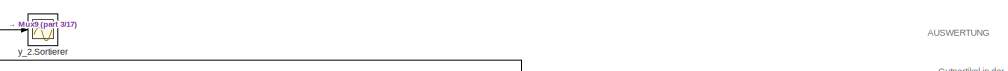
[diagram: root canvas - part 1/17, top center region]
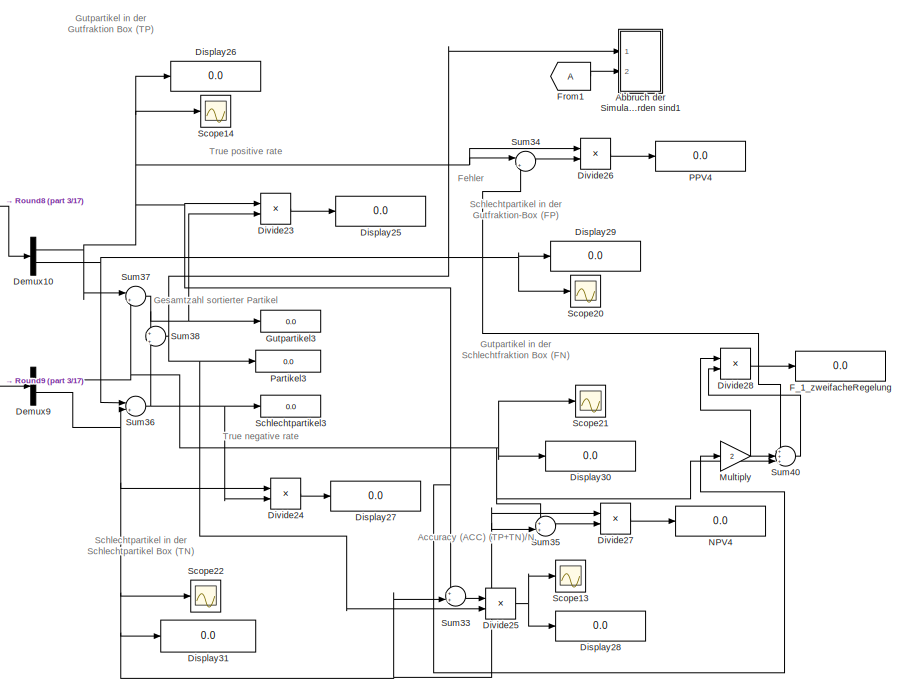
[diagram: root canvas - part 2/17, top right region]
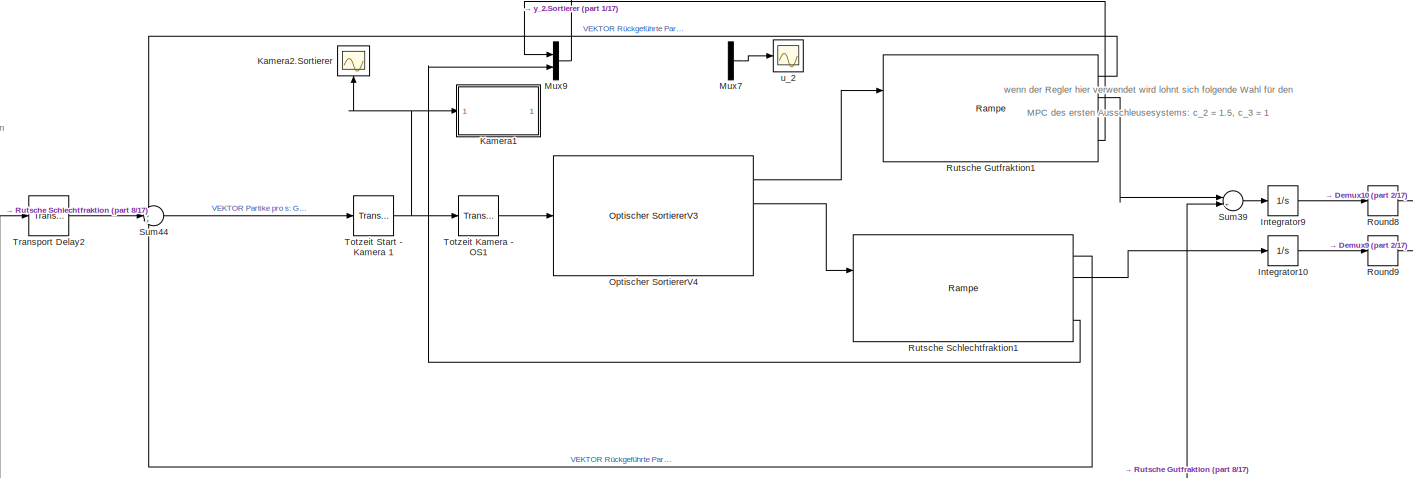
[diagram: root canvas - part 3/17, top center region]
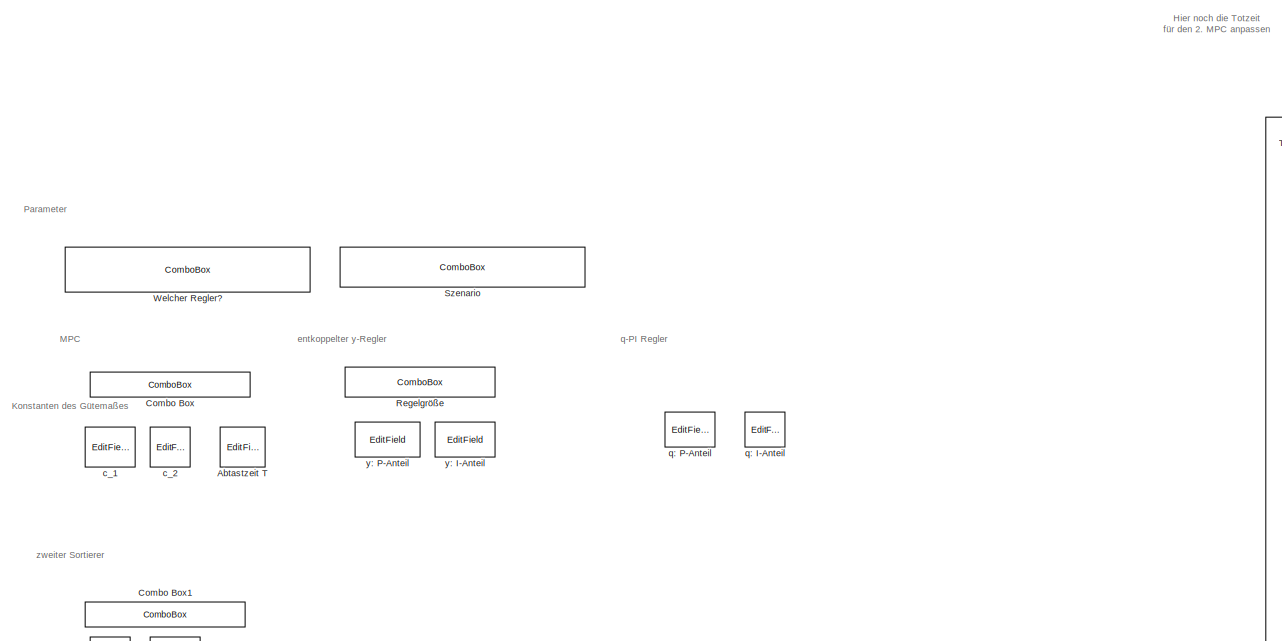
[diagram: root canvas - part 4/17, top left region]
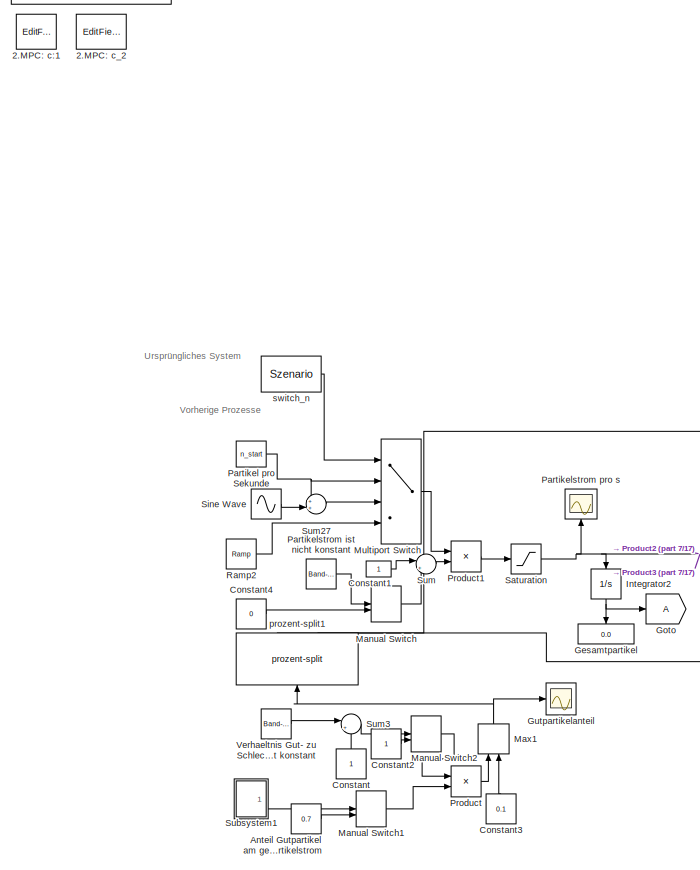
[diagram: root canvas - part 5/17, middle left region]
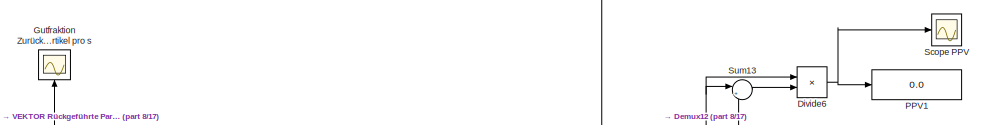
[diagram: root canvas - part 6/17, top center region]
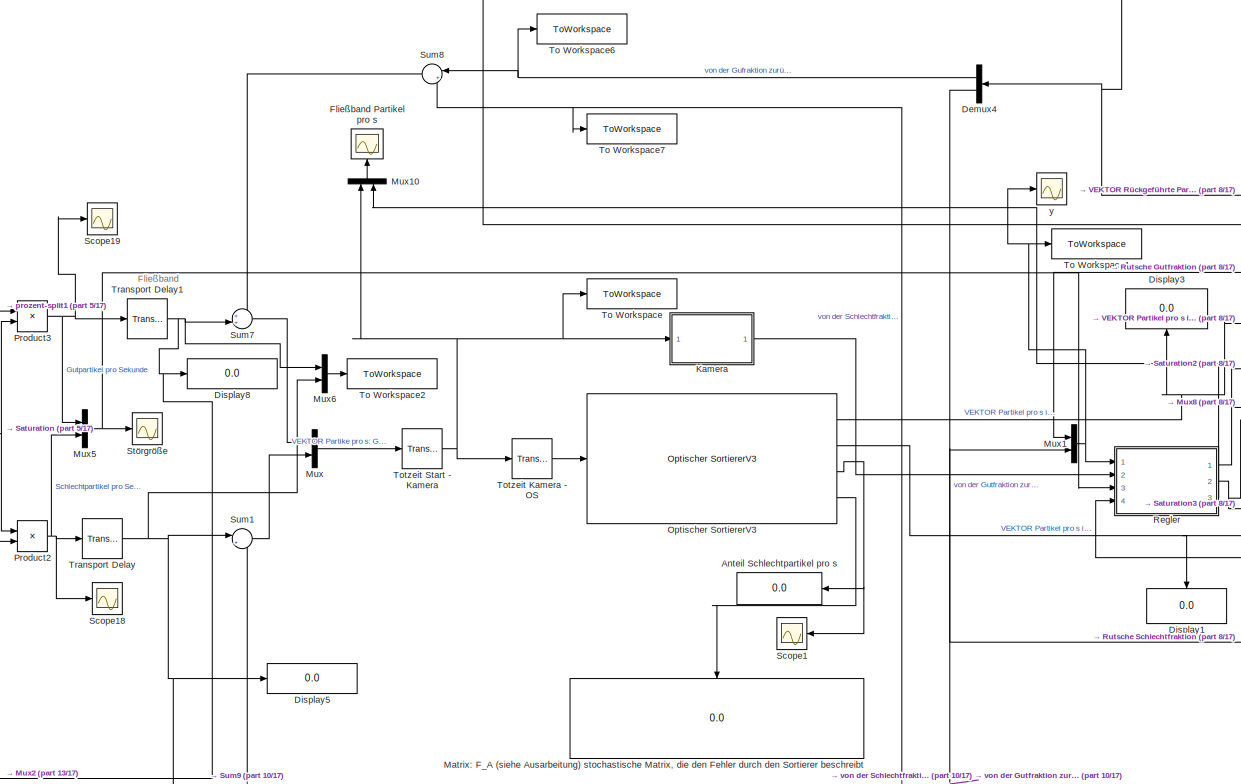
[diagram: root canvas - part 7/17, central region]
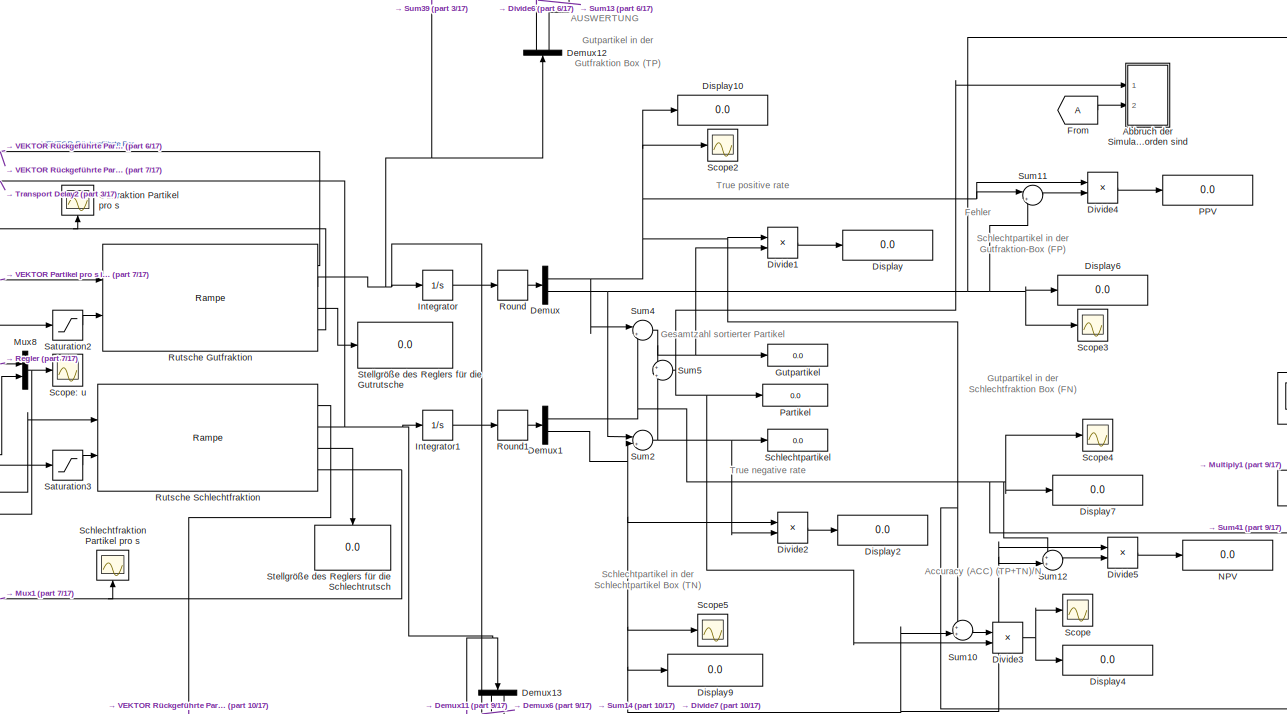
[diagram: root canvas - part 8/17, middle right region]
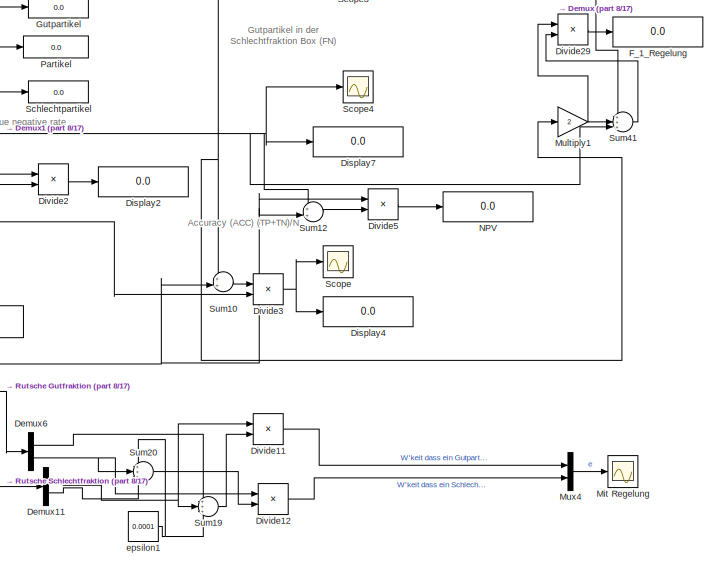
[diagram: root canvas - part 9/17, middle right region]
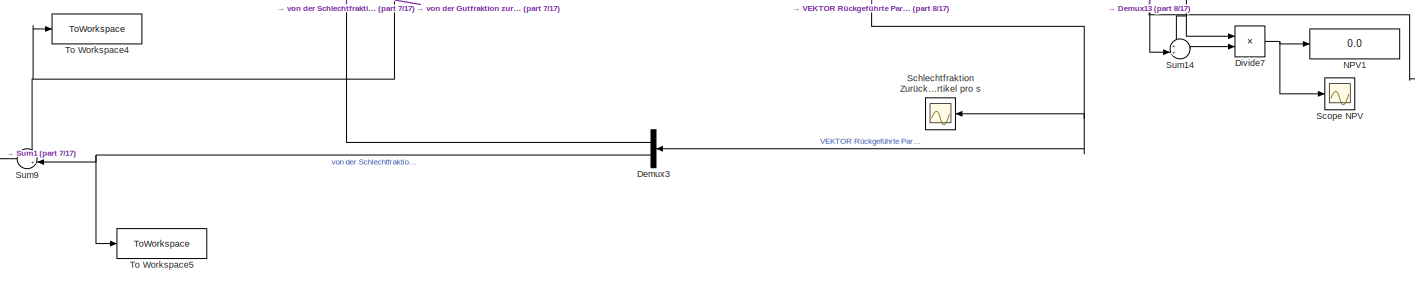
[diagram: root canvas - part 10/17, central region]
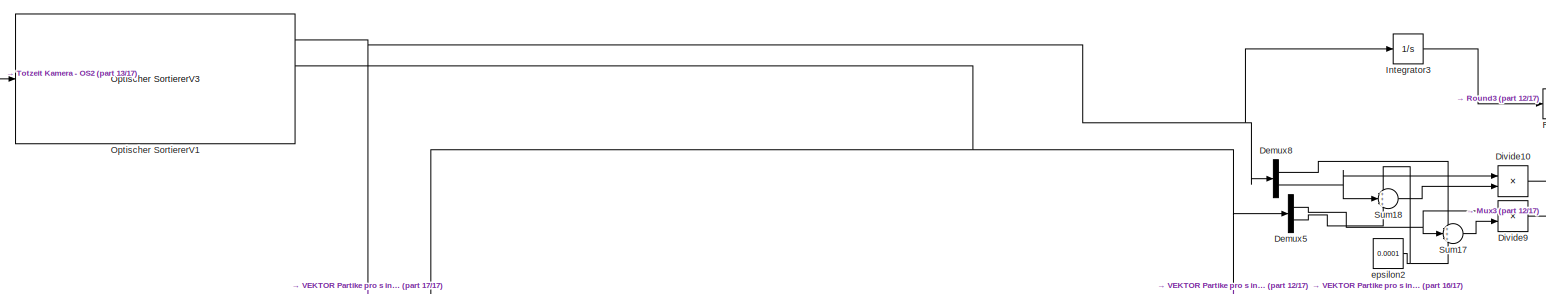
[diagram: root canvas - part 11/17, central region]
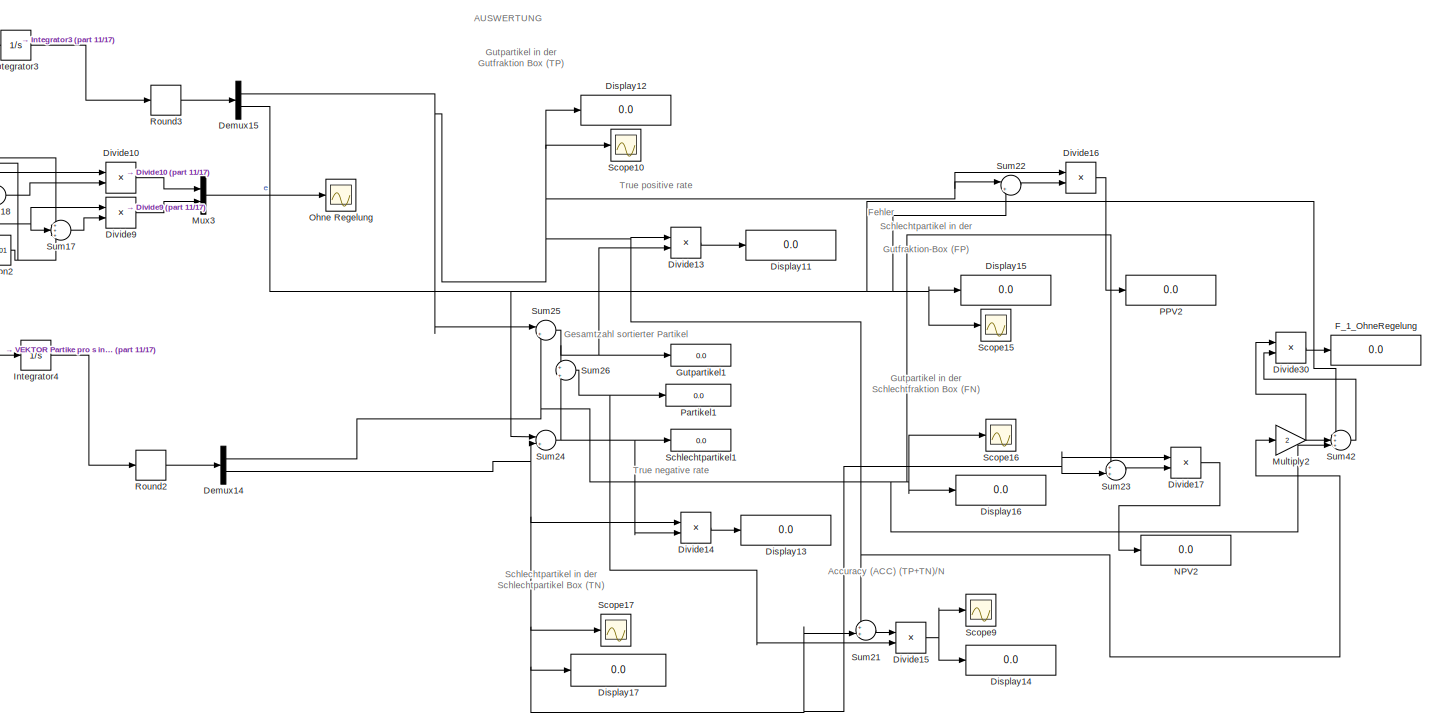
[diagram: root canvas - part 12/17, middle right region]
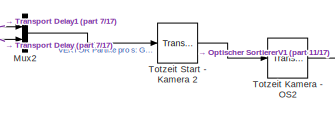
[diagram: root canvas - part 13/17, middle left region]
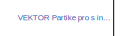
[diagram: root canvas - part 14/17, bottom center region]
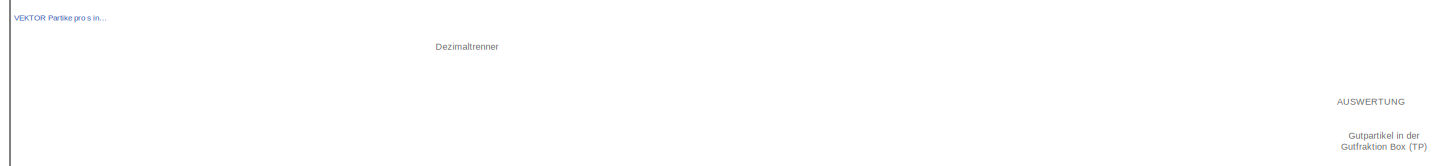
[diagram: root canvas - part 15/17, bottom center region]
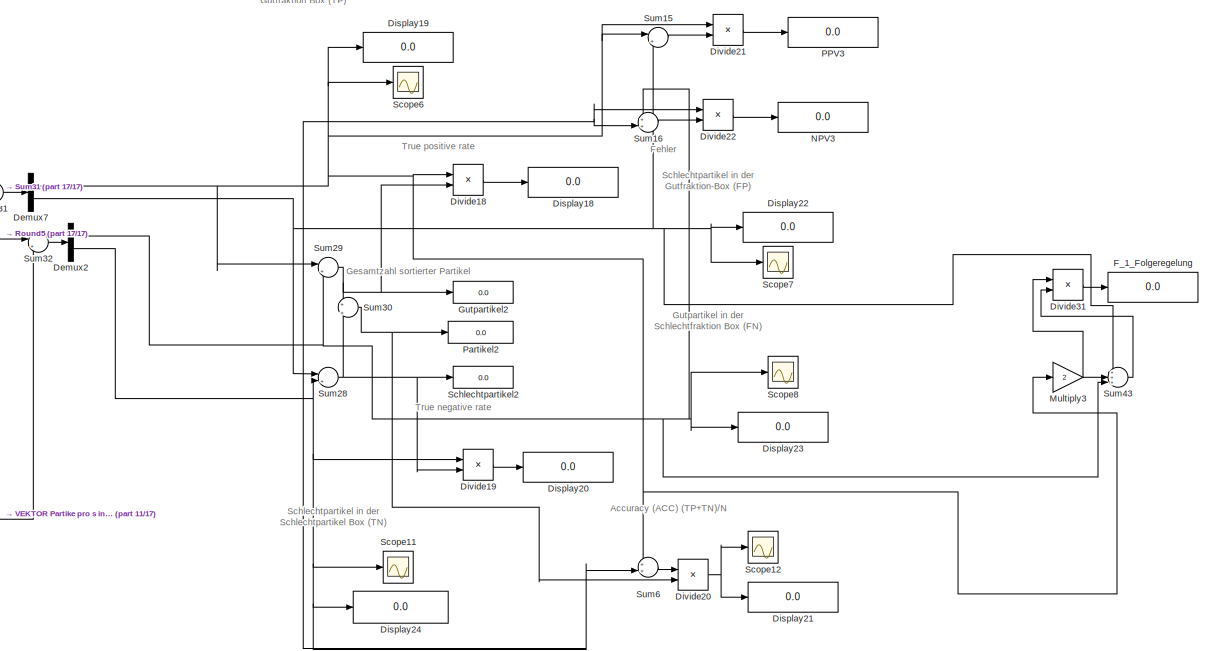
[diagram: root canvas - part 16/17, bottom right region]
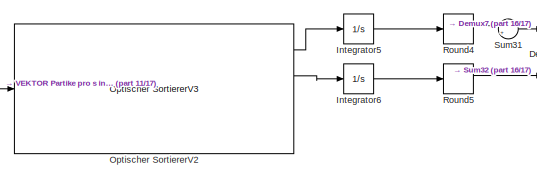
[diagram: root canvas - part 17/17, bottom center region]
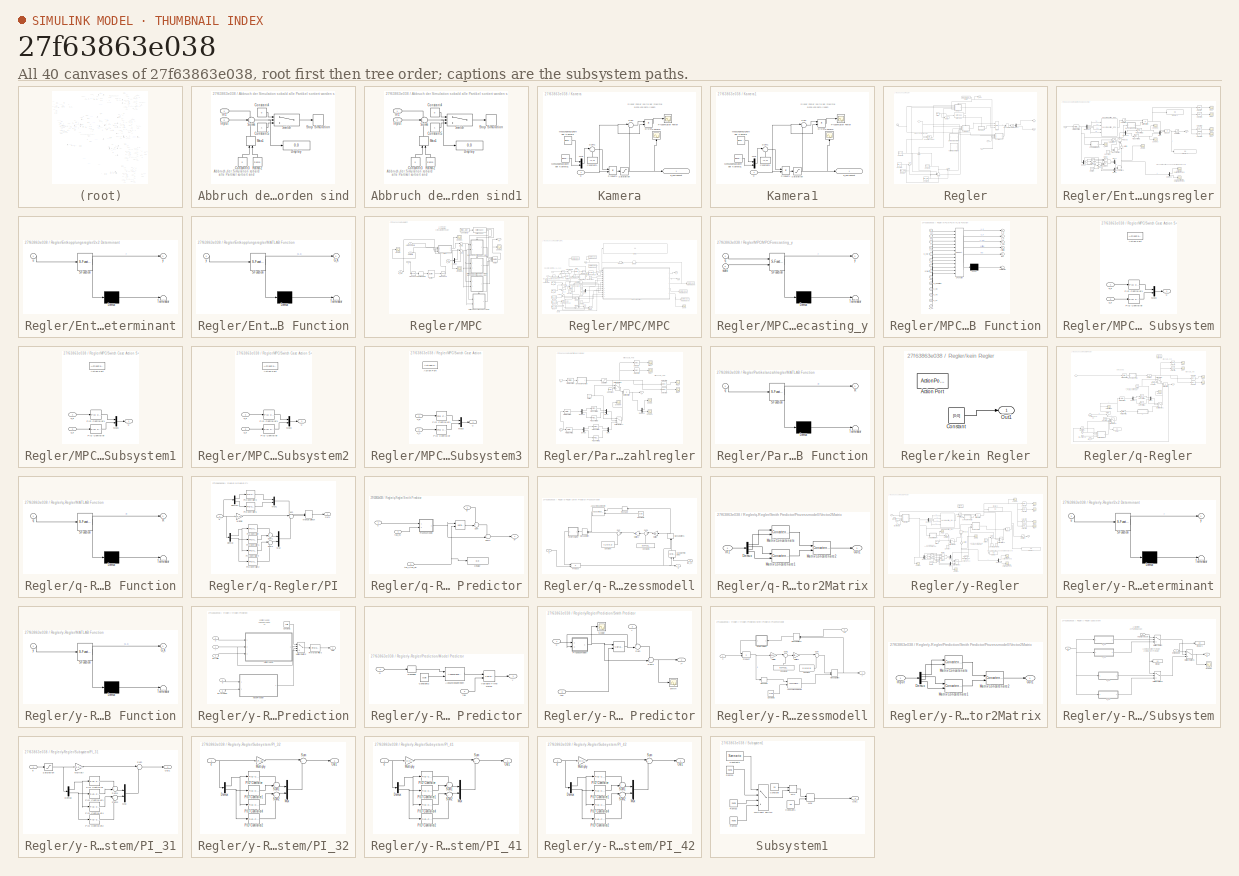
[diagram: thumbnail index - all 40 canvases of the model, root first then tree order]
MODEL slx_27f63863e038
KIND model
CONFIG AbsTol = auto
CONFIG EnableMultiTasking = off
CONFIG FixedStep = auto
CONFIG MaxStep = 1e-2
CONFIG MinStep = 1e-5
CONFIG RelTol = 1e-10
CONFIG SampleTimeConstraint = Unconstrained
CONFIG SolverName = VariableStepAuto
CONFIG StartTime = 0.0
CONFIG StopTime = 400
WORKSPACE source: mxarray member
WORKSPACE G = [-1.06447886151 -0.991850846063 0.992082227677 -0.85930382546]
WORKSPACE Szenario = 1
WORKSPACE T = 0.2
WORKSPACE W = [1.0699986278 -0.986126426767 0.980983232745 0.87168977415]
WORKSPACE a_PI_32 = 0.001
WORKSPACE a_PI_41 = 0.05
WORKSPACE a_PI_42 = 1
WORKSPACE a_q_2 = 0.006
WORKSPACE b_PI_2_32 = 0.01
WORKSPACE b_PI_32 = 0.01
WORKSPACE b_q_2 = 2
WORKSPACE c = [0.069 0.3066 0.2963 0.1489 -0.4433 -0.8801]
WORKSPACE c_inv = [-1.8485 3.806 3.6781 -0.8568]
WORKSPACE det = 0
WORKSPACE mpc_opt = 2
WORKSPACE n_n = 12
WORKSPACE n_start = 3
WORKSPACE ramp_start = 400
WORKSPACE regelgroesse = 2
WORKSPACE regler = 2
WORKSPACE regler2 = 2
WORKSPACE scale = 1
WORKSPACE smith = 2
WORKSPACE t_stop = 900
WORKSPACE tau_KO = 0.2
WORKSPACE tau_LV = 0.2
WORKSPACE tau_OL = 2
WORKSPACE tau_SK = 0.8
WORKSPACE tau_V = 1
BLOCK [EditField] 2.MPC: c:1
  Alignment = Center
  LabelPosition = Hide
  ShowInitialText = on
BLOCK [EditField] 2.MPC: c_2
  Alignment = Center
  LabelPosition = Hide
  ShowInitialText = on
BLOCK [SubSystem] Abbruch der Simulation sobald alle Partikel sortiert worden sind
  Commented = on
  Ports = [2]
  RequestExecContextInheritance = off
BLOCK [Constant] Abbruch der Simulation sobald alle Partikel sortiert worden sind/Constant3
  NameLocation = right
  Value = 0
BLOCK [Constant] Abbruch der Simulation sobald alle Partikel sortiert worden sind/Constant4
  Value = 0
BLOCK [Constant] Abbruch der Simulation sobald alle Partikel sortiert worden sind/Constant5
BLOCK [Display] Abbruch der Simulation sobald alle Partikel sortiert worden sind/Display
  Decimation = 1
  Ports = [1]
BLOCK [Inport] Abbruch der Simulation sobald alle Partikel sortiert worden sind/In1
BLOCK [Inport] Abbruch der Simulation sobald alle Partikel sortiert worden sind/Input
  Port = 2
BLOCK [MinMax] Abbruch der Simulation sobald alle Partikel sortiert worden sind/Max1
  Function = max
  Inputs = 2
  NameLocation = right
  Ports = [2, 1]
BLOCK [Reference] Abbruch der Simulation sobald alle Partikel sortiert worden sind/Ramp2  REF=simulink/Sources/Ramp
  NameLocation = right
  Ports = [0, 1]
  SourceBlock = simulink/Sources/Ramp
  SourceProductBaseCode = SL
  SourceType = Ramp
BLOCK [Stop] Abbruch der Simulation sobald alle Partikel sortiert worden sind/Stop Simulation
BLOCK [Sum] Abbruch der Simulation sobald alle Partikel sortiert worden sind/Sum6
  Inputs = -++
  Ports = [3, 1]
BLOCK [Switch] Abbruch der Simulation sobald alle Partikel sortiert worden sind/Switch
  Criteria = u2 > Threshold
  InputSameDT = off
  SaturateOnIntegerOverflow = off
  Threshold = 2
BLOCK [SubSystem] Abbruch der Simulation sobald alle Partikel sortiert worden sind1
  Commented = on
  Ports = [2]
  RequestExecContextInheritance = off
BLOCK [Constant] Abbruch der Simulation sobald alle Partikel sortiert worden sind1/Constant3
  NameLocation = right
  Value = 0
BLOCK [Constant] Abbruch der Simulation sobald alle Partikel sortiert worden sind1/Constant4
  Value = 0
BLOCK [Constant] Abbruch der Simulation sobald alle Partikel sortiert worden sind1/Constant5
BLOCK [Display] Abbruch der Simulation sobald alle Partikel sortiert worden sind1/Display
  Decimation = 1
  Ports = [1]
BLOCK [Inport] Abbruch der Simulation sobald alle Partikel sortiert worden sind1/In1
BLOCK [Inport] Abbruch der Simulation sobald alle Partikel sortiert worden sind1/Input
  Port = 2
BLOCK [MinMax] Abbruch der Simulation sobald alle Partikel sortiert worden sind1/Max1
  Function = max
  Inputs = 2
  NameLocation = right
  Ports = [2, 1]
BLOCK [Reference] Abbruch der Simulation sobald alle Partikel sortiert worden sind1/Ramp2  REF=simulink/Sources/Ramp
  NameLocation = right
  Ports = [0, 1]
  SourceBlock = simulink/Sources/Ramp
  SourceProductBaseCode = SL
  SourceType = Ramp
BLOCK [Stop] Abbruch der Simulation sobald alle Partikel sortiert worden sind1/Stop Simulation
BLOCK [Sum] Abbruch der Simulation sobald alle Partikel sortiert worden sind1/Sum6
  Inputs = -++
  Ports = [3, 1]
BLOCK [Switch] Abbruch der Simulation sobald alle Partikel sortiert worden sind1/Switch
  Criteria = u2 > Threshold
  InputSameDT = off
  SaturateOnIntegerOverflow = off
  Threshold = 2
BLOCK [EditField] Abtastzeit T
  Alignment = Center
  LabelPosition = Hide
  ShowInitialText = on
BLOCK [Constant] Anteil Gutpartikel am gesamten Partikelstrom
  Value = 0.7
BLOCK [Display] Anteil Schlechtpartikel pro s
  Decimation = 1
  NameLocation = top
  Ports = [1]
BLOCK [ComboBox] Combo Box
  LabelPosition = Hide
  SelectedLabel = y-Regler
BLOCK [ComboBox] Combo Box1
  LabelPosition = Hide
  SelectedLabel = Ohne Regelung
BLOCK [Constant] Constant
  NameLocation = right
BLOCK [Constant] Constant1
BLOCK [Constant] Constant2
BLOCK [Constant] Constant3
  NameLocation = right
  Value = 0.1
BLOCK [Constant] Constant4
  Value = 0
BLOCK [Demux] Demux
  Outputs = 2
  Ports = [1, 2]
BLOCK [Demux] Demux1
  Outputs = 2
  Ports = [1, 2]
BLOCK [Demux] Demux10
  Outputs = 2
  Ports = [1, 2]
BLOCK [Demux] Demux11
  Outputs = 2
  Ports = [1, 2]
BLOCK [Demux] Demux12
  NameLocation = right
  Outputs = 2
  Ports = [1, 2]
BLOCK [Demux] Demux13
  NameLocation = left
  Outputs = 2
  Ports = [1, 2]
BLOCK [Demux] Demux14
  Outputs = 2
  Ports = [1, 2]
BLOCK [Demux] Demux15
  Outputs = 2
  Ports = [1, 2]
BLOCK [Demux] Demux2
  Outputs = 2
  Ports = [1, 2]
BLOCK [Demux] Demux3
  NameLocation = top
  Outputs = 2
  Ports = [1, 2]
BLOCK [Demux] Demux4
  NameLocation = top
  Outputs = 2
  Ports = [1, 2]
BLOCK [Demux] Demux5
  Outputs = 2
  Ports = [1, 2]
BLOCK [Demux] Demux6
  Outputs = 2
  Ports = [1, 2]
BLOCK [Demux] Demux7
  Outputs = 2
  Ports = [1, 2]
BLOCK [Demux] Demux8
  Outputs = 2
  Ports = [1, 2]
BLOCK [Demux] Demux9
  Outputs = 2
  Ports = [1, 2]
BLOCK [Display] Display
  Decimation = 1
  Ports = [1]
BLOCK [Display] Display1
  Decimation = 1
  NameLocation = left
  Ports = [1]
BLOCK [Display] Display10
  Decimation = 1
  Ports = [1]
BLOCK [Display] Display11
  Decimation = 1
  Ports = [1]
BLOCK [Display] Display12
  Decimation = 1
  Ports = [1]
BLOCK [Display] Display13
  Decimation = 1
  Ports = [1]
BLOCK [Display] Display14
  Decimation = 1
  Ports = [1]
BLOCK [Display] Display15
  Decimation = 1
  Ports = [1]
BLOCK [Display] Display16
  Decimation = 1
  Ports = [1]
BLOCK [Display] Display17
  Decimation = 1
  Ports = [1]
BLOCK [Display] Display18
  Decimation = 1
  Ports = [1]
BLOCK [Display] Display19
  Decimation = 1
  Ports = [1]
BLOCK [Display] Display2
  Decimation = 1
  Ports = [1]
BLOCK [Display] Display20
  Decimation = 1
  Ports = [1]
BLOCK [Display] Display21
  Decimation = 1
  Ports = [1]
BLOCK [Display] Display22
  Decimation = 1
  Ports = [1]
BLOCK [Display] Display23
  Decimation = 1
  Ports = [1]
BLOCK [Display] Display24
  Decimation = 1
  Ports = [1]
BLOCK [Display] Display25
  Decimation = 1
  Ports = [1]
BLOCK [Display] Display26
  Decimation = 1
  Ports = [1]
BLOCK [Display] Display27
  Decimation = 1
  Ports = [1]
BLOCK [Display] Display28
  Decimation = 1
  Ports = [1]
BLOCK [Display] Display29
  Decimation = 1
  Ports = [1]
BLOCK [Display] Display3
  Decimation = 1
  NameLocation = right
  Ports = [1]
BLOCK [Display] Display30
  Decimation = 1
  Ports = [1]
BLOCK [Display] Display31
  Decimation = 1
  Ports = [1]
BLOCK [Display] Display4
  Decimation = 1
  Ports = [1]
BLOCK [Display] Display5
  Decimation = 1
  Ports = [1]
BLOCK [Display] Display6
  Decimation = 1
  Ports = [1]
BLOCK [Display] Display7
  Decimation = 1
  Ports = [1]
BLOCK [Display] Display8
  Decimation = 1
  Ports = [1]
BLOCK [Display] Display9
  Decimation = 1
  Ports = [1]
BLOCK [Product] Divide1
  Inputs = */
  Ports = [2, 1]
BLOCK [Product] Divide10
  Inputs = */
  Ports = [2, 1]
BLOCK [Product] Divide11
  Inputs = */
  Ports = [2, 1]
BLOCK [Product] Divide12
  Inputs = */
  Ports = [2, 1]
BLOCK [Product] Divide13
  Inputs = */
  Ports = [2, 1]
BLOCK [Product] Divide14
  Inputs = */
  Ports = [2, 1]
BLOCK [Product] Divide15
  Inputs = */
  Ports = [2, 1]
BLOCK [Product] Divide16
  Inputs = */
  Ports = [2, 1]
BLOCK [Product] Divide17
  Inputs = */
  Ports = [2, 1]
BLOCK [Product] Divide18
  Inputs = */
  Ports = [2, 1]
BLOCK [Product] Divide19
  Inputs = */
  Ports = [2, 1]
BLOCK [Product] Divide2
  Inputs = */
  Ports = [2, 1]
BLOCK [Product] Divide20
  Inputs = */
  Ports = [2, 1]
BLOCK [Product] Divide21
  Inputs = */
  Ports = [2, 1]
BLOCK [Product] Divide22
  Inputs = */
  Ports = [2, 1]
BLOCK [Product] Divide23
  Inputs = */
  Ports = [2, 1]
BLOCK [Product] Divide24
  Inputs = */
  Ports = [2, 1]
BLOCK [Product] Divide25
  Inputs = */
  Ports = [2, 1]
BLOCK [Product] Divide26
  Inputs = */
  Ports = [2, 1]
BLOCK [Product] Divide27
  Inputs = */
  Ports = [2, 1]
BLOCK [Product] Divide28
  Inputs = */
  Ports = [2, 1]
BLOCK [Product] Divide29
  Inputs = */
  Ports = [2, 1]
BLOCK [Product] Divide3
  Inputs = */
  Ports = [2, 1]
BLOCK [Product] Divide30
  Inputs = */
  Ports = [2, 1]
BLOCK [Product] Divide31
  Inputs = */
  Ports = [2, 1]
BLOCK [Product] Divide4
  Inputs = */
  Ports = [2, 1]
BLOCK [Product] Divide5
  Inputs = */
  Ports = [2, 1]
BLOCK [Product] Divide6
  Inputs = */
  Ports = [2, 1]
BLOCK [Product] Divide7
  Inputs = */
  Ports = [2, 1]
BLOCK [Product] Divide9
  Inputs = */
  Ports = [2, 1]
BLOCK [Display] F_1_Folgeregelung
  Decimation = 1
  Ports = [1]
BLOCK [Display] F_1_OhneRegelung
  Decimation = 1
  Ports = [1]
BLOCK [Display] F_1_Regelung
  Decimation = 1
  Ports = [1]
BLOCK [Display] F_1_zweifacheRegelung
  Decimation = 1
  Ports = [1]
BLOCK [Scope] Fließband Partikel pro s
  Floating = off
  NameLocation = right
  NumInputPorts = 1
  Ports = [1]
  ScopeSpecificationString = Simulink.scopes.TimeScopeBlockCfg('CurrentConfiguration', extmgr.ConfigurationSet(extmgr.Configuration('Core','General UI',true,'FigureColor',[1 1 1]),extmgr.Configuration('Core','Source UI',true),extmgr.Configuration('Sources','WiredSimulink',true,'DataLoggingVariableName','ScopeData1'),extmgr.Configuration('Visuals','Time Domain',true,'SerializedDisplays',{struct('MinYLimReal','-0.64077','MaxYLi...<+1810ch>
BLOCK [From] From
BLOCK [From] From1
BLOCK [Display] Gesamtpartikel
  Decimation = 1
  NameLocation = left
  Ports = [1]
BLOCK [Goto] Goto
BLOCK [Scope] Gutfraktion Partikel pro s
  Floating = off
  NameLocation = left
  NumInputPorts = 1
  Ports = [1]
  ScopeSpecificationString = Simulink.scopes.TimeScopeBlockCfg('CurrentConfiguration', extmgr.ConfigurationSet(extmgr.Configuration('Core','General UI',true,'FigureColor',[1 1 1]),extmgr.Configuration('Core','Source UI',true),extmgr.Configuration('Sources','WiredSimulink',true,'DataLoggingVariableName','ScopeData2'),extmgr.Configuration('Visuals','Time Domain',true,'SerializedDisplays',{struct('MinYLimReal','-0.363','MaxYLimR...<+2095ch>
BLOCK [Scope] Gutfraktion Zurückgeführte Partikel pro s
  Floating = off
  NameLocation = right
  NumInputPorts = 1
  Ports = [1]
  ScopeSpecificationString = Simulink.scopes.TimeScopeBlockCfg('CurrentConfiguration', extmgr.ConfigurationSet(extmgr.Configuration('Core','General UI',true),extmgr.Configuration('Core','Source UI',true),extmgr.Configuration('Sources','WiredSimulink',true,'DataLoggingVariableName','ScopeData7'),extmgr.Configuration('Visuals','Time Domain',true,'SerializedDisplays',{struct('MinYLimReal','-1.00000','MaxYLimReal','1.00000','YLab...<+1437ch>
BLOCK [Display] Gutpartikel
  Decimation = 1
  Ports = [1]
BLOCK [Display] Gutpartikel1
  Decimation = 1
  Ports = [1]
BLOCK [Display] Gutpartikel2
  Decimation = 1
  Ports = [1]
BLOCK [Display] Gutpartikel3
  Decimation = 1
  Ports = [1]
BLOCK [Scope] Gutpartikelanteil
  Floating = off
  NumInputPorts = 1
  Ports = [1]
  ScopeSpecificationString = Simulink.scopes.TimeScopeBlockCfg('CurrentConfiguration', extmgr.ConfigurationSet(extmgr.Configuration('Core','General UI',true),extmgr.Configuration('Core','Source UI',true),extmgr.Configuration('Sources','WiredSimulink',true,'DataLoggingVariableName','ScopeData8'),extmgr.Configuration('Visuals','Time Domain',true,'SerializedDisplays',{struct('MinYLimReal','0.51746','MaxYLimReal','1.05408','YLabe...<+1388ch>
BLOCK [Integrator] Integrator
  Ports = [1, 1]
BLOCK [Integrator] Integrator1
  Ports = [1, 1]
BLOCK [Integrator] Integrator10
  Ports = [1, 1]
BLOCK [Integrator] Integrator2
  NameLocation = left
  Ports = [1, 1]
BLOCK [Integrator] Integrator3
  Ports = [1, 1]
BLOCK [Integrator] Integrator4
  Ports = [1, 1]
BLOCK [Integrator] Integrator5
  Ports = [1, 1]
BLOCK [Integrator] Integrator6
  Ports = [1, 1]
BLOCK [Integrator] Integrator9
  Ports = [1, 1]
BLOCK [SubSystem] Kamera
  Ports = [1, 1]
  RequestExecContextInheritance = off
BLOCK [Constant] Kamera/Constant1
  NameLocation = right
  Value = [1,1]
BLOCK [Product] Kamera/Divide
  Inputs = */
  Ports = [2, 1]
BLOCK [Scope] Kamera/Kamera
  Floating = off
  NameLocation = right
  NumInputPorts = 1
  Ports = [1]
  ScopeSpecificationString = Simulink.scopes.TimeScopeBlockCfg('CurrentConfiguration', extmgr.ConfigurationSet(extmgr.Configuration('Core','General UI',true),extmgr.Configuration('Core','Source UI',true),extmgr.Configuration('Sources','WiredSimulink',true,'DataLoggingVariableName','ScopeData2'),extmgr.Configuration('Visuals','Time Domain',true,'SerializedDisplays',{struct('MinYLimReal','-0.74128','MaxYLimReal','6.67149','YLab...<+1415ch>
BLOCK [Reference] Kamera/Messungenauigkeit der Kamera  REF=simulink/Sources/Band-Limited
White Noise
  NameLocation = top
  Ports = [0, 1]
  SourceBlock = simulink/Sources/Band-Limited\nWhite Noise
  SourceProductBaseCode = SL
  SourceType = Band-Limited White Noise.
BLOCK [Reference] Kamera/Messungenauigkeit der Kamera1  REF=simulink/Sources/Band-Limited
White Noise
  NameLocation = top
  Ports = [0, 1]
  SourceBlock = simulink/Sources/Band-Limited\nWhite Noise
  SourceProductBaseCode = SL
  SourceType = Band-Limited White Noise.
BLOCK [Mux] Kamera/Mux
  DisplayOption = bar
  Inputs = 2
  Ports = [2, 1]
BLOCK [Product] Kamera/Product1
  OutMax = 1
  OutMin = 0
  Ports = [2, 1]
BLOCK [Scope] Kamera/Prozentualer Fehler
  Floating = off
  NumInputPorts = 1
  Ports = [1]
  ScopeSpecificationString = Simulink.scopes.TimeScopeBlockCfg('CurrentConfiguration', extmgr.ConfigurationSet(extmgr.Configuration('Core','General UI',true),extmgr.Configuration('Core','Source UI',true),extmgr.Configuration('Sources','WiredSimulink',true,'DataLoggingVariableName','ScopeData3'),extmgr.Configuration('Visuals','Time Domain',true,'SerializedDisplays',{struct('MinYLimReal','-0.11342','MaxYLimReal','0.12824','YLab...<+1407ch>
BLOCK [Saturate] Kamera/Saturation
  LowerLimit = 0
  UpperLimit = 100
BLOCK [Sum] Kamera/Sum
  Inputs = |+-
  Ports = [2, 1]
BLOCK [Sum] Kamera/Sum1
  Inputs = |++
  Ports = [2, 1]
BLOCK [Inport] Kamera/q
BLOCK [Outport] Kamera/q_verrauscht
BLOCK [SubSystem] Kamera1
  Ports = [1, 1]
  RequestExecContextInheritance = off
BLOCK [Constant] Kamera1/Constant1
  NameLocation = right
  Value = [1,1]
BLOCK [Product] Kamera1/Divide
  Inputs = */
  Ports = [2, 1]
BLOCK [Scope] Kamera1/Kamera
  Floating = off
  NameLocation = right
  NumInputPorts = 1
  Ports = [1]
  ScopeSpecificationString = Simulink.scopes.TimeScopeBlockCfg('CurrentConfiguration', extmgr.ConfigurationSet(extmgr.Configuration('Core','General UI',true),extmgr.Configuration('Core','Source UI',true),extmgr.Configuration('Sources','WiredSimulink',true,'DataLoggingVariableName','ScopeData2'),extmgr.Configuration('Visuals','Time Domain',true,'SerializedDisplays',{struct('MinYLimReal','-0.74128','MaxYLimReal','6.67149','YLab...<+1415ch>
BLOCK [Reference] Kamera1/Messungenauigkeit der Kamera  REF=simulink/Sources/Band-Limited
White Noise
  NameLocation = top
  Ports = [0, 1]
  SourceBlock = simulink/Sources/Band-Limited\nWhite Noise
  SourceProductBaseCode = SL
  SourceType = Band-Limited White Noise.
BLOCK [Reference] Kamera1/Messungenauigkeit der Kamera1  REF=simulink/Sources/Band-Limited
White Noise
  NameLocation = top
  Ports = [0, 1]
  SourceBlock = simulink/Sources/Band-Limited\nWhite Noise
  SourceProductBaseCode = SL
  SourceType = Band-Limited White Noise.
BLOCK [Mux] Kamera1/Mux
  DisplayOption = bar
  Inputs = 2
  Ports = [2, 1]
BLOCK [Product] Kamera1/Product1
  OutMax = 1
  OutMin = 0
  Ports = [2, 1]
BLOCK [Scope] Kamera1/Prozentualer Fehler
  Floating = off
  NumInputPorts = 1
  Ports = [1]
  ScopeSpecificationString = Simulink.scopes.TimeScopeBlockCfg('CurrentConfiguration', extmgr.ConfigurationSet(extmgr.Configuration('Core','General UI',true),extmgr.Configuration('Core','Source UI',true),extmgr.Configuration('Sources','WiredSimulink',true,'DataLoggingVariableName','ScopeData3'),extmgr.Configuration('Visuals','Time Domain',true,'SerializedDisplays',{struct('MinYLimReal','-0.11342','MaxYLimReal','0.12824','YLab...<+1407ch>
BLOCK [Saturate] Kamera1/Saturation
  LowerLimit = 0
  UpperLimit = 100
BLOCK [Sum] Kamera1/Sum
  Inputs = |+-
  Ports = [2, 1]
BLOCK [Sum] Kamera1/Sum1
  Inputs = |++
  Ports = [2, 1]
BLOCK [Inport] Kamera1/q
BLOCK [Outport] Kamera1/q_verrauscht
BLOCK [Scope] Kamera2.Sortierer
  Floating = off
  NameLocation = right
  NumInputPorts = 1
  Ports = [1]
  ScopeSpecificationString = Simulink.scopes.TimeScopeBlockCfg('CurrentConfiguration', extmgr.ConfigurationSet(extmgr.Configuration('Core','General UI',true),extmgr.Configuration('Core','Source UI',true),extmgr.Configuration('Sources','WiredSimulink',true,'DataLoggingVariableName','ScopeData1'),extmgr.Configuration('Visuals','Time Domain',true),extmgr.Configuration('Tools','Plot Navigation',true),extmgr.Configuration('Tools',...<+40ch>  <repeated x3 — deduplicated; at blocks: Kamera2.Sortierer, Scope, Scope13>
BLOCK [ManualSwitch] Manual Switch
BLOCK [ManualSwitch] Manual Switch1
BLOCK [ManualSwitch] Manual Switch2
BLOCK [Display] Matrix: F_A (siehe Ausarbeitung) stochastische Matrix, die den Fehler durch den Sortierer beschreibt
  Decimation = 1
  NameLocation = left
  Ports = [1]
BLOCK [MinMax] Max1
  Function = max
  Inputs = 2
  NameLocation = right
  Ports = [2, 1]
BLOCK [Scope] Mit Regelung
  Floating = off
  NumInputPorts = 1
  Ports = [1]
  ScopeSpecificationString = Simulink.scopes.TimeScopeBlockCfg('CurrentConfiguration', extmgr.ConfigurationSet(extmgr.Configuration('Core','General UI',true),extmgr.Configuration('Core','Source UI',true),extmgr.Configuration('Sources','WiredSimulink',true,'DataLoggingVariableName','ScopeData3'),extmgr.Configuration('Visuals','Time Domain',true,'SerializedDisplays',{struct('MinYLimReal','-0.12107','MaxYLimReal','1.08961','YLab...<+1396ch>
BLOCK [Gain] Multiply
  Gain = 2
BLOCK [Gain] Multiply1
  Gain = 2
BLOCK [Gain] Multiply2
  Gain = 2
BLOCK [Gain] Multiply3
  Gain = 2
BLOCK [MultiPortSwitch] Multiport Switch
  DiagnosticForDefault = Warning
  InputSameDT = off
  Ports = [4, 1]
  SaturateOnIntegerOverflow = off
BLOCK [Mux] Mux
  DisplayOption = bar
  Inputs = 2
  Ports = [2, 1]
BLOCK [Mux] Mux1
  DisplayOption = bar
  Inputs = 2
  Ports = [2, 1]
BLOCK [Mux] Mux10
  DisplayOption = bar
  Inputs = 2
  NameLocation = right
  Ports = [2, 1]
BLOCK [Mux] Mux2
  DisplayOption = bar
  Inputs = 2
  Ports = [2, 1]
BLOCK [Mux] Mux3
  DisplayOption = bar
  Inputs = 2
  Ports = [2, 1]
BLOCK [Mux] Mux4
  DisplayOption = bar
  Inputs = 2
  Ports = [2, 1]
BLOCK [Mux] Mux5
  DisplayOption = bar
  Inputs = 2
  Ports = [2, 1]
BLOCK [Mux] Mux6
  DisplayOption = bar
  Inputs = 2
  Ports = [2, 1]
BLOCK [Mux] Mux7
  DisplayOption = bar
  Inputs = 2
  Ports = [2, 1]
BLOCK [Mux] Mux8
  DisplayOption = bar
  Inputs = 2
  Ports = [2, 1]
BLOCK [Mux] Mux9
  DisplayOption = bar
  Inputs = 2
  Ports = [2, 1]
BLOCK [Display] NPV
  Decimation = 1
  Ports = [1]
BLOCK [Display] NPV1
  Decimation = 1
  Ports = [1]
BLOCK [Display] NPV2
  Decimation = 1
  Ports = [1]
BLOCK [Display] NPV3
  Decimation = 1
  Ports = [1]
BLOCK [Display] NPV4
  Decimation = 1
  Ports = [1]
BLOCK [Scope] Ohne Regelung
  Floating = off
  NumInputPorts = 1
  Ports = [1]
  ScopeSpecificationString = Simulink.scopes.TimeScopeBlockCfg('CurrentConfiguration', extmgr.ConfigurationSet(extmgr.Configuration('Core','General UI',true),extmgr.Configuration('Core','Source UI',true),extmgr.Configuration('Sources','WiredSimulink',true,'DataLoggingVariableName','ScopeData2'),extmgr.Configuration('Visuals','Time Domain',true,'SerializedDisplays',{struct('MinYLimReal','-0.03121','MaxYLimReal','0.28086','YLab...<+1398ch>
BLOCK [Reference] Optischer SortiererV1  REF=library_schuettgut/Optischer SortiererV3  (lib defined in slx_c5b4a0b507ec)
  Ports = [1, 4]
  SourceBlock = library_schuettgut/Optischer SortiererV3
  SourceType = SubSystem
BLOCK [Reference] Optischer SortiererV2  REF=library_schuettgut/Optischer SortiererV3  (lib defined in slx_c5b4a0b507ec)
  Ports = [1, 4]
  SourceBlock = library_schuettgut/Optischer SortiererV3
  SourceType = SubSystem
BLOCK [Reference] Optischer SortiererV3  REF=library_schuettgut/Optischer SortiererV3  (lib defined in slx_c5b4a0b507ec)
  Ports = [1, 4]
  SourceBlock = library_schuettgut/Optischer SortiererV3
  SourceType = SubSystem
BLOCK [Reference] Optischer SortiererV4  REF=library_schuettgut/Optischer SortiererV3  (lib defined in slx_c5b4a0b507ec)
  Ports = [1, 4]
  SourceBlock = library_schuettgut/Optischer SortiererV3
  SourceType = SubSystem
BLOCK [Display] PPV
  Decimation = 1
  Ports = [1]
BLOCK [Display] PPV1
  Decimation = 1
  Ports = [1]
BLOCK [Display] PPV2
  Decimation = 1
  Ports = [1]
BLOCK [Display] PPV3
  Decimation = 1
  Ports = [1]
BLOCK [Display] PPV4
  Decimation = 1
  Ports = [1]
BLOCK [Display] Partikel
  Decimation = 1
  Ports = [1]
BLOCK [Constant] Partikel pro Sekunde
  NameLocation = top
  Value = n_start
BLOCK [Display] Partikel1
  Decimation = 1
  Ports = [1]
BLOCK [Display] Partikel2
  Decimation = 1
  Ports = [1]
BLOCK [Display] Partikel3
  Decimation = 1
  Ports = [1]
BLOCK [Reference] Partikelstrom ist nicht konstant  REF=simulink/Sources/Band-Limited
White Noise
  Ports = [0, 1]
  SourceBlock = simulink/Sources/Band-Limited\nWhite Noise
  SourceProductBaseCode = SL
  SourceType = Band-Limited White Noise.
BLOCK [Scope] Partikelstrom pro s
  Floating = off
  NameLocation = right
  NumInputPorts = 1
  Ports = [1]
  ScopeSpecificationString = Simulink.scopes.TimeScopeBlockCfg('CurrentConfiguration', extmgr.ConfigurationSet(extmgr.Configuration('Core','General UI',true),extmgr.Configuration('Core','Source UI',true),extmgr.Configuration('Sources','WiredSimulink',true,'DataLoggingVariableName','ScopeData1'),extmgr.Configuration('Visuals','Time Domain',true,'SerializedDisplays',{struct('MinYLimReal','3.19303','MaxYLimReal','16.31189','YLab...<+1398ch>
BLOCK [Product] Product
  Ports = [2, 1]
BLOCK [Product] Product1
  Ports = [2, 1]
BLOCK [Product] Product2
  Ports = [2, 1]
BLOCK [Product] Product3
  Ports = [2, 1]
BLOCK [Reference] Ramp2  REF=simulink/Sources/Ramp
  Ports = [0, 1]
  SourceBlock = simulink/Sources/Ramp
  SourceProductBaseCode = SL
  SourceType = Ramp
BLOCK [ComboBox] Regelgröße
  LabelPosition = Hide
  SelectedLabel = Partikelanzahl
BLOCK [SubSystem] Regler
  Ports = [4, 3]
  RequestExecContextInheritance = off
BLOCK [Constant] Regler/Constant
  Value = tau_SK
BLOCK [Constant] Regler/Constant2
  Value = tau_KO
BLOCK [Constant] Regler/Constant3
  Value = tau_OL
BLOCK [Constant] Regler/Constant4
  Value = tau_V
BLOCK [Constant] Regler/Constant5
  Value = tau_LV
BLOCK [Demux] Regler/Demux2
  Outputs = 2
  Ports = [1, 2]
BLOCK [Display] Regler/Display
  Decimation = 1
  Ports = [1]
BLOCK [SubSystem] Regler/Entkopplungsregler
  Commented = on
  Ports = [1, 1]
  RequestExecContextInheritance = off
BLOCK [SubSystem] Regler/Entkopplungsregler/2x2 Determinant
  ErrorFcn = Stateflow.Translate.translate
  PermitHierarchicalResolution = ExplicitOnly
  Ports = [1, 1]
  RequestExecContextInheritance = off
  SFBlockType = MATLAB Function
  TreatAsAtomicUnit = on
BLOCK [Demux] Regler/Entkopplungsregler/2x2 Determinant/ Demux 
  Outputs = 1
  Ports = [1, 1]
BLOCK [S-Function] Regler/Entkopplungsregler/2x2 Determinant/ SFunction 
  EnableBusSupport = on
  FunctionName = sf_sfun
  PortCounts = [1 2]
  Ports = [1, 2]
  SFcnIsStateOwnerBlock = off
  SFunctionDeploymentMode = off
  Tag = Stateflow S-Function 2
BLOCK [Terminator] Regler/Entkopplungsregler/2x2 Determinant/ Terminator 
BLOCK [Inport] Regler/Entkopplungsregler/2x2 Determinant/u
BLOCK [Outport] Regler/Entkopplungsregler/2x2 Determinant/y
BLOCK [Constant] Regler/Entkopplungsregler/Constant
BLOCK [Demux] Regler/Entkopplungsregler/Demux
  Ports = [1, 4]
BLOCK [Demux] Regler/Entkopplungsregler/Demux1
  Ports = [1, 4]
BLOCK [Demux] Regler/Entkopplungsregler/Demux2
  Outputs = 2
  Ports = [1, 2]
BLOCK [Demux] Regler/Entkopplungsregler/Demux3
  Outputs = 2
  Ports = [1, 2]
BLOCK [Display] Regler/Entkopplungsregler/Display1
  Decimation = 1
  Ports = [1]
BLOCK [Display] Regler/Entkopplungsregler/Display2
  Decimation = 1
  Ports = [1]
BLOCK [Product] Regler/Entkopplungsregler/Divide
  Inputs = */
  Ports = [2, 1]
BLOCK [Product] Regler/Entkopplungsregler/Divide1
  Inputs = */
  Ports = [2, 1]
BLOCK [Reference] Regler/Entkopplungsregler/First-Order Filter3  REF=powerlib_meascontrol/Filters/First-Order
Filter
  Ports = [1, 1]
  SourceBlock = powerlib_meascontrol/Filters/First-Order\nFilter
  SourceProductBaseCode = PS
  SourceType = First-Order Filter
BLOCK [Scope] Regler/Entkopplungsregler/Gutfraktion Sollabweichung
  Floating = off
  NumInputPorts = 1
  Ports = [1]
  ScopeSpecificationString = Simulink.scopes.TimeScopeBlockCfg('CurrentConfiguration', extmgr.ConfigurationSet(extmgr.Configuration('Core','General UI',true),extmgr.Configuration('Core','Source UI',true),extmgr.Configuration('Sources','WiredSimulink',true,'DataLoggingVariableName','ScopeData3'),extmgr.Configuration('Visuals','Time Domain',true,'SerializedDisplays',{struct('MinYLimReal','-0.11255','MaxYLimReal','1.01296','YLab...<+1443ch>
BLOCK [SubSystem] Regler/Entkopplungsregler/MATLAB Function
  ErrorFcn = Stateflow.Translate.translate
  PermitHierarchicalResolution = ExplicitOnly
  Ports = [1, 1]
  RequestExecContextInheritance = off
  SFBlockType = MATLAB Function
  TreatAsAtomicUnit = on
BLOCK [Demux] Regler/Entkopplungsregler/MATLAB Function/ Demux 
  Outputs = 1
  Ports = [1, 1]
BLOCK [S-Function] Regler/Entkopplungsregler/MATLAB Function/ SFunction 
  EnableBusSupport = on
  FunctionName = sf_sfun
  PortCounts = [1 2]
  Ports = [1, 2]
  SFcnIsStateOwnerBlock = off
  SFunctionDeploymentMode = off
  Tag = Stateflow S-Function 1
BLOCK [Terminator] Regler/Entkopplungsregler/MATLAB Function/ Terminator 
BLOCK [Outport] Regler/Entkopplungsregler/MATLAB Function/G_K
BLOCK [Inport] Regler/Entkopplungsregler/MATLAB Function/y
BLOCK [ManualSwitch] Regler/Entkopplungsregler/Manual Switch
  CurrentSetting = 0
BLOCK [ManualSwitch] Regler/Entkopplungsregler/Manual Switch1
BLOCK [Product] Regler/Entkopplungsregler/Matrix Multiply
  Multiplication = Matrix(*)
  Ports = [2, 1]
BLOCK [Gain] Regler/Entkopplungsregler/Multiply
  Gain = -1
  NameLocation = right
BLOCK [Mux] Regler/Entkopplungsregler/Mux
  DisplayOption = bar
  Inputs = 2
  Ports = [2, 1]
BLOCK [Mux] Regler/Entkopplungsregler/Mux1
  DisplayOption = bar
  Inputs = 2
  Ports = [2, 1]
BLOCK [Mux] Regler/Entkopplungsregler/Mux2
  DisplayOption = bar
  Inputs = 2
  Ports = [2, 1]
BLOCK [Reference] Regler/Entkopplungsregler/PID Controller1  REF=simulink/Continuous/PID Controller
  Ports = [1, 1]
  SourceBlock = simulink/Continuous/PID Controller
  SourceProductBaseCode = SL
  SourceType = PID 1dof
BLOCK [Reference] Regler/Entkopplungsregler/PID Controller2  REF=simulink/Continuous/PID Controller
  Ports = [1, 1]
  SourceBlock = simulink/Continuous/PID Controller
  SourceProductBaseCode = SL
  SourceType = PID 1dof
BLOCK [Product] Regler/Entkopplungsregler/Product
  Multiplication = Matrix(*)
  Ports = [2, 1]
BLOCK [Product] Regler/Entkopplungsregler/Product1
  NameLocation = right
  Ports = [2, 1]
BLOCK [Scope] Regler/Entkopplungsregler/R(1,1)
  Floating = off
  NumInputPorts = 1
  Ports = [1]
  ScopeSpecificationString = Simulink.scopes.TimeScopeBlockCfg('CurrentConfiguration', extmgr.ConfigurationSet(extmgr.Configuration('Core','General UI',true),extmgr.Configuration('Core','Source UI',true),extmgr.Configuration('Sources','WiredSimulink',true,'DataLoggingVariableName','ScopeData4'),extmgr.Configuration('Visuals','Time Domain',true,'SerializedDisplays',{struct('MinYLimReal','-47.47601','MaxYLimReal','35.1633','YLa...<+1417ch>
BLOCK [Scope] Regler/Entkopplungsregler/R(1,2)
  Floating = off
  NumInputPorts = 1
  Ports = [1]
  ScopeSpecificationString = Simulink.scopes.TimeScopeBlockCfg('CurrentConfiguration', extmgr.ConfigurationSet(extmgr.Configuration('Core','General UI',true),extmgr.Configuration('Core','Source UI',true),extmgr.Configuration('Sources','WiredSimulink',true,'DataLoggingVariableName','ScopeData5'),extmgr.Configuration('Visuals','Time Domain',true,'SerializedDisplays',{struct('MinYLimReal','-37.5','MaxYLimReal','337.5','YLabelRea...<+1381ch>
BLOCK [Scope] Regler/Entkopplungsregler/R(2,1)
  Floating = off
  NumInputPorts = 1
  Ports = [1]
  ScopeSpecificationString = Simulink.scopes.TimeScopeBlockCfg('CurrentConfiguration', extmgr.ConfigurationSet(extmgr.Configuration('Core','General UI',true),extmgr.Configuration('Core','Source UI',true),extmgr.Configuration('Sources','WiredSimulink',true,'DataLoggingVariableName','ScopeData6'),extmgr.Configuration('Visuals','Time Domain',true,'SerializedDisplays',{struct('MinYLimReal','-37.5','MaxYLimReal','337.5','YLabelRea...<+1381ch>
BLOCK [Scope] Regler/Entkopplungsregler/R(2,2)
  Floating = off
  NumInputPorts = 1
  Ports = [1]
  ScopeSpecificationString = Simulink.scopes.TimeScopeBlockCfg('CurrentConfiguration', extmgr.ConfigurationSet(extmgr.Configuration('Core','General UI',true),extmgr.Configuration('Core','Source UI',true),extmgr.Configuration('Sources','WiredSimulink',true,'DataLoggingVariableName','ScopeData7'),extmgr.Configuration('Visuals','Time Domain',true,'SerializedDisplays',{struct('MinYLimReal','-337.5','MaxYLimReal','37.5','YLabelRea...<+1383ch>
BLOCK [Saturate] Regler/Entkopplungsregler/Saturation
  LowerLimit = 0
  UpperLimit = 1
BLOCK [Saturate] Regler/Entkopplungsregler/Saturation1
  LowerLimit = -300
  UpperLimit = 300
BLOCK [Saturate] Regler/Entkopplungsregler/Saturation2
  LowerLimit = -100
  UpperLimit = 100
BLOCK [Scope] Regler/Entkopplungsregler/Schlechtfraktion Sollabweichung
  Floating = off
  NumInputPorts = 1
  Ports = [1]
  ScopeSpecificationString = Simulink.scopes.TimeScopeBlockCfg('CurrentConfiguration', extmgr.ConfigurationSet(extmgr.Configuration('Core','General UI',true),extmgr.Configuration('Core','Source UI',true),extmgr.Configuration('Sources','WiredSimulink',true,'DataLoggingVariableName','ScopeData4'),extmgr.Configuration('Visuals','Time Domain',true,'SerializedDisplays',{struct('MinYLimReal','-0.21229','MaxYLimReal','1.91057','YLab...<+1445ch>
BLOCK [Scope] Regler/Entkopplungsregler/Scope
  Floating = off
  NumInputPorts = 1
  Ports = [1]
  ScopeSpecificationString = Simulink.scopes.TimeScopeBlockCfg('CurrentConfiguration', extmgr.ConfigurationSet(extmgr.Configuration('Core','General UI',true),extmgr.Configuration('Core','Source UI',true),extmgr.Configuration('Sources','WiredSimulink',true,'DataLoggingVariableName','ScopeData1'),extmgr.Configuration('Visuals','Time Domain',true,'SerializedDisplays',{struct('MinYLimReal','-0.0338','MaxYLimReal','0.30416','YLabe...<+1443ch>
BLOCK [Scope] Regler/Entkopplungsregler/Scope2
  Floating = off
  NumInputPorts = 1
  Ports = [1]
  ScopeSpecificationString = Simulink.scopes.TimeScopeBlockCfg('CurrentConfiguration', extmgr.ConfigurationSet(extmgr.Configuration('Core','General UI',true),extmgr.Configuration('Core','Source UI',true),extmgr.Configuration('Sources','WiredSimulink',true,'DataLoggingVariableName','ScopeData2'),extmgr.Configuration('Visuals','Time Domain',true,'SerializedDisplays',{struct('MinYLimReal','-0.22252','MaxYLimReal','0.02472','YLab...<+1401ch>
BLOCK [Scope] Regler/Entkopplungsregler/Scope3
  Floating = off
  NumInputPorts = 1
  Ports = [1]
  ScopeSpecificationString = Simulink.scopes.TimeScopeBlockCfg('CurrentConfiguration', extmgr.ConfigurationSet(extmgr.Configuration('Core','General UI',true),extmgr.Configuration('Core','Source UI',true),extmgr.Configuration('Sources','WiredSimulink',true,'DataLoggingVariableName','ScopeData3'),extmgr.Configuration('Visuals','Time Domain',true,'SerializedDisplays',{struct('MinYLimReal','-0.50147','MaxYLimReal','14.04849','YLa...<+1428ch>
BLOCK [Selector] Regler/Entkopplungsregler/Selector
  IndexOptions = Index vector (dialog),Index vector (dialog)
  Indices = 1,1
  InputPortWidth = 3
  NumberOfDimensions = 2
  OutputSizes = 1,1
  Ports = [1, 1]
BLOCK [Selector] Regler/Entkopplungsregler/Selector1
  IndexOptions = Index vector (dialog),Index vector (dialog)
  Indices = 1,2
  InputPortWidth = 3
  NumberOfDimensions = 2
  OutputSizes = 1,1
  Ports = [1, 1]
BLOCK [Selector] Regler/Entkopplungsregler/Selector2
  IndexOptions = Index vector (dialog),Index vector (dialog)
  Indices = 2,1
  InputPortWidth = 3
  NumberOfDimensions = 2
  OutputSizes = 1,1
  Ports = [1, 1]
BLOCK [Selector] Regler/Entkopplungsregler/Selector3
  IndexOptions = Index vector (dialog),Index vector (dialog)
  Indices = 2,2
  InputPortWidth = 3
  NumberOfDimensions = 2
  OutputSizes = 1,1
  Ports = [1, 1]
BLOCK [Sum] Regler/Entkopplungsregler/Sum
  Inputs = +++
  Ports = [3, 1]
BLOCK [Sum] Regler/Entkopplungsregler/Sum1
  Inputs = +++
  Ports = [3, 1]
BLOCK [Reference] Regler/Entkopplungsregler/decomposition_RFV  REF=library_schuettgut/decomposition_RFV  (lib defined in slx_c5b4a0b507ec)
  Ports = [4, 1]
  SourceBlock = library_schuettgut/decomposition_RFV
  SourceType = SubSystem
BLOCK [Constant] Regler/Entkopplungsregler/epsilon
  Value = 0.0001
BLOCK [Outport] Regler/Entkopplungsregler/u
BLOCK [Inport] Regler/Entkopplungsregler/y
BLOCK [Scope] Regler/Entkopplungsregler/y_det
  Floating = off
  NumInputPorts = 1
  Ports = [1]
  ScopeSpecificationString = Simulink.scopes.TimeScopeBlockCfg('CurrentConfiguration', extmgr.ConfigurationSet(extmgr.Configuration('Core','General UI',true),extmgr.Configuration('Core','Source UI',true),extmgr.Configuration('Sources','WiredSimulink',true,'DataLoggingVariableName','ScopeData1'),extmgr.Configuration('Visuals','Time Domain',true,'SerializedDisplays',{struct('MinYLimReal','-0.12984','MaxYLimReal','1.16857','YLab...<+1401ch>
BLOCK [SubSystem] Regler/MPC
  Ports = [5, 1]
  RequestExecContextInheritance = off
  TreatAsAtomicUnit = on
BLOCK [Buffer] Regler/MPC/Buffer
  N = n_n
  OutputFrames = off
  V = n_n-1
BLOCK [Constant] Regler/MPC/Constant2
  Value = mpc_opt
BLOCK [Demux] Regler/MPC/Demux
  Outputs = 2
  Ports = [1, 2]
BLOCK [Inport] Regler/MPC/Kamera
  Port = 2
BLOCK [Inport] Regler/MPC/Linienkamera
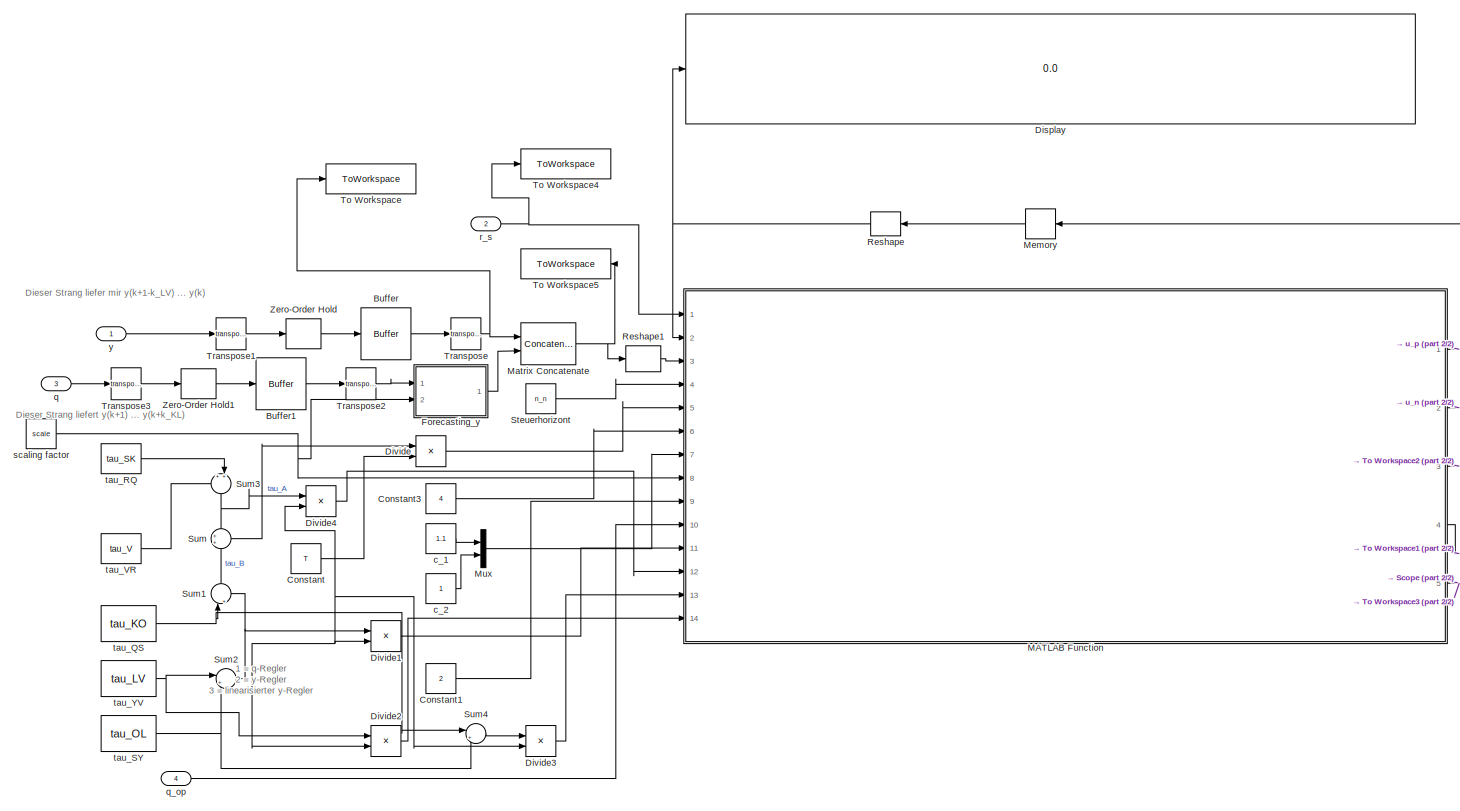
[diagram: Regler/MPC/MPC - part 1/2, most of the canvas]
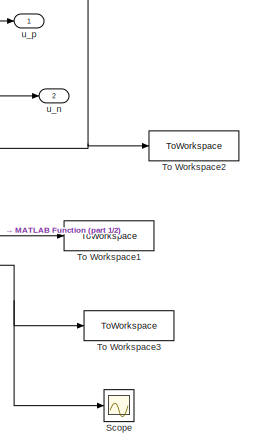
[diagram: Regler/MPC/MPC - part 2/2, bottom right region]
BLOCK [SubSystem] Regler/MPC/MPC
  AncestorBlock = library_schuettgut/MPC
  Ports = [4, 2]
  RequestExecContextInheritance = off
BLOCK [Buffer] Regler/MPC/MPC/Buffer
  N = tau_LV/T
  OutputFrames = off
  V = tau_LV/T-1
BLOCK [Buffer] Regler/MPC/MPC/Buffer1
  N = (tau_KO + tau_OL)/T
  OutputFrames = off
  V = (tau_KO + tau_OL)/T - 1
BLOCK [Constant] Regler/MPC/MPC/Constant
  Value = T
BLOCK [Constant] Regler/MPC/MPC/Constant1
  Value = 2
BLOCK [Constant] Regler/MPC/MPC/Constant3
  Value = 4
BLOCK [Display] Regler/MPC/MPC/Display
  Decimation = 1
  Ports = [1]
BLOCK [Product] Regler/MPC/MPC/Divide
  Inputs = */
  Ports = [2, 1]
BLOCK [Product] Regler/MPC/MPC/Divide1
  Inputs = */
  Ports = [2, 1]
BLOCK [Product] Regler/MPC/MPC/Divide2
  Inputs = */
  Ports = [2, 1]
BLOCK [Product] Regler/MPC/MPC/Divide3
  Inputs = */
  Ports = [2, 1]
BLOCK [Product] Regler/MPC/MPC/Divide4
  Inputs = */
  Ports = [2, 1]
BLOCK [SubSystem] Regler/MPC/MPC/Forecasting_y
  ErrorFcn = Stateflow.Translate.translate
  PermitHierarchicalResolution = ExplicitOnly
  Ports = [2, 1]
  RequestExecContextInheritance = off
  SFBlockType = MATLAB Function
  TreatAsAtomicUnit = on
BLOCK [Demux] Regler/MPC/MPC/Forecasting_y/ Demux 
  Outputs = 1
  Ports = [1, 1]
BLOCK [S-Function] Regler/MPC/MPC/Forecasting_y/ SFunction 
  EnableBusSupport = on
  FunctionName = sf_sfun
  PortCounts = [2 2]
  Ports = [2, 2]
  SFcnIsStateOwnerBlock = off
  SFunctionDeploymentMode = off
  Tag = Stateflow S-Function 7
BLOCK [Terminator] Regler/MPC/MPC/Forecasting_y/ Terminator 
BLOCK [Inport] Regler/MPC/MPC/Forecasting_y/q
BLOCK [Inport] Regler/MPC/MPC/Forecasting_y/scale
  Port = 2
BLOCK [Outport] Regler/MPC/MPC/Forecasting_y/y
BLOCK [SubSystem] Regler/MPC/MPC/MATLAB Function
  ErrorFcn = Stateflow.Translate.translate
  MinAlgLoopOccurrences = on
  PermitHierarchicalResolution = ExplicitOnly
  Ports = [14, 5]
  RequestExecContextInheritance = off
  SFBlockType = MATLAB Function
  SystemSampleTime = T
  TreatAsAtomicUnit = on
BLOCK [Demux] Regler/MPC/MPC/MATLAB Function/ Demux 
  Outputs = 1
  Ports = [1, 1]
BLOCK [S-Function] Regler/MPC/MPC/MATLAB Function/ SFunction 
  EnableBusSupport = on
  FunctionName = sf_sfun
  PortCounts = [14 6]
  Ports = [14, 6]
  SFcnIsStateOwnerBlock = off
  SFunctionDeploymentMode = off
  Tag = Stateflow S-Function 6
BLOCK [Terminator] Regler/MPC/MPC/MATLAB Function/ Terminator 
BLOCK [Inport] Regler/MPC/MPC/MATLAB Function/c
  Port = 7
BLOCK [Outport] Regler/MPC/MPC/MATLAB Function/exitflag
  Port = 4
BLOCK [Outport] Regler/MPC/MPC/MATLAB Function/fval
  Port = 5
BLOCK [Inport] Regler/MPC/MPC/MATLAB Function/k_KL
  Port = 13
BLOCK [Inport] Regler/MPC/MPC/MATLAB Function/k_LV
  Port = 14
BLOCK [Inport] Regler/MPC/MPC/MATLAB Function/k_OV
  Port = 11
BLOCK [Inport] Regler/MPC/MPC/MATLAB Function/k_VK
  Port = 12
BLOCK [Inport] Regler/MPC/MPC/MATLAB Function/k_hat
  Port = 5
BLOCK [Inport] Regler/MPC/MPC/MATLAB Function/n_n
  Port = 4
BLOCK [Inport] Regler/MPC/MPC/MATLAB Function/n_x
  Port = 6
BLOCK [Inport] Regler/MPC/MPC/MATLAB Function/opt
  Port = 9
BLOCK [Inport] Regler/MPC/MPC/MATLAB Function/q_operation
  Port = 10
BLOCK [Inport] Regler/MPC/MPC/MATLAB Function/r_s2
BLOCK [Inport] Regler/MPC/MPC/MATLAB Function/scale
  Port = 8
BLOCK [Outport] Regler/MPC/MPC/MATLAB Function/u_n
  Port = 2
BLOCK [Outport] Regler/MPC/MPC/MATLAB Function/u_p
BLOCK [Inport] Regler/MPC/MPC/MATLAB Function/x0
  Port = 2
BLOCK [Outport] Regler/MPC/MPC/MATLAB Function/x_opt
  Port = 3
BLOCK [Inport] Regler/MPC/MPC/MATLAB Function/y
  Port = 3
BLOCK [Concatenate] Regler/MPC/MPC/Matrix Concatenate
  ConcatenateDimension = 2
  Mode = Multidimensional array
  Ports = [2, 1]
BLOCK [Memory] Regler/MPC/MPC/Memory
  NameLocation = top
BLOCK [Mux] Regler/MPC/MPC/Mux
  DisplayOption = bar
  Inputs = 2
  Ports = [2, 1]
BLOCK [Reshape] Regler/MPC/MPC/Reshape
  NameLocation = top
  OutputDimensionality = Customize
  OutputDimensions = [4*n_n,1]
  Ports = [1, 1]
BLOCK [Reshape] Regler/MPC/MPC/Reshape1
  OutputDimensionality = Customize
  OutputDimensions = [4,tau_KO/T + tau_OL/T+tau_LV/T]
  Ports = [1, 1]
BLOCK [Scope] Regler/MPC/MPC/Scope
  Floating = off
  NumInputPorts = 1
  Ports = [1]
  ScopeSpecificationString = Simulink.scopes.TimeScopeBlockCfg('CurrentConfiguration', extmgr.ConfigurationSet(extmgr.Configuration('Core','General UI',true),extmgr.Configuration('Core','Source UI',true),extmgr.Configuration('Sources','WiredSimulink',true,'DataLoggingVariableName','ScopeData3'),extmgr.Configuration('Visuals','Time Domain',true,'SerializedDisplays',{struct('MinYLimReal','-7.25','MaxYLimReal','65.25','YLabelRea...<+1365ch>
BLOCK [Constant] Regler/MPC/MPC/Steuerhorizont
  Value = n_n
BLOCK [Sum] Regler/MPC/MPC/Sum
  Ports = [2, 1]
BLOCK [Sum] Regler/MPC/MPC/Sum1
  Inputs = |++
  NameLocation = right
  Ports = [2, 1]
BLOCK [Sum] Regler/MPC/MPC/Sum2
  Inputs = |++
  Ports = [2, 1]
BLOCK [Sum] Regler/MPC/MPC/Sum3
  Inputs = ++|
  NameLocation = left
  Ports = [2, 1]
BLOCK [Sum] Regler/MPC/MPC/Sum4
  Inputs = |++
  Ports = [2, 1]
BLOCK [ToWorkspace] Regler/MPC/MPC/To Workspace
  FixptAsFi = on
  MaxDataPoints = inf
  Ports = [1]
  SampleTime = T
  SaveFormat = Timeseries
  VariableName = y_MPC
BLOCK [ToWorkspace] Regler/MPC/MPC/To Workspace1
  FixptAsFi = on
  MaxDataPoints = inf
  Ports = [1]
  SampleTime = -1
  SaveFormat = Timeseries
  VariableName = exitflag
BLOCK [ToWorkspace] Regler/MPC/MPC/To Workspace2
  FixptAsFi = on
  MaxDataPoints = inf
  Ports = [1]
  SampleTime = -1
  SaveFormat = Timeseries
  VariableName = x_out
BLOCK [ToWorkspace] Regler/MPC/MPC/To Workspace3
  FixptAsFi = on
  MaxDataPoints = inf
  Ports = [1]
  SampleTime = -1
  SaveFormat = Timeseries
  VariableName = J_opt
BLOCK [ToWorkspace] Regler/MPC/MPC/To Workspace4
  FixptAsFi = on
  MaxDataPoints = inf
  Ports = [1]
  SampleTime = T
  SaveFormat = Timeseries
  VariableName = r_s_MPC
BLOCK [ToWorkspace] Regler/MPC/MPC/To Workspace5
  FixptAsFi = on
  MaxDataPoints = inf
  NameLocation = top
  Ports = [1]
  SampleTime = T
  SaveFormat = Timeseries
  VariableName = y_MPC1
BLOCK [Math] Regler/MPC/MPC/Transpose
  Operator = transpose
  Ports = [1, 1]
BLOCK [Math] Regler/MPC/MPC/Transpose1
  Operator = transpose
  Ports = [1, 1]
BLOCK [Math] Regler/MPC/MPC/Transpose2
  Operator = transpose
  Ports = [1, 1]
BLOCK [Math] Regler/MPC/MPC/Transpose3
  Operator = transpose
  Ports = [1, 1]
BLOCK [ZeroOrderHold] Regler/MPC/MPC/Zero-Order Hold
  SampleTime = T
BLOCK [ZeroOrderHold] Regler/MPC/MPC/Zero-Order Hold1
  SampleTime = T
BLOCK [Constant] Regler/MPC/MPC/c_1
  Value = 1.1
BLOCK [Constant] Regler/MPC/MPC/c_2
BLOCK [Inport] Regler/MPC/MPC/q
  Port = 3
BLOCK [Inport] Regler/MPC/MPC/q_op
  Port = 4
BLOCK [Inport] Regler/MPC/MPC/r_s
  Port = 2
BLOCK [Constant] Regler/MPC/MPC/scaling factor
  Value = scale
BLOCK [Constant] Regler/MPC/MPC/tau_QS
  Value = tau_KO
BLOCK [Constant] Regler/MPC/MPC/tau_RQ
  Value = tau_SK
BLOCK [Constant] Regler/MPC/MPC/tau_SY
  Value = tau_OL
BLOCK [Constant] Regler/MPC/MPC/tau_VR
  Value = tau_V
BLOCK [Constant] Regler/MPC/MPC/tau_YV
  Value = tau_LV
BLOCK [Outport] Regler/MPC/MPC/u_n
  Port = 2
BLOCK [Outport] Regler/MPC/MPC/u_p
BLOCK [Inport] Regler/MPC/MPC/y
  PortDimensions = [4,1]
BLOCK [Merge] Regler/MPC/Merge
  Inputs = 4
  Ports = [4, 1]
BLOCK [Scope] Regler/MPC/Scope
  Floating = off
  NumInputPorts = 1
  Ports = [1]
  ScopeSpecificationString = Simulink.scopes.TimeScopeBlockCfg('CurrentConfiguration', extmgr.ConfigurationSet(extmgr.Configuration('Core','General UI',true),extmgr.Configuration('Core','Source UI',true),extmgr.Configuration('Sources','WiredSimulink',true,'DataLoggingVariableName','ScopeData1'),extmgr.Configuration('Visuals','Time Domain',true,'SerializedDisplays',{struct('MinYLimReal','1.17151','MaxYLimReal','2.33689','YLabe...<+1424ch>
BLOCK [Scope] Regler/MPC/Scope1
  Floating = off
  NumInputPorts = 1
  Ports = [1]
  ScopeSpecificationString = Simulink.scopes.TimeScopeBlockCfg('CurrentConfiguration', extmgr.ConfigurationSet(extmgr.Configuration('Core','General UI',true),extmgr.Configuration('Core','Source UI',true),extmgr.Configuration('Sources','WiredSimulink',true,'DataLoggingVariableName','ScopeData2'),extmgr.Configuration('Visuals','Time Domain',true,'SerializedDisplays',{struct('MinYLimReal','-2.71174','MaxYLimReal','24.40569','YLa...<+1426ch>
BLOCK [Scope] Regler/MPC/Scope2
  Floating = off
  NumInputPorts = 1
  Ports = [1]
  ScopeSpecificationString = Simulink.scopes.TimeScopeBlockCfg('CurrentConfiguration', extmgr.ConfigurationSet(extmgr.Configuration('Core','General UI',true),extmgr.Configuration('Core','Source UI',true),extmgr.Configuration('Sources','WiredSimulink',true,'DataLoggingVariableName','ScopeData2'),extmgr.Configuration('Visuals','Time Domain',true,'SerializedDisplays',{struct('MinYLimReal','-0.125','MaxYLimReal','1.125','YLabelRe...<+1381ch>
BLOCK [Scope] Regler/MPC/Scope3
  Floating = off
  NumInputPorts = 1
  Ports = [1]
  ScopeSpecificationString = Simulink.scopes.TimeScopeBlockCfg('CurrentConfiguration', extmgr.ConfigurationSet(extmgr.Configuration('Core','General UI',true),extmgr.Configuration('Core','Source UI',true),extmgr.Configuration('Sources','WiredSimulink',true,'DataLoggingVariableName','ScopeData3'),extmgr.Configuration('Visuals','Time Domain',true,'SerializedDisplays',{struct('MinYLimReal','-0.00000000000000001','MaxYLimReal','0....<+1763ch>
BLOCK [Sum] Regler/MPC/Sum
  Inputs = |+-
  Ports = [2, 1]
BLOCK [Sum] Regler/MPC/Sum1
  Inputs = |+-
  Ports = [2, 1]
BLOCK [SwitchCase] Regler/MPC/Switch Case
  CaseConditions = {1,2,3,4}
  Ports = [1, 4]
  ShowDefaultCase = off
BLOCK [SubSystem] Regler/MPC/Switch Case Action Subsystem
  Ports = [2, 1, 0, 0, 0, 0, 0, 1]
  RequestExecContextInheritance = off
  TreatAsAtomicUnit = on
BLOCK [ActionPort] Regler/MPC/Switch Case Action Subsystem/Action Port
  ActionPortLabel = case [ 1 ]:
BLOCK [Mux] Regler/MPC/Switch Case Action Subsystem/Mux3
  DisplayOption = bar
  Inputs = 2
  Ports = [2, 1]
BLOCK [Reference] Regler/MPC/Switch Case Action Subsystem/PID Controller  REF=pid_lib/PID Controller
  Ports = [1, 1]
  SourceBlock = pid_lib/PID Controller
  SourceProductBaseCode = SL
  SourceType = PID 1dof
BLOCK [Reference] Regler/MPC/Switch Case Action Subsystem/PID Controller1  REF=pid_lib/PID Controller
  Ports = [1, 1]
  SourceBlock = pid_lib/PID Controller
  SourceProductBaseCode = SL
  SourceType = PID 1dof
BLOCK [Outport] Regler/MPC/Switch Case Action Subsystem/u
BLOCK [Inport] Regler/MPC/Switch Case Action Subsystem/u_n
  Port = 2
BLOCK [Inport] Regler/MPC/Switch Case Action Subsystem/u_p
BLOCK [SubSystem] Regler/MPC/Switch Case Action Subsystem1
  Ports = [2, 1, 0, 0, 0, 0, 0, 1]
  RequestExecContextInheritance = off
  TreatAsAtomicUnit = on
BLOCK [ActionPort] Regler/MPC/Switch Case Action Subsystem1/Action Port
  ActionPortLabel = case [ 2 ]:
BLOCK [Mux] Regler/MPC/Switch Case Action Subsystem1/Mux3
  DisplayOption = bar
  Inputs = 2
  Ports = [2, 1]
BLOCK [Reference] Regler/MPC/Switch Case Action Subsystem1/PID Controller  REF=pid_lib/PID Controller
  Ports = [1, 1]
  SourceBlock = pid_lib/PID Controller
  SourceProductBaseCode = SL
  SourceType = PID 1dof
BLOCK [Reference] Regler/MPC/Switch Case Action Subsystem1/PID Controller1  REF=pid_lib/PID Controller
  Ports = [1, 1]
  SourceBlock = pid_lib/PID Controller
  SourceProductBaseCode = SL
  SourceType = PID 1dof
BLOCK [Outport] Regler/MPC/Switch Case Action Subsystem1/u
BLOCK [Inport] Regler/MPC/Switch Case Action Subsystem1/u_n
  Port = 2
BLOCK [Inport] Regler/MPC/Switch Case Action Subsystem1/u_p
BLOCK [SubSystem] Regler/MPC/Switch Case Action Subsystem2
  Ports = [2, 1, 0, 0, 0, 0, 0, 1]
  RequestExecContextInheritance = off
  TreatAsAtomicUnit = on
BLOCK [ActionPort] Regler/MPC/Switch Case Action Subsystem2/Action Port
  ActionPortLabel = case [ 3 ]:
BLOCK [Mux] Regler/MPC/Switch Case Action Subsystem2/Mux3
  DisplayOption = bar
  Inputs = 2
  Ports = [2, 1]
BLOCK [Reference] Regler/MPC/Switch Case Action Subsystem2/PID Controller  REF=pid_lib/PID Controller
  Ports = [1, 1]
  SourceBlock = pid_lib/PID Controller
  SourceProductBaseCode = SL
  SourceType = PID 1dof
BLOCK [Reference] Regler/MPC/Switch Case Action Subsystem2/PID Controller1  REF=pid_lib/PID Controller
  Ports = [1, 1]
  SourceBlock = pid_lib/PID Controller
  SourceProductBaseCode = SL
  SourceType = PID 1dof
BLOCK [Outport] Regler/MPC/Switch Case Action Subsystem2/u
BLOCK [Inport] Regler/MPC/Switch Case Action Subsystem2/u_n
  Port = 2
BLOCK [Inport] Regler/MPC/Switch Case Action Subsystem2/u_p
BLOCK [SubSystem] Regler/MPC/Switch Case Action Subsystem3
  Ports = [2, 1, 0, 0, 0, 0, 0, 1]
  RequestExecContextInheritance = off
  TreatAsAtomicUnit = on
BLOCK [ActionPort] Regler/MPC/Switch Case Action Subsystem3/Action Port
  ActionPortLabel = case [ 4 ]:
BLOCK [Mux] Regler/MPC/Switch Case Action Subsystem3/Mux3
  DisplayOption = bar
  Inputs = 2
  Ports = [2, 1]
BLOCK [Reference] Regler/MPC/Switch Case Action Subsystem3/PID Controller  REF=pid_lib/PID Controller
  Ports = [1, 1]
  SourceBlock = pid_lib/PID Controller
  SourceProductBaseCode = SL
  SourceType = PID 1dof
BLOCK [Reference] Regler/MPC/Switch Case Action Subsystem3/PID Controller1  REF=pid_lib/PID Controller
  Ports = [1, 1]
  SourceBlock = pid_lib/PID Controller
  SourceProductBaseCode = SL
  SourceType = PID 1dof
BLOCK [Outport] Regler/MPC/Switch Case Action Subsystem3/u
BLOCK [Inport] Regler/MPC/Switch Case Action Subsystem3/u_n
  Port = 2
BLOCK [Inport] Regler/MPC/Switch Case Action Subsystem3/u_p
BLOCK [Math] Regler/MPC/Transpose
  Operator = transpose
  Ports = [1, 1]
BLOCK [Math] Regler/MPC/Transpose1
  Operator = transpose
  Ports = [1, 1]
BLOCK [ZeroOrderHold] Regler/MPC/Zero-Order Hold
  SampleTime = T
BLOCK [Inport] Regler/MPC/q_op
  Port = 5
BLOCK [Inport] Regler/MPC/r
  Port = 3
BLOCK [Outport] Regler/MPC/u
BLOCK [Inport] Regler/MPC/u_alt
  Port = 4
BLOCK [ManualSwitch] Regler/Manual Switch
  CurrentSetting = 0
BLOCK [Merge] Regler/Merge
  Inputs = 3
  Ports = [3, 1]
BLOCK [SubSystem] Regler/Partikelanzahlregler
  AncestorBlock = library_schuettgut/Vorsteuerung
  Commented = on
  Ports = [2, 1]
  RequestExecContextInheritance = off
BLOCK [Constant] Regler/Partikelanzahlregler/Constant
  Value = [[1 0];[0 1]];
BLOCK [Demux] Regler/Partikelanzahlregler/Demux
  Outputs = 2
  Ports = [1, 2]
BLOCK [Demux] Regler/Partikelanzahlregler/Demux1
  Outputs = 2
  Ports = [1, 2]
BLOCK [Demux] Regler/Partikelanzahlregler/Demux2
  Outputs = 2
  Ports = [1, 2]
BLOCK [Reference] Regler/Partikelanzahlregler/First-Order Filter1  REF=powerlib_meascontrol/Filters/First-Order
Filter
  Ports = [1, 1]
  SourceBlock = powerlib_meascontrol/Filters/First-Order\nFilter
  SourceProductBaseCode = PS
  SourceType = First-Order Filter
BLOCK [Reference] Regler/Partikelanzahlregler/First-Order Filter2  REF=powerlib_meascontrol/Filters/First-Order
Filter
  Ports = [1, 1]
  SourceBlock = powerlib_meascontrol/Filters/First-Order\nFilter
  SourceProductBaseCode = PS
  SourceType = First-Order Filter
BLOCK [Reference] Regler/Partikelanzahlregler/First-Order Filter3  REF=powerlib_meascontrol/Filters/First-Order
Filter
  Ports = [1, 1]
  SourceBlock = powerlib_meascontrol/Filters/First-Order\nFilter
  SourceProductBaseCode = PS
  SourceType = First-Order Filter
BLOCK [SubSystem] Regler/Partikelanzahlregler/MATLAB Function
  ErrorFcn = Stateflow.Translate.translate
  PermitHierarchicalResolution = ExplicitOnly
  Ports = [1, 1]
  RequestExecContextInheritance = off
  SFBlockType = MATLAB Function
  TreatAsAtomicUnit = on
BLOCK [Demux] Regler/Partikelanzahlregler/MATLAB Function/ Demux 
  Outputs = 1
  Ports = [1, 1]
BLOCK [S-Function] Regler/Partikelanzahlregler/MATLAB Function/ SFunction 
  EnableBusSupport = on
  FunctionName = sf_sfun
  PortCounts = [1 2]
  Ports = [1, 2]
  SFcnIsStateOwnerBlock = off
  SFunctionDeploymentMode = off
  Tag = Stateflow S-Function 13
BLOCK [Terminator] Regler/Partikelanzahlregler/MATLAB Function/ Terminator 
BLOCK [Outport] Regler/Partikelanzahlregler/MATLAB Function/R
BLOCK [Inport] Regler/Partikelanzahlregler/MATLAB Function/q
BLOCK [Product] Regler/Partikelanzahlregler/Matrix Multiply
  Multiplication = Matrix(*)
  Ports = [2, 1]
BLOCK [MultiPortSwitch] Regler/Partikelanzahlregler/Multiport Switch
  InputSameDT = off
  Inputs = 2
  Ports = [3, 1]
  SaturateOnIntegerOverflow = off
BLOCK [MultiPortSwitch] Regler/Partikelanzahlregler/Multiport Switch1
  InputSameDT = off
  Inputs = 2
  Ports = [3, 1]
  SaturateOnIntegerOverflow = off
BLOCK [Mux] Regler/Partikelanzahlregler/Mux
  DisplayOption = bar
  Inputs = 2
  Ports = [2, 1]
BLOCK [Mux] Regler/Partikelanzahlregler/Mux1
  DisplayOption = bar
  Inputs = 2
  Ports = [2, 1]
BLOCK [Reference] Regler/Partikelanzahlregler/PID Controller  REF=simulink/Continuous/PID Controller
  Ports = [1, 1]
  SourceBlock = simulink/Continuous/PID Controller
  SourceProductBaseCode = SL
  SourceType = PID 1dof
BLOCK [Reference] Regler/Partikelanzahlregler/PID Controller1  REF=simulink/Continuous/PID Controller
  Ports = [1, 1]
  SourceBlock = simulink/Continuous/PID Controller
  SourceProductBaseCode = SL
  SourceType = PID 1dof
BLOCK [Reference] Regler/Partikelanzahlregler/PID Controller2  REF=simulink/Continuous/PID Controller
  Ports = [1, 1]
  SourceBlock = simulink/Continuous/PID Controller
  SourceProductBaseCode = SL
  SourceType = PID 1dof
BLOCK [Reference] Regler/Partikelanzahlregler/PID Controller3  REF=simulink/Continuous/PID Controller
  Ports = [1, 1]
  SourceBlock = simulink/Continuous/PID Controller
  SourceProductBaseCode = SL
  SourceType = PID 1dof
BLOCK [Scope] Regler/Partikelanzahlregler/R(1,1)
  Floating = off
  NumInputPorts = 1
  Ports = [1]
  ScopeSpecificationString = Simulink.scopes.TimeScopeBlockCfg('CurrentConfiguration', extmgr.ConfigurationSet(extmgr.Configuration('Core','General UI',true),extmgr.Configuration('Core','Source UI',true),extmgr.Configuration('Sources','WiredSimulink',true,'DataLoggingVariableName','ScopeData8'),extmgr.Configuration('Visuals','Time Domain',true,'SerializedDisplays',{struct('MinYLimReal','-1.75','MaxYLimReal','5.75','YLabelReal...<+1376ch>
BLOCK [Scope] Regler/Partikelanzahlregler/R(1,2)
  Floating = off
  NumInputPorts = 1
  Ports = [1]
  ScopeSpecificationString = Simulink.scopes.TimeScopeBlockCfg('CurrentConfiguration', extmgr.ConfigurationSet(extmgr.Configuration('Core','General UI',true),extmgr.Configuration('Core','Source UI',true),extmgr.Configuration('Sources','WiredSimulink',true,'DataLoggingVariableName','ScopeData9'),extmgr.Configuration('Visuals','Time Domain',true,'SerializedDisplays',{struct('MinYLimReal','-1.125','MaxYLimReal','0.125','YLabelRe...<+1383ch>
BLOCK [Scope] Regler/Partikelanzahlregler/R(2,1)
  Floating = off
  NumInputPorts = 1
  Ports = [1]
  ScopeSpecificationString = Simulink.scopes.TimeScopeBlockCfg('CurrentConfiguration', extmgr.ConfigurationSet(extmgr.Configuration('Core','General UI',true),extmgr.Configuration('Core','Source UI',true),extmgr.Configuration('Sources','WiredSimulink',true,'DataLoggingVariableName','ScopeData10'),extmgr.Configuration('Visuals','Time Domain',true,'SerializedDisplays',{struct('MinYLimReal','-1.125','MaxYLimReal','0.125','YLabelR...<+1384ch>
BLOCK [Scope] Regler/Partikelanzahlregler/R(2,2)
  Floating = off
  NumInputPorts = 1
  Ports = [1]
  ScopeSpecificationString = Simulink.scopes.TimeScopeBlockCfg('CurrentConfiguration', extmgr.ConfigurationSet(extmgr.Configuration('Core','General UI',true),extmgr.Configuration('Core','Source UI',true),extmgr.Configuration('Sources','WiredSimulink',true,'DataLoggingVariableName','ScopeData11'),extmgr.Configuration('Visuals','Time Domain',true,'SerializedDisplays',{struct('MinYLimReal','-0.625','MaxYLimReal','5.625','YLabelR...<+1384ch>
BLOCK [Saturate] Regler/Partikelanzahlregler/Saturation
  LowerLimit = -1
  UpperLimit = 5
BLOCK [Scope] Regler/Partikelanzahlregler/Scope
  Floating = off
  NumInputPorts = 1
  Ports = [1]
  ScopeSpecificationString = Simulink.scopes.TimeScopeBlockCfg('CurrentConfiguration', extmgr.ConfigurationSet(extmgr.Configuration('Core','General UI',true),extmgr.Configuration('Core','Source UI',true),extmgr.Configuration('Sources','WiredSimulink',true,'DataLoggingVariableName','ScopeData13'),extmgr.Configuration('Visuals','Time Domain',true,'SerializedDisplays',{struct('MinYLimReal','-18.91575','MaxYLimReal','170.24171','...<+1405ch>
BLOCK [Scope] Regler/Partikelanzahlregler/Scope e'
  Floating = off
  NumInputPorts = 1
  Ports = [1]
  ScopeSpecificationString = Simulink.scopes.TimeScopeBlockCfg('CurrentConfiguration', extmgr.ConfigurationSet(extmgr.Configuration('Core','General UI',true),extmgr.Configuration('Core','Source UI',true),extmgr.Configuration('Sources','WiredSimulink',true,'DataLoggingVariableName','ScopeData12'),extmgr.Configuration('Visuals','Time Domain',true,'SerializedDisplays',{struct('MinYLimReal','-19.7712','MaxYLimReal','177.94077','Y...<+1430ch>
BLOCK [Scope] Regler/Partikelanzahlregler/Scope1
  Floating = off
  NumInputPorts = 1
  Ports = [1]
  ScopeSpecificationString = Simulink.scopes.TimeScopeBlockCfg('CurrentConfiguration', extmgr.ConfigurationSet(extmgr.Configuration('Core','General UI',true),extmgr.Configuration('Core','Source UI',true),extmgr.Configuration('Sources','WiredSimulink',true,'DataLoggingVariableName','ScopeData14'),extmgr.Configuration('Visuals','Time Domain',true,'SerializedDisplays',{struct('MinYLimReal','-6.53438','MaxYLimReal','58.80946','YL...<+1401ch>
BLOCK [Selector] Regler/Partikelanzahlregler/Selector
  IndexOptions = Index vector (dialog),Index vector (dialog)
  Indices = 1,1
  InputPortWidth = 3
  NumberOfDimensions = 2
  OutputSizes = 1,1
  Ports = [1, 1]
BLOCK [Selector] Regler/Partikelanzahlregler/Selector1
  IndexOptions = Index vector (dialog),Index vector (dialog)
  Indices = 1,2
  InputPortWidth = 3
  NumberOfDimensions = 2
  OutputSizes = 1,1
  Ports = [1, 1]
BLOCK [Selector] Regler/Partikelanzahlregler/Selector2
  IndexOptions = Index vector (dialog),Index vector (dialog)
  Indices = 2,1
  InputPortWidth = 3
  NumberOfDimensions = 2
  OutputSizes = 1,1
  Ports = [1, 1]
BLOCK [Selector] Regler/Partikelanzahlregler/Selector3
  IndexOptions = Index vector (dialog),Index vector (dialog)
  Indices = 2,2
  InputPortWidth = 3
  NumberOfDimensions = 2
  OutputSizes = 1,1
  Ports = [1, 1]
BLOCK [Inport] Regler/Partikelanzahlregler/e
  Port = 2
BLOCK [Inport] Regler/Partikelanzahlregler/q
BLOCK [Constant] Regler/Partikelanzahlregler/switch
  Value = 2
BLOCK [Outport] Regler/Partikelanzahlregler/u
BLOCK [Saturate] Regler/Saturation
  LowerLimit = 0
  UpperLimit = 1
BLOCK [Constant] Regler/Sollwert
  Value = [4.6059;2.6281]
BLOCK [Sum] Regler/Sum
  Inputs = |++
  Ports = [2, 1]
BLOCK [Sum] Regler/Sum1
  Inputs = +++
  NameLocation = right
  Ports = [3, 1]
BLOCK [Sum] Regler/Sum2
  Inputs = |++
  Ports = [2, 1]
BLOCK [Sum] Regler/Sum5
  Inputs = +++++
  Ports = [5, 1]
BLOCK [SwitchCase] Regler/Switch Case
  CaseConditions = {[1,2],[3,4]}
  Ports = [1, 3]
BLOCK [SubSystem] Regler/kein Regler
  Ports = [0, 1, 0, 0, 0, 0, 0, 1]
  RequestExecContextInheritance = off
  TreatAsAtomicUnit = on
BLOCK [ActionPort] Regler/kein Regler/Action Port
  ActionPortLabel = default:
BLOCK [Constant] Regler/kein Regler/Constant
  Value = [0;0]
BLOCK [Outport] Regler/kein Regler/Out1
BLOCK [VariableTransportDelay] Regler/kuenstliche Totzeit 
  MaximumDelay = 20
  MaximumPoints = 30000
  Ports = [2, 1]
  VariableDelayType = Variable transport delay
BLOCK [Inport] Regler/q
  Port = 2
BLOCK [SubSystem] Regler/q-Regler
  Ports = [5, 1, 0, 0, 0, 0, 0, 1]
  RequestExecContextInheritance = off
  TreatAsAtomicUnit = on
BLOCK [ActionPort] Regler/q-Regler/Action Port
  ActionPortLabel = case [ 1 2 ]:
BLOCK [Constant] Regler/q-Regler/Constant
  Value = [[1 0];[0 1]];
BLOCK [Constant] Regler/q-Regler/Constant2
  Value = smith
BLOCK [Demux] Regler/q-Regler/Demux2
  Outputs = 2
  Ports = [1, 2]
BLOCK [Display] Regler/q-Regler/Display
  Decimation = 1
  Ports = [1]
BLOCK [Reference] Regler/q-Regler/First-Order Filter1  REF=spsFirstOrderFilterLib/First-Order
Filter
  Ports = [1, 1]
  SourceBlock = spsFirstOrderFilterLib/First-Order\nFilter
  SourceProductBaseCode = PS
  SourceType = First-Order Filter
BLOCK [Reference] Regler/q-Regler/First-Order Filter2  REF=spsFirstOrderFilterLib/First-Order
Filter
  Ports = [1, 1]
  SourceBlock = spsFirstOrderFilterLib/First-Order\nFilter
  SourceProductBaseCode = PS
  SourceType = First-Order Filter
BLOCK [Reference] Regler/q-Regler/First-Order Filter3  REF=spsFirstOrderFilterLib/First-Order
Filter
  Ports = [1, 1]
  SourceBlock = spsFirstOrderFilterLib/First-Order\nFilter
  SourceProductBaseCode = PS
  SourceType = First-Order Filter
BLOCK [SubSystem] Regler/q-Regler/MATLAB Function
  ErrorFcn = Stateflow.Translate.translate
  PermitHierarchicalResolution = ExplicitOnly
  Ports = [1, 1]
  RequestExecContextInheritance = off
  SFBlockType = MATLAB Function
  TreatAsAtomicUnit = on
BLOCK [Demux] Regler/q-Regler/MATLAB Function/ Demux 
  Outputs = 1
  Ports = [1, 1]
BLOCK [S-Function] Regler/q-Regler/MATLAB Function/ SFunction 
  EnableBusSupport = on
  FunctionName = sf_sfun
  PortCounts = [1 2]
  Ports = [1, 2]
  SFcnIsStateOwnerBlock = off
  SFunctionDeploymentMode = off
  Tag = Stateflow S-Function 5
BLOCK [Terminator] Regler/q-Regler/MATLAB Function/ Terminator 
BLOCK [Outport] Regler/q-Regler/MATLAB Function/R
BLOCK [Inport] Regler/q-Regler/MATLAB Function/q
BLOCK [Product] Regler/q-Regler/Matrix Multiply
  Multiplication = Matrix(*)
  Ports = [2, 1]
BLOCK [MultiPortSwitch] Regler/q-Regler/Multiport Switch
  InputSameDT = off
  Inputs = 2
  Ports = [3, 1]
  SaturateOnIntegerOverflow = off
BLOCK [MultiPortSwitch] Regler/q-Regler/Multiport Switch1
  InputSameDT = off
  Inputs = 2
  Ports = [3, 1]
  SaturateOnIntegerOverflow = off
BLOCK [MultiPortSwitch] Regler/q-Regler/Multiport Switch2
  DiagnosticForDefault = None
  InputSameDT = off
  Inputs = 2
  Ports = [3, 1]
  SaturateOnIntegerOverflow = off
BLOCK [Mux] Regler/q-Regler/Mux1
  DisplayOption = bar
  Inputs = 2
  Ports = [2, 1]
BLOCK [SubSystem] Regler/q-Regler/PI
  Ports = [1, 1]
  RequestExecContextInheritance = off
BLOCK [Demux] Regler/q-Regler/PI/Demux
  Outputs = 2
  Ports = [1, 2]
BLOCK [Demux] Regler/q-Regler/PI/Demux1
  Outputs = 2
  Ports = [1, 2]
BLOCK [ManualSwitch] Regler/q-Regler/PI/Manual Switch
  CurrentSetting = 0
BLOCK [Gain] Regler/q-Regler/PI/Multiply
  Gain = b_q_2*[[0.2 0 ];[0 0.4]]
  Multiplication = Matrix(K*u)
BLOCK [Mux] Regler/q-Regler/PI/Mux
  DisplayOption = bar
  Inputs = 2
  Ports = [2, 1]
BLOCK [Mux] Regler/q-Regler/PI/Mux1
  DisplayOption = bar
  Inputs = 2
  Ports = [2, 1]
BLOCK [Outport] Regler/q-Regler/PI/Out1
BLOCK [Reference] Regler/q-Regler/PI/PID Controller  REF=pid_lib/PID Controller
  Ports = [1, 1]
  SourceBlock = pid_lib/PID Controller
  SourceProductBaseCode = SL
  SourceType = PID 1dof
BLOCK [Reference] Regler/q-Regler/PI/PID Controller1  REF=pid_lib/PID Controller
  Ports = [1, 1]
  SourceBlock = pid_lib/PID Controller
  SourceProductBaseCode = SL
  SourceType = PID 1dof
BLOCK [Reference] Regler/q-Regler/PI/PID Controller2  REF=pid_lib/PID Controller
  Ports = [1, 1]
  SourceBlock = pid_lib/PID Controller
  SourceProductBaseCode = SL
  SourceType = PID 1dof
BLOCK [Reference] Regler/q-Regler/PI/PID Controller3  REF=pid_lib/PID Controller
  Ports = [1, 1]
  SourceBlock = pid_lib/PID Controller
  SourceProductBaseCode = SL
  SourceType = PID 1dof
BLOCK [Reference] Regler/q-Regler/PI/PID Controller4  REF=pid_lib/PID Controller
  Ports = [1, 1]
  SourceBlock = pid_lib/PID Controller
  SourceProductBaseCode = SL
  SourceType = PID 1dof
BLOCK [Reference] Regler/q-Regler/PI/PID Controller5  REF=pid_lib/PID Controller
  Ports = [1, 1]
  SourceBlock = pid_lib/PID Controller
  SourceProductBaseCode = SL
  SourceType = PID 1dof
BLOCK [Sum] Regler/q-Regler/PI/Sum
  Inputs = |++
  Ports = [2, 1]
BLOCK [Sum] Regler/q-Regler/PI/Sum1
  Inputs = ++|
  Ports = [2, 1]
BLOCK [Sum] Regler/q-Regler/PI/Sum2
  Inputs = |++
  Ports = [2, 1]
BLOCK [Inport] Regler/q-Regler/PI/e
BLOCK [Reference] Regler/q-Regler/PID Controller2  REF=pid_lib/PID Controller
  Ports = [1, 1]
  SourceBlock = pid_lib/PID Controller
  SourceProductBaseCode = SL
  SourceType = PID 1dof
BLOCK [Reference] Regler/q-Regler/PID Controller3  REF=pid_lib/PID Controller
  Ports = [1, 1]
  SourceBlock = pid_lib/PID Controller
  SourceProductBaseCode = SL
  SourceType = PID 1dof
BLOCK [Scope] Regler/q-Regler/R(1,1)
  Floating = off
  NumInputPorts = 1
  Ports = [1]
  ScopeSpecificationString = Simulink.scopes.TimeScopeBlockCfg('CurrentConfiguration', extmgr.ConfigurationSet(extmgr.Configuration('Core','General UI',true),extmgr.Configuration('Core','Source UI',true),extmgr.Configuration('Sources','WiredSimulink',true,'DataLoggingVariableName','ScopeData19'),extmgr.Configuration('Visuals','Time Domain',true,'SerializedDisplays',{struct('MinYLimReal','-1.75','MaxYLimReal','5.75','YLabelRea...<+1377ch>
BLOCK [Scope] Regler/q-Regler/R(1,2)
  Floating = off
  NumInputPorts = 1
  Ports = [1]
  ScopeSpecificationString = Simulink.scopes.TimeScopeBlockCfg('CurrentConfiguration', extmgr.ConfigurationSet(extmgr.Configuration('Core','General UI',true),extmgr.Configuration('Core','Source UI',true),extmgr.Configuration('Sources','WiredSimulink',true,'DataLoggingVariableName','ScopeData20'),extmgr.Configuration('Visuals','Time Domain',true,'SerializedDisplays',{struct('MinYLimReal','-1.125','MaxYLimReal','0.125','YLabelR...<+1384ch>
BLOCK [Scope] Regler/q-Regler/R(2,1)
  Floating = off
  NumInputPorts = 1
  Ports = [1]
  ScopeSpecificationString = Simulink.scopes.TimeScopeBlockCfg('CurrentConfiguration', extmgr.ConfigurationSet(extmgr.Configuration('Core','General UI',true),extmgr.Configuration('Core','Source UI',true),extmgr.Configuration('Sources','WiredSimulink',true,'DataLoggingVariableName','ScopeData21'),extmgr.Configuration('Visuals','Time Domain',true,'SerializedDisplays',{struct('MinYLimReal','-1.125','MaxYLimReal','0.125','YLabelR...<+1384ch>
BLOCK [Scope] Regler/q-Regler/R(2,2)
  Floating = off
  NumInputPorts = 1
  Ports = [1]
  ScopeSpecificationString = Simulink.scopes.TimeScopeBlockCfg('CurrentConfiguration', extmgr.ConfigurationSet(extmgr.Configuration('Core','General UI',true),extmgr.Configuration('Core','Source UI',true),extmgr.Configuration('Sources','WiredSimulink',true,'DataLoggingVariableName','ScopeData22'),extmgr.Configuration('Visuals','Time Domain',true,'SerializedDisplays',{struct('MinYLimReal','-0.625','MaxYLimReal','5.625','YLabelR...<+1384ch>
BLOCK [Saturate] Regler/q-Regler/Saturation
  LowerLimit = -1
  UpperLimit = 5
BLOCK [Saturate] Regler/q-Regler/Saturation1
  LowerLimit = 0
  UpperLimit = 1
BLOCK [Scope] Regler/q-Regler/Scope e'
  Floating = off
  NumInputPorts = 1
  Ports = [1]
  ScopeSpecificationString = Simulink.scopes.TimeScopeBlockCfg('CurrentConfiguration', extmgr.ConfigurationSet(extmgr.Configuration('Core','General UI',true),extmgr.Configuration('Core','Source UI',true),extmgr.Configuration('Sources','WiredSimulink',true,'DataLoggingVariableName','ScopeData24'),extmgr.Configuration('Visuals','Time Domain',true,'SerializedDisplays',{struct('MinYLimReal','-0.23409','MaxYLimReal','2.10682','YLa...<+1428ch>
BLOCK [Selector] Regler/q-Regler/Selector
  IndexOptions = Index vector (dialog),Index vector (dialog)
  Indices = 1,1
  InputPortWidth = 3
  NumberOfDimensions = 2
  OutputSizes = 1,1
  Ports = [1, 1]
BLOCK [Selector] Regler/q-Regler/Selector1
  IndexOptions = Index vector (dialog),Index vector (dialog)
  Indices = 1,2
  InputPortWidth = 3
  NumberOfDimensions = 2
  OutputSizes = 1,1
  Ports = [1, 1]
BLOCK [Selector] Regler/q-Regler/Selector2
  IndexOptions = Index vector (dialog),Index vector (dialog)
  Indices = 2,1
  InputPortWidth = 3
  NumberOfDimensions = 2
  OutputSizes = 1,1
  Ports = [1, 1]
BLOCK [Selector] Regler/q-Regler/Selector3
  IndexOptions = Index vector (dialog),Index vector (dialog)
  Indices = 2,2
  InputPortWidth = 3
  NumberOfDimensions = 2
  OutputSizes = 1,1
  Ports = [1, 1]
BLOCK [SubSystem] Regler/q-Regler/Smith Predictor
  AncestorBlock = library_schuettgut/Smith Predictor
  Ports = [4, 1]
  RequestExecContextInheritance = off
BLOCK [VariableTransportDelay] Regler/q-Regler/Smith Predictor/ 
  MaximumDelay = 20
  MaximumPoints = 30000
  Ports = [2, 1]
  VariableDelayType = Variable transport delay
BLOCK [Display] Regler/q-Regler/Smith Predictor/Display
  Decimation = 1
  Ports = [1]
BLOCK [SubSystem] Regler/q-Regler/Smith Predictor/Prozessmodell
  Ports = [2, 1]
  RequestExecContextInheritance = off
BLOCK [Reference] Regler/q-Regler/Smith Predictor/Prozessmodell/Ausschleuseeinheit  REF=library_schuettgut/Ausschleuseeinheit  (lib defined in slx_c5b4a0b507ec)
  Ports = [2, 1]
  SourceBlock = library_schuettgut/Ausschleuseeinheit
  SourceType = SubSystem
BLOCK [Constant] Regler/q-Regler/Smith Predictor/Prozessmodell/Constant
  Value = [1;0;0;1]
BLOCK [Constant] Regler/q-Regler/Smith Predictor/Prozessmodell/Constant1
  NameLocation = right
  Value = [[-0.4433];[-0.8801]]
BLOCK [Constant] Regler/q-Regler/Smith Predictor/Prozessmodell/Constant2
  Value = scale
BLOCK [ManualSwitch] Regler/q-Regler/Smith Predictor/Prozessmodell/Manual Switch
  NameLocation = top
BLOCK [ManualSwitch] Regler/q-Regler/Smith Predictor/Prozessmodell/Manual Switch1
  NameLocation = right
BLOCK [Gain] Regler/q-Regler/Smith Predictor/Prozessmodell/Multiply
  Gain = [[0.069    0.2963\n];[    0.3066    0.1489]]
  Multiplication = Matrix(K*u)
  NameLocation = top
BLOCK [Gain] Regler/q-Regler/Smith Predictor/Prozessmodell/Multiply1
  Gain = [[0    -1\n]; [1 0]; [0 1];[    -1    0]]
  Multiplication = Matrix(K*u)
  NameLocation = top
BLOCK [Product] Regler/q-Regler/Smith Predictor/Prozessmodell/Product
  Multiplication = Matrix(*)
  Ports = [2, 1]
BLOCK [Reshape] Regler/q-Regler/Smith Predictor/Prozessmodell/Reshape
  OutputDimensionality = Customize
  OutputDimensions = [2,1]
  Ports = [1, 1]
BLOCK [Sum] Regler/q-Regler/Smith Predictor/Prozessmodell/Sum
  Inputs = |++
  NameLocation = top
  Ports = [2, 1]
BLOCK [Sum] Regler/q-Regler/Smith Predictor/Prozessmodell/Sum1
  Inputs = |++
  NameLocation = top
  Ports = [2, 1]
BLOCK [VariableTransportDelay] Regler/q-Regler/Smith Predictor/Prozessmodell/Variable Time Delay
  MaximumDelay = 10
  NameLocation = right
  Ports = [2, 1]
BLOCK [SubSystem] Regler/q-Regler/Smith Predictor/Prozessmodell/Vector2Matrix
  NameLocation = top
  Ports = [1, 1]
  RequestExecContextInheritance = off
BLOCK [Demux] Regler/q-Regler/Smith Predictor/Prozessmodell/Vector2Matrix/Demux
  Ports = [1, 4]
BLOCK [Inport] Regler/q-Regler/Smith Predictor/Prozessmodell/Vector2Matrix/In1
BLOCK [Concatenate] Regler/q-Regler/Smith Predictor/Prozessmodell/Vector2Matrix/Matrix Concatenate
  ConcatenateDimension = 2
  Mode = Multidimensional array
  Ports = [2, 1]
BLOCK [Concatenate] Regler/q-Regler/Smith Predictor/Prozessmodell/Vector2Matrix/Matrix Concatenate1
  ConcatenateDimension = 2
  Mode = Multidimensional array
  Ports = [2, 1]
BLOCK [Concatenate] Regler/q-Regler/Smith Predictor/Prozessmodell/Vector2Matrix/Matrix Concatenate2
  Mode = Multidimensional array
  Ports = [2, 1]
BLOCK [Outport] Regler/q-Regler/Smith Predictor/Prozessmodell/Vector2Matrix/Out1
BLOCK [Outport] Regler/q-Regler/Smith Predictor/Prozessmodell/q
BLOCK [Inport] Regler/q-Regler/Smith Predictor/Prozessmodell/tau_KV
  NameLocation = top
  Port = 2
BLOCK [Inport] Regler/q-Regler/Smith Predictor/Prozessmodell/u
BLOCK [Sum] Regler/q-Regler/Smith Predictor/Sum
  Inputs = +-|
  Ports = [2, 1]
BLOCK [Sum] Regler/q-Regler/Smith Predictor/Sum1
  Inputs = ++|
  Ports = [2, 1]
BLOCK [Inport] Regler/q-Regler/Smith Predictor/q
  Port = 2
BLOCK [Outport] Regler/q-Regler/Smith Predictor/q*
BLOCK [Inport] Regler/q-Regler/Smith Predictor/tau_KV
  Port = 4
BLOCK [Inport] Regler/q-Regler/Smith Predictor/tau_V,tau_SK
  Port = 3
BLOCK [Inport] Regler/q-Regler/Smith Predictor/u
BLOCK [Scope] Regler/q-Regler/Sollwert - Istwert
  Floating = off
  NumInputPorts = 1
  Ports = [1]
  ScopeSpecificationString = Simulink.scopes.TimeScopeBlockCfg('CurrentConfiguration', extmgr.ConfigurationSet(extmgr.Configuration('Core','General UI',true,'FigureColor',[1 1 1]),extmgr.Configuration('Core','Source UI',true),extmgr.Configuration('Sources','WiredSimulink',true,'DataLoggingVariableName','ScopeData19'),extmgr.Configuration('Visuals','Time Domain',true,'SerializedDisplays',{struct('MinYLimReal','-1.72484','MaxYL...<+1712ch>
BLOCK [Sum] Regler/q-Regler/Sum6
  Inputs = |+-
  Ports = [2, 1]
BLOCK [Inport] Regler/q-Regler/q
  Port = 2
BLOCK [Inport] Regler/q-Regler/q_op
  Port = 5
BLOCK [Constant] Regler/q-Regler/switch
  Value = regler
BLOCK [Inport] Regler/q-Regler/tau_KV
  Port = 4
BLOCK [Inport] Regler/q-Regler/tau_V,tau_SK
  Port = 3
BLOCK [Outport] Regler/q-Regler/u
BLOCK [Inport] Regler/q-Regler/y
BLOCK [Outport] Regler/q_soll
  Port = 3
BLOCK [Inport] Regler/r
  Port = 3
BLOCK [Constant] Regler/switch
  Value = regler
BLOCK [Inport] Regler/u
  Port = 4
BLOCK [Outport] Regler/u_n
  Port = 2
BLOCK [Outport] Regler/u_p
BLOCK [Inport] Regler/y
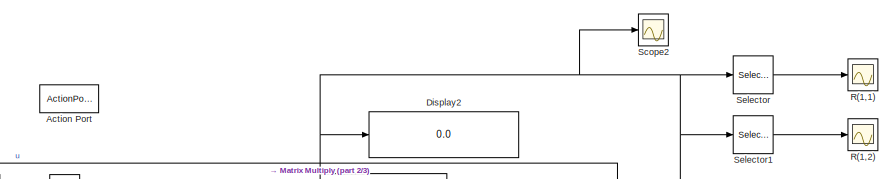
[diagram: Regler/y-Regler - part 1/3, top right region]
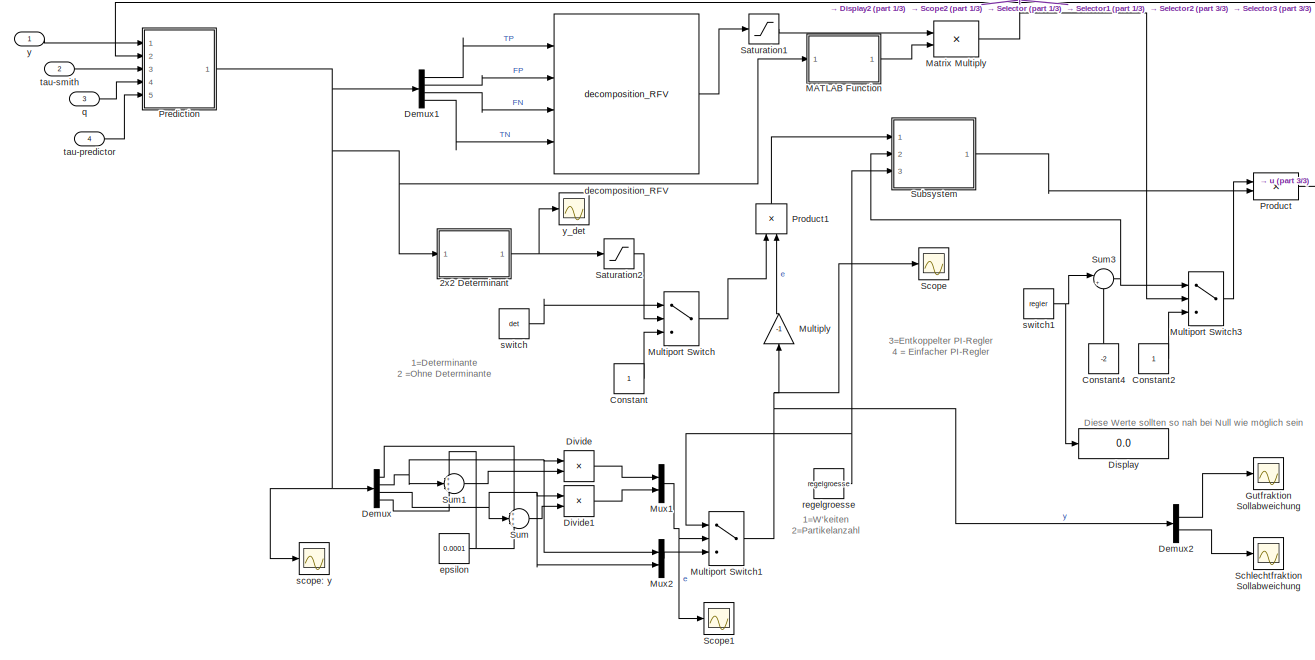
[diagram: Regler/y-Regler - part 2/3, most of the canvas]
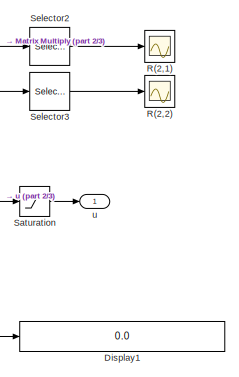
[diagram: Regler/y-Regler - part 3/3, middle right region]
BLOCK [SubSystem] Regler/y-Regler
  Ports = [4, 1, 0, 0, 0, 0, 0, 1]
  RequestExecContextInheritance = off
  TreatAsAtomicUnit = on
BLOCK [SubSystem] Regler/y-Regler/2x2 Determinant
  ErrorFcn = Stateflow.Translate.translate
  PermitHierarchicalResolution = ExplicitOnly
  Ports = [1, 1]
  RequestExecContextInheritance = off
  SFBlockType = MATLAB Function
  TreatAsAtomicUnit = on
BLOCK [Demux] Regler/y-Regler/2x2 Determinant/ Demux 
  Outputs = 1
  Ports = [1, 1]
BLOCK [S-Function] Regler/y-Regler/2x2 Determinant/ SFunction 
  EnableBusSupport = on
  FunctionName = sf_sfun
  PortCounts = [1 2]
  Ports = [1, 2]
  SFcnIsStateOwnerBlock = off
  SFunctionDeploymentMode = off
  Tag = Stateflow S-Function 3
BLOCK [Terminator] Regler/y-Regler/2x2 Determinant/ Terminator 
BLOCK [Inport] Regler/y-Regler/2x2 Determinant/u
BLOCK [Outport] Regler/y-Regler/2x2 Determinant/y
BLOCK [ActionPort] Regler/y-Regler/Action Port
  ActionPortLabel = case [ 3 4 ]:
BLOCK [Constant] Regler/y-Regler/Constant
BLOCK [Constant] Regler/y-Regler/Constant2
BLOCK [Constant] Regler/y-Regler/Constant4
  NameLocation = right
  Value = -2
BLOCK [Demux] Regler/y-Regler/Demux
  Ports = [1, 4]
BLOCK [Demux] Regler/y-Regler/Demux1
  Ports = [1, 4]
BLOCK [Demux] Regler/y-Regler/Demux2
  Outputs = 2
  Ports = [1, 2]
BLOCK [Display] Regler/y-Regler/Display
  Decimation = 1
  Ports = [1]
BLOCK [Display] Regler/y-Regler/Display1
  Decimation = 1
  Ports = [1]
BLOCK [Display] Regler/y-Regler/Display2
  Decimation = 1
  Ports = [1]
BLOCK [Product] Regler/y-Regler/Divide
  Inputs = */
  Ports = [2, 1]
BLOCK [Product] Regler/y-Regler/Divide1
  Inputs = */
  Ports = [2, 1]
BLOCK [Scope] Regler/y-Regler/Gutfraktion Sollabweichung
  Floating = off
  NumInputPorts = 1
  Ports = [1]
  ScopeSpecificationString = Simulink.scopes.TimeScopeBlockCfg('CurrentConfiguration', extmgr.ConfigurationSet(extmgr.Configuration('Core','General UI',true),extmgr.Configuration('Core','Source UI',true),extmgr.Configuration('Sources','WiredSimulink',true,'DataLoggingVariableName','ScopeData9'),extmgr.Configuration('Visuals','Time Domain',true,'SerializedDisplays',{struct('MinYLimReal','-0.11255','MaxYLimReal','1.01296','YLab...<+1443ch>
BLOCK [SubSystem] Regler/y-Regler/MATLAB Function
  ErrorFcn = Stateflow.Translate.translate
  PermitHierarchicalResolution = ExplicitOnly
  Ports = [1, 1]
  RequestExecContextInheritance = off
  SFBlockType = MATLAB Function
  TreatAsAtomicUnit = on
BLOCK [Demux] Regler/y-Regler/MATLAB Function/ Demux 
  Outputs = 1
  Ports = [1, 1]
BLOCK [S-Function] Regler/y-Regler/MATLAB Function/ SFunction 
  EnableBusSupport = on
  FunctionName = sf_sfun
  PortCounts = [1 2]
  Ports = [1, 2]
  SFcnIsStateOwnerBlock = off
  SFunctionDeploymentMode = off
  Tag = Stateflow S-Function 4
BLOCK [Terminator] Regler/y-Regler/MATLAB Function/ Terminator 
BLOCK [Outport] Regler/y-Regler/MATLAB Function/G_K
BLOCK [Inport] Regler/y-Regler/MATLAB Function/y
BLOCK [Product] Regler/y-Regler/Matrix Multiply
  Multiplication = Matrix(*)
  Ports = [2, 1]
BLOCK [Gain] Regler/y-Regler/Multiply
  Gain = -1
  NameLocation = right
BLOCK [MultiPortSwitch] Regler/y-Regler/Multiport Switch
  DiagnosticForDefault = None
  InputSameDT = off
  Inputs = 2
  Ports = [3, 1]
  SaturateOnIntegerOverflow = off
BLOCK [MultiPortSwitch] Regler/y-Regler/Multiport Switch1
  DiagnosticForDefault = None
  InputSameDT = off
  Inputs = 2
  Ports = [3, 1]
  SaturateOnIntegerOverflow = off
BLOCK [MultiPortSwitch] Regler/y-Regler/Multiport Switch3
  InputSameDT = off
  Inputs = 2
  Ports = [3, 1]
  SaturateOnIntegerOverflow = off
BLOCK [Mux] Regler/y-Regler/Mux1
  DisplayOption = bar
  Inputs = 2
  Ports = [2, 1]
BLOCK [Mux] Regler/y-Regler/Mux2
  DisplayOption = bar
  Inputs = 2
  Ports = [2, 1]
BLOCK [SubSystem] Regler/y-Regler/Prediction
  Ports = [5, 1]
  RequestExecContextInheritance = off
BLOCK [Constant] Regler/y-Regler/Prediction/Constant1
  Value = smith
BLOCK [Reference] Regler/y-Regler/Prediction/First-Order Filter3  REF=spsFirstOrderFilterLib/First-Order
Filter
  Ports = [1, 1]
  SourceBlock = spsFirstOrderFilterLib/First-Order\nFilter
  SourceProductBaseCode = PS
  SourceType = First-Order Filter
BLOCK [SubSystem] Regler/y-Regler/Prediction/Model Predictor
  Ports = [2, 1]
  RequestExecContextInheritance = off
BLOCK [Reference] Regler/y-Regler/Prediction/Model Predictor/Ausschleuseeinheit   REF=library_schuettgut/Ausschleuseeinheit  (lib defined in slx_c5b4a0b507ec)
  Ports = [2, 1]
  SourceBlock = library_schuettgut/Ausschleuseeinheit
  SourceType = SubSystem
BLOCK [Constant] Regler/y-Regler/Prediction/Model Predictor/Constant2
  Value = scale
BLOCK [Reshape] Regler/y-Regler/Prediction/Model Predictor/Reshape
  OutputDimensionality = Customize
  OutputDimensions = [2,1]
  Ports = [1, 1]
BLOCK [VariableTransportDelay] Regler/y-Regler/Prediction/Model Predictor/Variable Time Delay
  MaximumDelay = 10
  Ports = [2, 1]
BLOCK [Inport] Regler/y-Regler/Prediction/Model Predictor/q
BLOCK [Inport] Regler/y-Regler/Prediction/Model Predictor/tau
  Port = 2
BLOCK [Outport] Regler/y-Regler/Prediction/Model Predictor/y
BLOCK [MultiPortSwitch] Regler/y-Regler/Prediction/Multiport Switch2
  DiagnosticForDefault = None
  InputSameDT = off
  Ports = [4, 1]
  SaturateOnIntegerOverflow = off
BLOCK [Outport] Regler/y-Regler/Prediction/Out1
BLOCK [SubSystem] Regler/y-Regler/Prediction/Smith Predictor
  AncestorBlock = library_schuettgut/Smith Predictor
  Ports = [3, 1]
  RequestExecContextInheritance = off
  TreatAsAtomicUnit = on
BLOCK [VariableTransportDelay] Regler/y-Regler/Prediction/Smith Predictor/ 
  MaximumDelay = 20
  MaximumPoints = 30000
  Ports = [2, 1]
  VariableDelayType = Variable transport delay
BLOCK [SubSystem] Regler/y-Regler/Prediction/Smith Predictor/Prozessmodell
  Ports = [2, 1]
  RequestExecContextInheritance = off
BLOCK [Reference] Regler/y-Regler/Prediction/Smith Predictor/Prozessmodell/Ausschleuseeinheit  REF=library_schuettgut/Ausschleuseeinheit  (lib defined in slx_c5b4a0b507ec)
  Ports = [2, 1]
  SourceBlock = library_schuettgut/Ausschleuseeinheit
  SourceType = SubSystem
BLOCK [Constant] Regler/y-Regler/Prediction/Smith Predictor/Prozessmodell/Constant
  Value = [1;0;0;1]
BLOCK [Constant] Regler/y-Regler/Prediction/Smith Predictor/Prozessmodell/Constant1
  NameLocation = right
  Value = [[-0.4433];[-0.8801]]
BLOCK [Constant] Regler/y-Regler/Prediction/Smith Predictor/Prozessmodell/Constant2
  Value = scale
BLOCK [ManualSwitch] Regler/y-Regler/Prediction/Smith Predictor/Prozessmodell/Manual Switch
  CurrentSetting = 0
BLOCK [ManualSwitch] Regler/y-Regler/Prediction/Smith Predictor/Prozessmodell/Manual Switch1
  CurrentSetting = 0
  NameLocation = top
BLOCK [Gain] Regler/y-Regler/Prediction/Smith Predictor/Prozessmodell/Multiply
  Gain = [[0.069    0.2963\n];[    0.3066    0.1489]]
  Multiplication = Matrix(K*u)
BLOCK [Gain] Regler/y-Regler/Prediction/Smith Predictor/Prozessmodell/Multiply1
  Gain = [[0    -1\n]; [1 0]; [0 1];[    -1    0]]
  Multiplication = Matrix(K*u)
BLOCK [Product] Regler/y-Regler/Prediction/Smith Predictor/Prozessmodell/Product
  Multiplication = Matrix(*)
  Ports = [2, 1]
BLOCK [Reshape] Regler/y-Regler/Prediction/Smith Predictor/Prozessmodell/Reshape
  OutputDimensionality = Customize
  OutputDimensions = [2,1]
  Ports = [1, 1]
BLOCK [Sum] Regler/y-Regler/Prediction/Smith Predictor/Prozessmodell/Sum
  Inputs = |++
  Ports = [2, 1]
BLOCK [Sum] Regler/y-Regler/Prediction/Smith Predictor/Prozessmodell/Sum1
  Inputs = |++
  Ports = [2, 1]
BLOCK [SubSystem] Regler/y-Regler/Prediction/Smith Predictor/Prozessmodell/Vector2Matrix
  NameLocation = top
  Ports = [1, 1]
  RequestExecContextInheritance = off
BLOCK [Demux] Regler/y-Regler/Prediction/Smith Predictor/Prozessmodell/Vector2Matrix/Demux
  Ports = [1, 4]
BLOCK [Inport] Regler/y-Regler/Prediction/Smith Predictor/Prozessmodell/Vector2Matrix/Input
BLOCK [Concatenate] Regler/y-Regler/Prediction/Smith Predictor/Prozessmodell/Vector2Matrix/Matrix Concatenate
  ConcatenateDimension = 2
  Mode = Multidimensional array
  Ports = [2, 1]
BLOCK [Concatenate] Regler/y-Regler/Prediction/Smith Predictor/Prozessmodell/Vector2Matrix/Matrix Concatenate1
  ConcatenateDimension = 2
  Mode = Multidimensional array
  Ports = [2, 1]
BLOCK [Concatenate] Regler/y-Regler/Prediction/Smith Predictor/Prozessmodell/Vector2Matrix/Matrix Concatenate2
  Mode = Multidimensional array
  Ports = [2, 1]
BLOCK [Outport] Regler/y-Regler/Prediction/Smith Predictor/Prozessmodell/Vector2Matrix/Out1
BLOCK [Inport] Regler/y-Regler/Prediction/Smith Predictor/Prozessmodell/u
  PortDimensions = [2, 1]
BLOCK [Outport] Regler/y-Regler/Prediction/Smith Predictor/Prozessmodell/y
BLOCK [Inport] Regler/y-Regler/Prediction/Smith Predictor/Prozessmodell/y2
  NameLocation = top
  Port = 2
BLOCK [Scope] Regler/y-Regler/Prediction/Smith Predictor/Scope
  Floating = off
  NumInputPorts = 1
  Ports = [1]
  ScopeSpecificationString = Simulink.scopes.TimeScopeBlockCfg('CurrentConfiguration', extmgr.ConfigurationSet(extmgr.Configuration('Core','General UI',true),extmgr.Configuration('Core','Source UI',true),extmgr.Configuration('Sources','WiredSimulink',true,'DataLoggingVariableName','ScopeData1'),extmgr.Configuration('Visuals','Time Domain',true,'SerializedDisplays',{struct('MinYLimReal','-6059.21669','MaxYLimReal','6060.21669'...<+1477ch>
BLOCK [Sum] Regler/y-Regler/Prediction/Smith Predictor/Sum
  Inputs = +-|
  Ports = [2, 1]
BLOCK [Sum] Regler/y-Regler/Prediction/Smith Predictor/Sum1
  Inputs = ++|
  Ports = [2, 1]
BLOCK [Scope] Regler/y-Regler/Prediction/Smith Predictor/smith
  Floating = off
  NumInputPorts = 1
  Ports = [1]
  ScopeSpecificationString = Simulink.scopes.TimeScopeBlockCfg('CurrentConfiguration', extmgr.ConfigurationSet(extmgr.Configuration('Core','General UI',true),extmgr.Configuration('Core','Source UI',true),extmgr.Configuration('Sources','WiredSimulink',true,'DataLoggingVariableName','ScopeData1'),extmgr.Configuration('Visuals','Time Domain',true,'SerializedDisplays',{struct('MinYLimReal','-0.61517','MaxYLimReal','5.53653','YLab...<+1422ch>
BLOCK [Inport] Regler/y-Regler/Prediction/Smith Predictor/tau
  Port = 3
BLOCK [Inport] Regler/y-Regler/Prediction/Smith Predictor/u
BLOCK [Inport] Regler/y-Regler/Prediction/Smith Predictor/y
  Port = 2
BLOCK [Outport] Regler/y-Regler/Prediction/Smith Predictor/y*
BLOCK [Inport] Regler/y-Regler/Prediction/q
  Port = 4
BLOCK [Inport] Regler/y-Regler/Prediction/tau-predictor
  Port = 5
BLOCK [Inport] Regler/y-Regler/Prediction/tau-smith
  Port = 3
BLOCK [Inport] Regler/y-Regler/Prediction/u
  NameLocation = top
  Port = 2
BLOCK [Inport] Regler/y-Regler/Prediction/y
BLOCK [Product] Regler/y-Regler/Product
  Multiplication = Matrix(*)
  Ports = [2, 1]
BLOCK [Product] Regler/y-Regler/Product1
  NameLocation = right
  Ports = [2, 1]
BLOCK [Scope] Regler/y-Regler/R(1,1)
  Floating = off
  NumInputPorts = 1
  Ports = [1]
  ScopeSpecificationString = Simulink.scopes.TimeScopeBlockCfg('CurrentConfiguration', extmgr.ConfigurationSet(extmgr.Configuration('Core','General UI',true),extmgr.Configuration('Core','Source UI',true),extmgr.Configuration('Sources','WiredSimulink',true,'DataLoggingVariableName','ScopeData10'),extmgr.Configuration('Visuals','Time Domain',true,'SerializedDisplays',{struct('MinYLimReal','-47.47601','MaxYLimReal','35.1633','YL...<+1418ch>
BLOCK [Scope] Regler/y-Regler/R(1,2)
  Floating = off
  NumInputPorts = 1
  Ports = [1]
  ScopeSpecificationString = Simulink.scopes.TimeScopeBlockCfg('CurrentConfiguration', extmgr.ConfigurationSet(extmgr.Configuration('Core','General UI',true),extmgr.Configuration('Core','Source UI',true),extmgr.Configuration('Sources','WiredSimulink',true,'DataLoggingVariableName','ScopeData11'),extmgr.Configuration('Visuals','Time Domain',true,'SerializedDisplays',{struct('MinYLimReal','-123.86833','MaxYLimReal','347.09648',...<+1410ch>
BLOCK [Scope] Regler/y-Regler/R(2,1)
  Floating = off
  NumInputPorts = 1
  Ports = [1]
  ScopeSpecificationString = Simulink.scopes.TimeScopeBlockCfg('CurrentConfiguration', extmgr.ConfigurationSet(extmgr.Configuration('Core','General UI',true),extmgr.Configuration('Core','Source UI',true),extmgr.Configuration('Sources','WiredSimulink',true,'DataLoggingVariableName','ScopeData12'),extmgr.Configuration('Visuals','Time Domain',true,'SerializedDisplays',{struct('MinYLimReal','-45.79685','MaxYLimReal','338.42187','...<+1406ch>
BLOCK [Scope] Regler/y-Regler/R(2,2)
  Floating = off
  NumInputPorts = 1
  Ports = [1]
  ScopeSpecificationString = Simulink.scopes.TimeScopeBlockCfg('CurrentConfiguration', extmgr.ConfigurationSet(extmgr.Configuration('Core','General UI',true),extmgr.Configuration('Core','Source UI',true),extmgr.Configuration('Sources','WiredSimulink',true,'DataLoggingVariableName','ScopeData13'),extmgr.Configuration('Visuals','Time Domain',true,'SerializedDisplays',{struct('MinYLimReal','-337.5','MaxYLimReal','37.5','YLabelRe...<+1384ch>
BLOCK [Saturate] Regler/y-Regler/Saturation
  LowerLimit = 0
  UpperLimit = 1
BLOCK [Saturate] Regler/y-Regler/Saturation1
  LowerLimit = -300
  UpperLimit = 300
BLOCK [Saturate] Regler/y-Regler/Saturation2
  LowerLimit = -100
  UpperLimit = 100
BLOCK [Scope] Regler/y-Regler/Schlechtfraktion Sollabweichung
  Floating = off
  NumInputPorts = 1
  Ports = [1]
  ScopeSpecificationString = Simulink.scopes.TimeScopeBlockCfg('CurrentConfiguration', extmgr.ConfigurationSet(extmgr.Configuration('Core','General UI',true),extmgr.Configuration('Core','Source UI',true),extmgr.Configuration('Sources','WiredSimulink',true,'DataLoggingVariableName','ScopeData14'),extmgr.Configuration('Visuals','Time Domain',true,'SerializedDisplays',{struct('MinYLimReal','-0.21229','MaxYLimReal','1.91057','YLa...<+1446ch>
BLOCK [Scope] Regler/y-Regler/Scope
  Floating = off
  NumInputPorts = 1
  Ports = [1]
  ScopeSpecificationString = Simulink.scopes.TimeScopeBlockCfg('CurrentConfiguration', extmgr.ConfigurationSet(extmgr.Configuration('Core','General UI',true),extmgr.Configuration('Core','Source UI',true),extmgr.Configuration('Sources','WiredSimulink',true,'DataLoggingVariableName','ScopeData15'),extmgr.Configuration('Visuals','Time Domain',true,'SerializedDisplays',{struct('MinYLimReal','-0.05699','MaxYLimReal','0.5129','YLab...<+1443ch>
BLOCK [Scope] Regler/y-Regler/Scope1
  Floating = off
  NumInputPorts = 1
  Ports = [1]
  ScopeSpecificationString = Simulink.scopes.TimeScopeBlockCfg('CurrentConfiguration', extmgr.ConfigurationSet(extmgr.Configuration('Core','General UI',true),extmgr.Configuration('Core','Source UI',true),extmgr.Configuration('Sources','WiredSimulink',true,'DataLoggingVariableName','ScopeData1'),extmgr.Configuration('Visuals','Time Domain',true,'SerializedDisplays',{struct('MinYLimReal','-1.81799','MaxYLimReal','7.36336','YLab...<+1395ch>
BLOCK [Scope] Regler/y-Regler/Scope2
  Floating = off
  NumInputPorts = 1
  Ports = [1]
  ScopeSpecificationString = Simulink.scopes.TimeScopeBlockCfg('CurrentConfiguration', extmgr.ConfigurationSet(extmgr.Configuration('Core','General UI',true,'FigureColor',[1 1 1]),extmgr.Configuration('Core','Source UI',true),extmgr.Configuration('Sources','WiredSimulink',true,'DataLoggingVariableName','ScopeData1'),extmgr.Configuration('Visuals','Time Domain',true,'SerializedDisplays',{struct('MinYLimReal','-375.00000','MaxY...<+1995ch>
BLOCK [Selector] Regler/y-Regler/Selector
  IndexOptions = Index vector (dialog),Index vector (dialog)
  Indices = 1,1
  InputPortWidth = 3
  NumberOfDimensions = 2
  OutputSizes = 1,1
  Ports = [1, 1]
BLOCK [Selector] Regler/y-Regler/Selector1
  IndexOptions = Index vector (dialog),Index vector (dialog)
  Indices = 1,2
  InputPortWidth = 3
  NumberOfDimensions = 2
  OutputSizes = 1,1
  Ports = [1, 1]
BLOCK [Selector] Regler/y-Regler/Selector2
  IndexOptions = Index vector (dialog),Index vector (dialog)
  Indices = 2,1
  InputPortWidth = 3
  NumberOfDimensions = 2
  OutputSizes = 1,1
  Ports = [1, 1]
BLOCK [Selector] Regler/y-Regler/Selector3
  IndexOptions = Index vector (dialog),Index vector (dialog)
  Indices = 2,2
  InputPortWidth = 3
  NumberOfDimensions = 2
  OutputSizes = 1,1
  Ports = [1, 1]
BLOCK [SubSystem] Regler/y-Regler/Subsystem
  Ports = [3, 1]
  RequestExecContextInheritance = off
BLOCK [Display] Regler/y-Regler/Subsystem/Display
  Decimation = 1
  Ports = [1]
BLOCK [Display] Regler/y-Regler/Subsystem/Display1
  Decimation = 1
  Ports = [1]
BLOCK [MultiPortSwitch] Regler/y-Regler/Subsystem/Multiport Switch
  DiagnosticForDefault = None
  InputSameDT = off
  Inputs = 2
  Ports = [3, 1]
  SaturateOnIntegerOverflow = off
BLOCK [MultiPortSwitch] Regler/y-Regler/Subsystem/Multiport Switch1
  InputSameDT = off
  Inputs = 2
  Ports = [3, 1]
  SaturateOnIntegerOverflow = off
BLOCK [MultiPortSwitch] Regler/y-Regler/Subsystem/Multiport Switch2
  DiagnosticForDefault = None
  InputSameDT = off
  Inputs = 2
  Ports = [3, 1]
  SaturateOnIntegerOverflow = off
BLOCK [SubSystem] Regler/y-Regler/Subsystem/PI_31
  Ports = [1, 1]
  RequestExecContextInheritance = off
BLOCK [Demux] Regler/y-Regler/Subsystem/PI_31/Demux
  Outputs = 2
  Ports = [1, 2]
BLOCK [Gain] Regler/y-Regler/Subsystem/PI_31/Multiply
  Gain = [[0 0 ];[0 0]]
  Multiplication = Matrix(K*u)
BLOCK [Mux] Regler/y-Regler/Subsystem/PI_31/Mux
  DisplayOption = bar
  Inputs = 2
  Ports = [2, 1]
BLOCK [Outport] Regler/y-Regler/Subsystem/PI_31/Out1
BLOCK [Reference] Regler/y-Regler/Subsystem/PI_31/PID Controller  REF=pid_lib/PID Controller
  Ports = [1, 1]
  SourceBlock = pid_lib/PID Controller
  SourceProductBaseCode = SL
  SourceType = PID 1dof
BLOCK [Reference] Regler/y-Regler/Subsystem/PI_31/PID Controller1  REF=pid_lib/PID Controller
  Ports = [1, 1]
  SourceBlock = pid_lib/PID Controller
  SourceProductBaseCode = SL
  SourceType = PID 1dof
BLOCK [Reference] Regler/y-Regler/Subsystem/PI_31/PID Controller2  REF=pid_lib/PID Controller
  Ports = [1, 1]
  SourceBlock = pid_lib/PID Controller
  SourceProductBaseCode = SL
  SourceType = PID 1dof
BLOCK [Reference] Regler/y-Regler/Subsystem/PI_31/PID Controller4  REF=pid_lib/PID Controller
  Ports = [1, 1]
  SourceBlock = pid_lib/PID Controller
  SourceProductBaseCode = SL
  SourceType = PID 1dof
BLOCK [Saturate] Regler/y-Regler/Subsystem/PI_31/Saturation
  LowerLimit = -30
  UpperLimit = 30
BLOCK [Sum] Regler/y-Regler/Subsystem/PI_31/Sum
  Inputs = |++
  Ports = [2, 1]
BLOCK [Sum] Regler/y-Regler/Subsystem/PI_31/Sum1
  Inputs = ++|
  Ports = [2, 1]
BLOCK [Sum] Regler/y-Regler/Subsystem/PI_31/Sum2
  Inputs = |++
  Ports = [2, 1]
BLOCK [Inport] Regler/y-Regler/Subsystem/PI_31/e
BLOCK [SubSystem] Regler/y-Regler/Subsystem/PI_32
  Ports = [1, 1]
  RequestExecContextInheritance = off
BLOCK [Demux] Regler/y-Regler/Subsystem/PI_32/Demux
  Outputs = 2
  Ports = [1, 2]
BLOCK [Gain] Regler/y-Regler/Subsystem/PI_32/Multiply
  Gain = b_PI_32*[[1 0 ];[0 1]]
  Multiplication = Matrix(K*u)
BLOCK [Mux] Regler/y-Regler/Subsystem/PI_32/Mux
  DisplayOption = bar
  Inputs = 2
  Ports = [2, 1]
BLOCK [Outport] Regler/y-Regler/Subsystem/PI_32/Out1
BLOCK [Reference] Regler/y-Regler/Subsystem/PI_32/PID Controller  REF=pid_lib/PID Controller
  Ports = [1, 1]
  SourceBlock = pid_lib/PID Controller
  SourceProductBaseCode = SL
  SourceType = PID 1dof
BLOCK [Reference] Regler/y-Regler/Subsystem/PI_32/PID Controller1  REF=pid_lib/PID Controller
  Ports = [1, 1]
  SourceBlock = pid_lib/PID Controller
  SourceProductBaseCode = SL
  SourceType = PID 1dof
BLOCK [Reference] Regler/y-Regler/Subsystem/PI_32/PID Controller2  REF=pid_lib/PID Controller
  Ports = [1, 1]
  SourceBlock = pid_lib/PID Controller
  SourceProductBaseCode = SL
  SourceType = PID 1dof
BLOCK [Reference] Regler/y-Regler/Subsystem/PI_32/PID Controller4  REF=pid_lib/PID Controller
  Ports = [1, 1]
  SourceBlock = pid_lib/PID Controller
  SourceProductBaseCode = SL
  SourceType = PID 1dof
BLOCK [Sum] Regler/y-Regler/Subsystem/PI_32/Sum
  Inputs = |++
  Ports = [2, 1]
BLOCK [Sum] Regler/y-Regler/Subsystem/PI_32/Sum1
  Inputs = ++|
  Ports = [2, 1]
BLOCK [Sum] Regler/y-Regler/Subsystem/PI_32/Sum2
  Inputs = |++
  Ports = [2, 1]
BLOCK [Inport] Regler/y-Regler/Subsystem/PI_32/e
BLOCK [SubSystem] Regler/y-Regler/Subsystem/PI_41
  Ports = [1, 1]
  RequestExecContextInheritance = off
BLOCK [Demux] Regler/y-Regler/Subsystem/PI_41/Demux
  Outputs = 2
  Ports = [1, 2]
BLOCK [Gain] Regler/y-Regler/Subsystem/PI_41/Multiply
  Gain = [[0 0 ];[0 0]]
  Multiplication = Matrix(K*u)
BLOCK [Mux] Regler/y-Regler/Subsystem/PI_41/Mux
  DisplayOption = bar
  Inputs = 2
  Ports = [2, 1]
BLOCK [Outport] Regler/y-Regler/Subsystem/PI_41/Out1
BLOCK [Reference] Regler/y-Regler/Subsystem/PI_41/PID Controller  REF=pid_lib/PID Controller
  Ports = [1, 1]
  SourceBlock = pid_lib/PID Controller
  SourceProductBaseCode = SL
  SourceType = PID 1dof
BLOCK [Reference] Regler/y-Regler/Subsystem/PI_41/PID Controller1  REF=pid_lib/PID Controller
  Ports = [1, 1]
  SourceBlock = pid_lib/PID Controller
  SourceProductBaseCode = SL
  SourceType = PID 1dof
BLOCK [Reference] Regler/y-Regler/Subsystem/PI_41/PID Controller2  REF=pid_lib/PID Controller
  Ports = [1, 1]
  SourceBlock = pid_lib/PID Controller
  SourceProductBaseCode = SL
  SourceType = PID 1dof
BLOCK [Reference] Regler/y-Regler/Subsystem/PI_41/PID Controller4  REF=pid_lib/PID Controller
  Ports = [1, 1]
  SourceBlock = pid_lib/PID Controller
  SourceProductBaseCode = SL
  SourceType = PID 1dof
BLOCK [Sum] Regler/y-Regler/Subsystem/PI_41/Sum
  Inputs = |++
  Ports = [2, 1]
BLOCK [Sum] Regler/y-Regler/Subsystem/PI_41/Sum1
  Inputs = ++|
  Ports = [2, 1]
BLOCK [Sum] Regler/y-Regler/Subsystem/PI_41/Sum2
  Inputs = |++
  Ports = [2, 1]
BLOCK [Inport] Regler/y-Regler/Subsystem/PI_41/e
BLOCK [SubSystem] Regler/y-Regler/Subsystem/PI_42
  Ports = [1, 1]
  RequestExecContextInheritance = off
BLOCK [Demux] Regler/y-Regler/Subsystem/PI_42/Demux
  Outputs = 2
  Ports = [1, 2]
BLOCK [Gain] Regler/y-Regler/Subsystem/PI_42/Multiply
  Gain = [[0 0 ];[0 0]]
  Multiplication = Matrix(K*u)
BLOCK [Mux] Regler/y-Regler/Subsystem/PI_42/Mux
  DisplayOption = bar
  Inputs = 2
  Ports = [2, 1]
BLOCK [Outport] Regler/y-Regler/Subsystem/PI_42/Out1
BLOCK [Reference] Regler/y-Regler/Subsystem/PI_42/PID Controller  REF=pid_lib/PID Controller
  Ports = [1, 1]
  SourceBlock = pid_lib/PID Controller
  SourceProductBaseCode = SL
  SourceType = PID 1dof
BLOCK [Reference] Regler/y-Regler/Subsystem/PI_42/PID Controller1  REF=pid_lib/PID Controller
  Ports = [1, 1]
  SourceBlock = pid_lib/PID Controller
  SourceProductBaseCode = SL
  SourceType = PID 1dof
BLOCK [Reference] Regler/y-Regler/Subsystem/PI_42/PID Controller2  REF=pid_lib/PID Controller
  Ports = [1, 1]
  SourceBlock = pid_lib/PID Controller
  SourceProductBaseCode = SL
  SourceType = PID 1dof
BLOCK [Reference] Regler/y-Regler/Subsystem/PI_42/PID Controller4  REF=pid_lib/PID Controller
  Ports = [1, 1]
  SourceBlock = pid_lib/PID Controller
  SourceProductBaseCode = SL
  SourceType = PID 1dof
BLOCK [Sum] Regler/y-Regler/Subsystem/PI_42/Sum
  Inputs = |++
  Ports = [2, 1]
BLOCK [Sum] Regler/y-Regler/Subsystem/PI_42/Sum1
  Inputs = ++|
  Ports = [2, 1]
BLOCK [Sum] Regler/y-Regler/Subsystem/PI_42/Sum2
  Inputs = |++
  Ports = [2, 1]
BLOCK [Inport] Regler/y-Regler/Subsystem/PI_42/e
BLOCK [Scope] Regler/y-Regler/Subsystem/Scope u
  Floating = off
  NumInputPorts = 1
  Ports = [1]
  ScopeSpecificationString = Simulink.scopes.TimeScopeBlockCfg('CurrentConfiguration', extmgr.ConfigurationSet(extmgr.Configuration('Core','General UI',true),extmgr.Configuration('Core','Source UI',true),extmgr.Configuration('Sources','WiredSimulink',true,'DataLoggingVariableName','ScopeData2'),extmgr.Configuration('Visuals','Time Domain',true,'SerializedDisplays',{struct('MinYLimReal','-0.0303','MaxYLimReal','0.00337','YLabe...<+1491ch>
BLOCK [Inport] Regler/y-Regler/Subsystem/e
BLOCK [Inport] Regler/y-Regler/Subsystem/entkoppelt
  Port = 2
BLOCK [Inport] Regler/y-Regler/Subsystem/regelgroesse
  Port = 3
BLOCK [Outport] Regler/y-Regler/Subsystem/u
BLOCK [Sum] Regler/y-Regler/Sum
  Inputs = +++
  Ports = [3, 1]
BLOCK [Sum] Regler/y-Regler/Sum1
  Inputs = +++
  Ports = [3, 1]
BLOCK [Sum] Regler/y-Regler/Sum3
  Inputs = |++
  Ports = [2, 1]
BLOCK [Reference] Regler/y-Regler/decomposition_RFV  REF=library_schuettgut/decomposition_RFV  (lib defined in slx_c5b4a0b507ec)
  Ports = [4, 1]
  SourceBlock = library_schuettgut/decomposition_RFV
  SourceType = SubSystem
BLOCK [Constant] Regler/y-Regler/epsilon
  Value = 0.0001
BLOCK [Inport] Regler/y-Regler/q
  Port = 3
BLOCK [Constant] Regler/y-Regler/regelgroesse
  Value = regelgroesse
BLOCK [Scope] Regler/y-Regler/scope: y
  Floating = off
  NumInputPorts = 1
  Ports = [1]
  ScopeSpecificationString = Simulink.scopes.TimeScopeBlockCfg('CurrentConfiguration', extmgr.ConfigurationSet(extmgr.Configuration('Core','General UI',true),extmgr.Configuration('Core','Source UI',true),extmgr.Configuration('Sources','WiredSimulink',true,'DataLoggingVariableName','ScopeData3'),extmgr.Configuration('Visuals','Time Domain',true,'SerializedDisplays',{struct('MinYLimReal','-0.28439','MaxYLimReal','2.5595','YLabe...<+1440ch>
BLOCK [Constant] Regler/y-Regler/switch
  Value = det
BLOCK [Constant] Regler/y-Regler/switch1
  Value = regler
BLOCK [Inport] Regler/y-Regler/tau-predictor
  Port = 4
BLOCK [Inport] Regler/y-Regler/tau-smith
  Port = 2
BLOCK [Outport] Regler/y-Regler/u
BLOCK [Inport] Regler/y-Regler/y
BLOCK [Scope] Regler/y-Regler/y_det
  Floating = off
  NumInputPorts = 1
  Ports = [1]
  ScopeSpecificationString = Simulink.scopes.TimeScopeBlockCfg('CurrentConfiguration', extmgr.ConfigurationSet(extmgr.Configuration('Core','General UI',true),extmgr.Configuration('Core','Source UI',true),extmgr.Configuration('Sources','WiredSimulink',true,'DataLoggingVariableName','ScopeData18'),extmgr.Configuration('Visuals','Time Domain',true,'SerializedDisplays',{struct('MinYLimReal','-1.00000','MaxYLimReal','1.00000','YLa...<+1402ch>
BLOCK [Rounding] Round
  Operator = round
BLOCK [Rounding] Round1
  Operator = round
BLOCK [Rounding] Round2
  Operator = round
BLOCK [Rounding] Round3
  Operator = round
BLOCK [Rounding] Round4
  Operator = round
BLOCK [Rounding] Round5
  Operator = round
BLOCK [Rounding] Round8
  Operator = round
BLOCK [Rounding] Round9
  Operator = round
BLOCK [Reference] Rutsche Gutfraktion  REF=library_schuettgut/Rampe  (lib defined in slx_c5b4a0b507ec)
  Ports = [2, 4]
  SourceBlock = library_schuettgut/Rampe
  Tag = Rampe
BLOCK [Reference] Rutsche Gutfraktion1  REF=library_schuettgut/Rampe  (lib defined in slx_c5b4a0b507ec)
  Ports = [2, 4]
  SourceBlock = library_schuettgut/Rampe
  Tag = Rampe
BLOCK [Reference] Rutsche Schlechtfraktion  REF=library_schuettgut/Rampe  (lib defined in slx_c5b4a0b507ec)
  Ports = [2, 4]
  SourceBlock = library_schuettgut/Rampe
  Tag = Rampe
BLOCK [Reference] Rutsche Schlechtfraktion1  REF=library_schuettgut/Rampe  (lib defined in slx_c5b4a0b507ec)
  Ports = [2, 4]
  SourceBlock = library_schuettgut/Rampe
  Tag = Rampe
BLOCK [Saturate] Saturation
  LowerLimit = 0
  UpperLimit = 15
BLOCK [Saturate] Saturation2
  LowerLimit = 0
  UpperLimit = 1
BLOCK [Saturate] Saturation3
  LowerLimit = 0
  UpperLimit = 1
BLOCK [Scope] Schlechtfraktion Partikel pro s
  Floating = off
  NameLocation = left
  NumInputPorts = 1
  Ports = [1]
  ScopeSpecificationString = Simulink.scopes.TimeScopeBlockCfg('CurrentConfiguration', extmgr.ConfigurationSet(extmgr.Configuration('Core','General UI',true,'FigureColor',[1 1 1]),extmgr.Configuration('Core','Source UI',true),extmgr.Configuration('Sources','WiredSimulink',true,'DataLoggingVariableName','ScopeData5'),extmgr.Configuration('Visuals','Time Domain',true,'SerializedDisplays',{struct('MinYLimReal','-6.05384','MaxYLi...<+1815ch>
BLOCK [Scope] Schlechtfraktion Zurückgeführte Partikel pro s
  Floating = off
  NameLocation = top
  NumInputPorts = 1
  Ports = [1]
  ScopeSpecificationString = Simulink.scopes.TimeScopeBlockCfg('CurrentConfiguration', extmgr.ConfigurationSet(extmgr.Configuration('Core','General UI',true),extmgr.Configuration('Core','Source UI',true),extmgr.Configuration('Sources','WiredSimulink',true,'DataLoggingVariableName','ScopeData4'),extmgr.Configuration('Visuals','Time Domain',true,'SerializedDisplays',{struct('MinYLimReal','-0.01091','MaxYLimReal','0.09816','YLab...<+1553ch>
BLOCK [Display] Schlechtpartikel
  Decimation = 1
  Ports = [1]
BLOCK [Display] Schlechtpartikel1
  Decimation = 1
  Ports = [1]
BLOCK [Display] Schlechtpartikel2
  Decimation = 1
  Ports = [1]
BLOCK [Display] Schlechtpartikel3
  Decimation = 1
  Ports = [1]
BLOCK [Scope] Scope
  Floating = off
  NumInputPorts = 1
  Ports = [1]
BLOCK [Scope] Scope NPV
  Floating = off
  NumInputPorts = 1
  Ports = [1]
  ScopeSpecificationString = Simulink.scopes.TimeScopeBlockCfg('CurrentConfiguration', extmgr.ConfigurationSet(extmgr.Configuration('Core','General UI',true),extmgr.Configuration('Core','Source UI',true),extmgr.Configuration('Sources','WiredSimulink',true,'DataLoggingVariableName','ScopeData1'),extmgr.Configuration('Visuals','Time Domain',true,'SerializedDisplays',{struct('MinYLimReal','0.25541','MaxYLimReal','0.73036','YLabe...<+1419ch>
BLOCK [Scope] Scope PPV
  Floating = off
  NumInputPorts = 1
  Ports = [1]
  ScopeSpecificationString = Simulink.scopes.TimeScopeBlockCfg('CurrentConfiguration', extmgr.ConfigurationSet(extmgr.Configuration('Core','General UI',true),extmgr.Configuration('Core','Source UI',true),extmgr.Configuration('Sources','WiredSimulink',true,'DataLoggingVariableName','ScopeData2'),extmgr.Configuration('Visuals','Time Domain',true,'SerializedDisplays',{struct('MinYLimReal','0.68858','MaxYLimReal','0.93783','YLabe...<+1417ch>
BLOCK [Scope] Scope1
  Floating = off
  NameLocation = top
  NumInputPorts = 1
  Ports = [1]
  ScopeSpecificationString = Simulink.scopes.TimeScopeBlockCfg('CurrentConfiguration', extmgr.ConfigurationSet(extmgr.Configuration('Core','General UI',true),extmgr.Configuration('Core','Source UI',true),extmgr.Configuration('Sources','WiredSimulink',true,'DataLoggingVariableName','ScopeData1'),extmgr.Configuration('Visuals','Time Domain',true,'SerializedDisplays',{struct('MinYLimReal','-0.06465','MaxYLimReal','0.58181','YLab...<+1435ch>
BLOCK [Scope] Scope10
  Floating = off
  NumInputPorts = 1
  Ports = [1]
  ScopeSpecificationString = Simulink.scopes.TimeScopeBlockCfg('CurrentConfiguration', extmgr.ConfigurationSet(extmgr.Configuration('Core','General UI',true),extmgr.Configuration('Core','Source UI',true),extmgr.Configuration('Sources','WiredSimulink',true,'DataLoggingVariableName','ScopeData4'),extmgr.Configuration('Visuals','Time Domain',true,'SerializedDisplays',{struct('MinYLimReal','-711.75','MaxYLimReal','6405.75','YLabe...<+1366ch>
BLOCK [Scope] Scope11
  Floating = off
  NumInputPorts = 1
  Ports = [1]
  ScopeSpecificationString = Simulink.scopes.TimeScopeBlockCfg('CurrentConfiguration', extmgr.ConfigurationSet(extmgr.Configuration('Core','General UI',true),extmgr.Configuration('Core','Source UI',true),extmgr.Configuration('Sources','WiredSimulink',true,'DataLoggingVariableName','ScopeData2'),extmgr.Configuration('Visuals','Time Domain',true),extmgr.Configuration('Tools','Plot Navigation',true),extmgr.Configuration('Tools',...<+40ch>
BLOCK [Scope] Scope12
  Floating = off
  NumInputPorts = 1
  Ports = [1]
  ScopeSpecificationString = Simulink.scopes.TimeScopeBlockCfg('CurrentConfiguration', extmgr.ConfigurationSet(extmgr.Configuration('Core','General UI',true),extmgr.Configuration('Core','Source UI',true),extmgr.Configuration('Sources','WiredSimulink',true,'DataLoggingVariableName','ScopeData3'),extmgr.Configuration('Visuals','Time Domain',true),extmgr.Configuration('Tools','Plot Navigation',true),extmgr.Configuration('Tools',...<+40ch>  <repeated x3 — deduplicated; at blocks: Scope12, Scope20, Scope3>
BLOCK [Scope] Scope13
  Floating = off
  NumInputPorts = 1
  Ports = [1]
BLOCK [Scope] Scope14
  Floating = off
  NumInputPorts = 1
  Ports = [1]
  ScopeSpecificationString = Simulink.scopes.TimeScopeBlockCfg('CurrentConfiguration', extmgr.ConfigurationSet(extmgr.Configuration('Core','General UI',true),extmgr.Configuration('Core','Source UI',true),extmgr.Configuration('Sources','WiredSimulink',true,'DataLoggingVariableName','ScopeData2'),extmgr.Configuration('Visuals','Time Domain',true,'SerializedDisplays',{struct('MinYLimReal','-711.75','MaxYLimReal','6405.75','YLabe...<+1366ch>
BLOCK [Scope] Scope15
  Floating = off
  NumInputPorts = 1
  Ports = [1]
  ScopeSpecificationString = Simulink.scopes.TimeScopeBlockCfg('CurrentConfiguration', extmgr.ConfigurationSet(extmgr.Configuration('Core','General UI',true),extmgr.Configuration('Core','Source UI',true),extmgr.Configuration('Sources','WiredSimulink',true,'DataLoggingVariableName','ScopeData5'),extmgr.Configuration('Visuals','Time Domain',true),extmgr.Configuration('Tools','Plot Navigation',true),extmgr.Configuration('Tools',...<+40ch>  <repeated x4 — deduplicated; at blocks: Scope15, Scope22, Scope5, Scope7>
BLOCK [Scope] Scope16
  Floating = off
  NumInputPorts = 1
  Ports = [1]
  ScopeSpecificationString = Simulink.scopes.TimeScopeBlockCfg('CurrentConfiguration', extmgr.ConfigurationSet(extmgr.Configuration('Core','General UI',true),extmgr.Configuration('Core','Source UI',true),extmgr.Configuration('Sources','WiredSimulink',true,'DataLoggingVariableName','ScopeData6'),extmgr.Configuration('Visuals','Time Domain',true),extmgr.Configuration('Tools','Plot Navigation',true),extmgr.Configuration('Tools',...<+40ch>
BLOCK [Scope] Scope17
  Floating = off
  NumInputPorts = 1
  Ports = [1]
  ScopeSpecificationString = Simulink.scopes.TimeScopeBlockCfg('CurrentConfiguration', extmgr.ConfigurationSet(extmgr.Configuration('Core','General UI',true),extmgr.Configuration('Core','Source UI',true),extmgr.Configuration('Sources','WiredSimulink',true,'DataLoggingVariableName','ScopeData7'),extmgr.Configuration('Visuals','Time Domain',true),extmgr.Configuration('Tools','Plot Navigation',true),extmgr.Configuration('Tools',...<+40ch>
BLOCK [Scope] Scope18
  Floating = off
  NumInputPorts = 1
  Ports = [1]
  ScopeSpecificationString = Simulink.scopes.TimeScopeBlockCfg('CurrentConfiguration', extmgr.ConfigurationSet(extmgr.Configuration('Core','General UI',true),extmgr.Configuration('Core','Source UI',true),extmgr.Configuration('Sources','WiredSimulink',true,'DataLoggingVariableName','ScopeData1'),extmgr.Configuration('Visuals','Time Domain',true,'SerializedDisplays',{struct('MinYLimReal','-0.28219','MaxYLimReal','2.51839','YLab...<+1387ch>
BLOCK [Scope] Scope19
  Floating = off
  NumInputPorts = 1
  Ports = [1]
  ScopeSpecificationString = Simulink.scopes.TimeScopeBlockCfg('CurrentConfiguration', extmgr.ConfigurationSet(extmgr.Configuration('Core','General UI',true,'FigureColor',[1 1 1]),extmgr.Configuration('Core','Source UI',true),extmgr.Configuration('Sources','WiredSimulink',true,'DataLoggingVariableName','ScopeData2'),extmgr.Configuration('Visuals','Time Domain',true,'SerializedDisplays',{struct('MinYLimReal','1.41746','MaxYLim...<+1539ch>
BLOCK [Scope] Scope2
  Floating = off
  NumInputPorts = 1
  Ports = [1]
  ScopeSpecificationString = Simulink.scopes.TimeScopeBlockCfg('CurrentConfiguration', extmgr.ConfigurationSet(extmgr.Configuration('Core','General UI',true),extmgr.Configuration('Core','Source UI',true),extmgr.Configuration('Sources','WiredSimulink',true,'DataLoggingVariableName','ScopeData2'),extmgr.Configuration('Visuals','Time Domain',true,'SerializedDisplays',{struct('MinYLimReal','-711.75','MaxYLimReal','6405.75','YLabe...<+1366ch>
BLOCK [Scope] Scope20
  Floating = off
  NumInputPorts = 1
  Ports = [1]
BLOCK [Scope] Scope21
  Floating = off
  NumInputPorts = 1
  Ports = [1]
  ScopeSpecificationString = Simulink.scopes.TimeScopeBlockCfg('CurrentConfiguration', extmgr.ConfigurationSet(extmgr.Configuration('Core','General UI',true),extmgr.Configuration('Core','Source UI',true),extmgr.Configuration('Sources','WiredSimulink',true,'DataLoggingVariableName','ScopeData4'),extmgr.Configuration('Visuals','Time Domain',true),extmgr.Configuration('Tools','Plot Navigation',true),extmgr.Configuration('Tools',...<+40ch>
BLOCK [Scope] Scope22
  Floating = off
  NumInputPorts = 1
  Ports = [1]
BLOCK [Scope] Scope3
  Floating = off
  NumInputPorts = 1
  Ports = [1]
BLOCK [Scope] Scope4
  Floating = off
  NumInputPorts = 1
  Ports = [1]
  ScopeSpecificationString = Simulink.scopes.TimeScopeBlockCfg('CurrentConfiguration', extmgr.ConfigurationSet(extmgr.Configuration('Core','General UI',true),extmgr.Configuration('Core','Source UI',true),extmgr.Configuration('Sources','WiredSimulink',true,'DataLoggingVariableName','ScopeData4'),extmgr.Configuration('Visuals','Time Domain',true),extmgr.Configuration('Tools','Plot Navigation',true),extmgr.Configuration('Tools',...<+40ch>
BLOCK [Scope] Scope5
  Floating = off
  NumInputPorts = 1
  Ports = [1]
BLOCK [Scope] Scope6
  Floating = off
  NumInputPorts = 1
  Ports = [1]
  ScopeSpecificationString = Simulink.scopes.TimeScopeBlockCfg('CurrentConfiguration', extmgr.ConfigurationSet(extmgr.Configuration('Core','General UI',true),extmgr.Configuration('Core','Source UI',true),extmgr.Configuration('Sources','WiredSimulink',true,'DataLoggingVariableName','ScopeData4'),extmgr.Configuration('Visuals','Time Domain',true,'SerializedDisplays',{struct('MinYLimReal','-711.75','MaxYLimReal','6405.75','YLabe...<+1366ch>
BLOCK [Scope] Scope7
  Floating = off
  NumInputPorts = 1
  Ports = [1]
BLOCK [Scope] Scope8
  Floating = off
  NumInputPorts = 1
  Ports = [1]
  ScopeSpecificationString = Simulink.scopes.TimeScopeBlockCfg('CurrentConfiguration', extmgr.ConfigurationSet(extmgr.Configuration('Core','General UI',true),extmgr.Configuration('Core','Source UI',true),extmgr.Configuration('Sources','WiredSimulink',true,'DataLoggingVariableName','ScopeData6'),extmgr.Configuration('Visuals','Time Domain',true),extmgr.Configuration('Tools','Plot Navigation',true),extmgr.Configuration('Tools',...<+40ch>
BLOCK [Scope] Scope9
  Floating = off
  NumInputPorts = 1
  Ports = [1]
  ScopeSpecificationString = Simulink.scopes.TimeScopeBlockCfg('CurrentConfiguration', extmgr.ConfigurationSet(extmgr.Configuration('Core','General UI',true),extmgr.Configuration('Core','Source UI',true),extmgr.Configuration('Sources','WiredSimulink',true,'DataLoggingVariableName','ScopeData8'),extmgr.Configuration('Visuals','Time Domain',true),extmgr.Configuration('Tools','Plot Navigation',true),extmgr.Configuration('Tools',...<+40ch>
BLOCK [Scope] Scope: u
  Floating = off
  NumInputPorts = 1
  Ports = [1]
  ScopeSpecificationString = Simulink.scopes.TimeScopeBlockCfg('CurrentConfiguration', extmgr.ConfigurationSet(extmgr.Configuration('Core','General UI',true,'FigureColor',[1 1 1]),extmgr.Configuration('Core','Source UI',true),extmgr.Configuration('Sources','WiredSimulink',true,'DataLoggingVariableName','ScopeData4'),extmgr.Configuration('Visuals','Time Domain',true,'SerializedDisplays',{struct('MinYLimReal','-0.11623','MaxYLi...<+1716ch>
BLOCK [Sin] Sine Wave
  Amplitude = 0.5
  Frequency = 0.1
  Ports = [0, 1]
  SampleTime = 0
BLOCK [Display] Stellgröße des Reglers für die Gutrutsche
  Decimation = 1
  Ports = [1]
BLOCK [Display] Stellgröße des Reglers für die Schlechtrutsch
  Decimation = 1
  NameLocation = left
  Ports = [1]
BLOCK [Scope] Störgröße
  Floating = off
  NumInputPorts = 1
  Ports = [1]
  ScopeSpecificationString = Simulink.scopes.TimeScopeBlockCfg('CurrentConfiguration', extmgr.ConfigurationSet(extmgr.Configuration('Core','General UI',true,'FigureColor',[1 1 1]),extmgr.Configuration('Core','Source UI',true),extmgr.Configuration('Sources','WiredSimulink',true,'DataLoggingVariableName','ScopeData1'),extmgr.Configuration('Visuals','Time Domain',true,'SerializedDisplays',{struct('MinYLimReal','0.02558','MaxYLim...<+1603ch>
BLOCK [SubSystem] Subsystem1
  Ports = [0, 1]
  RequestExecContextInheritance = off
BLOCK [Constant] Subsystem1/Constant
  Value = 0.9
BLOCK [Constant] Subsystem1/Constant1
  Value = 0.6
BLOCK [Constant] Subsystem1/Constant2
  Value = Szenario
BLOCK [MinMax] Subsystem1/Max
  Function = max
  Inputs = 2
  Ports = [2, 1]
BLOCK [MinMax] Subsystem1/Min
  Inputs = 2
  Ports = [2, 1]
BLOCK [MultiPortSwitch] Subsystem1/Multiport Switch
  DiagnosticForDefault = Warning
  InputSameDT = off
  Ports = [4, 1]
  SaturateOnIntegerOverflow = off
BLOCK [Outport] Subsystem1/Out1
BLOCK [Reference] Subsystem1/Ramp1  REF=simulink/Sources/Ramp
  Ports = [0, 1]
  SourceBlock = simulink/Sources/Ramp
  SourceProductBaseCode = SL
  SourceType = Ramp
BLOCK [Reference] Subsystem1/Ramp2  REF=simulink/Sources/Ramp
  Ports = [0, 1]
  SourceBlock = simulink/Sources/Ramp
  SourceProductBaseCode = SL
  SourceType = Ramp
BLOCK [Reference] Subsystem1/Ramp3  REF=simulink/Sources/Ramp
  Ports = [0, 1]
  SourceBlock = simulink/Sources/Ramp
  SourceProductBaseCode = SL
  SourceType = Ramp
BLOCK [Sum] Sum
  Inputs = |++
  Ports = [2, 1]
BLOCK [Sum] Sum1
  Inputs = |++
  Ports = [2, 1]
BLOCK [Sum] Sum10
  Inputs = ++|
  Ports = [2, 1]
BLOCK [Sum] Sum11
  Inputs = |++
  Ports = [2, 1]
BLOCK [Sum] Sum12
  Inputs = ++|
  Ports = [2, 1]
BLOCK [Sum] Sum13
  Inputs = |++
  Ports = [2, 1]
BLOCK [Sum] Sum14
  Inputs = ++|
  Ports = [2, 1]
BLOCK [Sum] Sum15
  Inputs = |++
  Ports = [2, 1]
BLOCK [Sum] Sum16
  Inputs = ++|
  Ports = [2, 1]
BLOCK [Sum] Sum17
  Inputs = +++
  Ports = [3, 1]
BLOCK [Sum] Sum18
  Inputs = +++
  Ports = [3, 1]
BLOCK [Sum] Sum19
  Inputs = +++
  Ports = [3, 1]
BLOCK [Sum] Sum2
  Inputs = |++
  Ports = [2, 1]
BLOCK [Sum] Sum20
  Inputs = +++
  Ports = [3, 1]
BLOCK [Sum] Sum21
  Inputs = ++|
  Ports = [2, 1]
BLOCK [Sum] Sum22
  Inputs = |++
  Ports = [2, 1]
BLOCK [Sum] Sum23
  Inputs = ++|
  Ports = [2, 1]
BLOCK [Sum] Sum24
  Inputs = |++
  Ports = [2, 1]
BLOCK [Sum] Sum25
  Inputs = |++
  Ports = [2, 1]
BLOCK [Sum] Sum26
  Inputs = +|+
  Ports = [2, 1]
BLOCK [Sum] Sum27
  Inputs = ++|
  Ports = [2, 1]
BLOCK [Sum] Sum28
  Inputs = |++
  Ports = [2, 1]
BLOCK [Sum] Sum29
  Inputs = |++
  Ports = [2, 1]
BLOCK [Sum] Sum3
  Inputs = |++
  Ports = [2, 1]
BLOCK [Sum] Sum30
  Inputs = +|+
  Ports = [2, 1]
BLOCK [Sum] Sum31
  Inputs = |++
  Ports = [2, 1]
BLOCK [Sum] Sum32
  Inputs = |++
  Ports = [2, 1]
BLOCK [Sum] Sum33
  Inputs = ++|
  Ports = [2, 1]
BLOCK [Sum] Sum34
  Inputs = |++
  Ports = [2, 1]
BLOCK [Sum] Sum35
  Inputs = ++|
  Ports = [2, 1]
BLOCK [Sum] Sum36
  Inputs = |++
  Ports = [2, 1]
BLOCK [Sum] Sum37
  Inputs = |++
  Ports = [2, 1]
BLOCK [Sum] Sum38
  Inputs = +|+
  Ports = [2, 1]
BLOCK [Sum] Sum39
  Inputs = |++
  Ports = [2, 1]
BLOCK [Sum] Sum4
  Inputs = |++
  Ports = [2, 1]
BLOCK [Sum] Sum40
  Inputs = +++
  Ports = [3, 1]
BLOCK [Sum] Sum41
  Inputs = +++
  Ports = [3, 1]
BLOCK [Sum] Sum42
  Inputs = +++
  Ports = [3, 1]
BLOCK [Sum] Sum43
  Inputs = +++
  Ports = [3, 1]
BLOCK [Sum] Sum44
  Inputs = +++
  Ports = [3, 1]
BLOCK [Sum] Sum5
  Inputs = +|+
  Ports = [2, 1]
BLOCK [Sum] Sum6
  Inputs = ++|
  Ports = [2, 1]
BLOCK [Sum] Sum7
  Inputs = ++|
  Ports = [2, 1]
BLOCK [Sum] Sum8
  Inputs = |++
  NameLocation = top
  Ports = [2, 1]
BLOCK [Sum] Sum9
  Inputs = ++|
  NameLocation = top
  Ports = [2, 1]
BLOCK [ComboBox] Szenario
  LabelPosition = Hide
  SelectedLabel = Szenario 1
BLOCK [ToWorkspace] To Workspace
  FixptAsFi = on
  MaxDataPoints = inf
  Ports = [1]
  SampleTime = -1
  SaveFormat = Timeseries
  VariableName = q
BLOCK [ToWorkspace] To Workspace1
  FixptAsFi = on
  MaxDataPoints = inf
  Ports = [1]
  SampleTime = T
  SaveFormat = Timeseries
  VariableName = y
BLOCK [ToWorkspace] To Workspace2
  FixptAsFi = on
  MaxDataPoints = inf
  Ports = [1]
  SampleTime = T
  SaveFormat = Timeseries
  VariableName = r
BLOCK [ToWorkspace] To Workspace4
  FixptAsFi = on
  MaxDataPoints = inf
  Ports = [1]
  SampleTime = T
  SaveFormat = Timeseries
  VariableName = y_rueck_FP
BLOCK [ToWorkspace] To Workspace5
  FixptAsFi = on
  MaxDataPoints = inf
  Ports = [1]
  SampleTime = T
  SaveFormat = Timeseries
  VariableName = y_rueck_TN
BLOCK [ToWorkspace] To Workspace6
  FixptAsFi = on
  MaxDataPoints = inf
  Ports = [1]
  SampleTime = 0.1
  SaveFormat = Timeseries
  VariableName = y_rueck_TP
BLOCK [ToWorkspace] To Workspace7
  FixptAsFi = on
  MaxDataPoints = inf
  Ports = [1]
  SampleTime = 0.1
  SaveFormat = Timeseries
  VariableName = y_rueck_FN
BLOCK [TransportDelay] Totzeit Kamera - OS
  DelayTime = tau_KO
  Ports = [1, 1]
BLOCK [TransportDelay] Totzeit Kamera - OS1
  DelayTime = tau_KO
  Ports = [1, 1]
BLOCK [TransportDelay] Totzeit Kamera - OS2
  DelayTime = tau_KO
  Ports = [1, 1]
BLOCK [TransportDelay] Totzeit Start - Kamera 
  DelayTime = tau_SK
  Ports = [1, 1]
BLOCK [TransportDelay] Totzeit Start - Kamera 1
  DelayTime = tau_SK
  Ports = [1, 1]
BLOCK [TransportDelay] Totzeit Start - Kamera 2
  DelayTime = tau_SK
  Ports = [1, 1]
BLOCK [TransportDelay] Transport Delay
  DelayTime = tau_V+n_n*T
  Ports = [1, 1]
BLOCK [TransportDelay] Transport Delay1
  DelayTime = tau_V+n_n*T
  Ports = [1, 1]
BLOCK [TransportDelay] Transport Delay2
  DelayTime = tau_V+n_n*T
  Ports = [1, 1]
BLOCK [Reference] Verhaeltnis Gut- zu Schlechtpartikel ist nicht konstant  REF=simulink/Sources/Band-Limited
White Noise
  Ports = [0, 1]
  SourceBlock = simulink/Sources/Band-Limited\nWhite Noise
  SourceProductBaseCode = SL
  SourceType = Band-Limited White Noise.
BLOCK [ComboBox] Welcher Regler?
  LabelPosition = Hide
  SelectedLabel = q-PI
BLOCK [EditField] c_1
  Alignment = Center
  LabelPosition = Hide
  ShowInitialText = on
BLOCK [EditField] c_2
  Alignment = Center
  LabelPosition = Hide
  ShowInitialText = on
BLOCK [Constant] epsilon1
  Value = 0.0001
BLOCK [Constant] epsilon2
  Value = 0.0001
BLOCK [Reference] prozent-split1  REF=library_schuettgut/prozent-split  (lib defined in slx_c5b4a0b507ec)
  Ports = [1, 2]
  SourceBlock = library_schuettgut/prozent-split
  SourceType = SubSystem
BLOCK [EditField] q: I-Anteil
  Alignment = Center
  LabelPosition = Hide
  ShowInitialText = on
BLOCK [EditField] q: P-Anteil
  Alignment = Center
  LabelPosition = Hide
  ShowInitialText = on
BLOCK [Constant] switch_n
  Value = Szenario
BLOCK [Scope] u_2
  Floating = off
  NumInputPorts = 1
  Ports = [1]
  ScopeSpecificationString = Simulink.scopes.TimeScopeBlockCfg('CurrentConfiguration', extmgr.ConfigurationSet(extmgr.Configuration('Core','General UI',true),extmgr.Configuration('Core','Source UI',true),extmgr.Configuration('Sources','WiredSimulink',true,'DataLoggingVariableName','ScopeData6'),extmgr.Configuration('Visuals','Time Domain',true,'SerializedDisplays',{struct('MinYLimReal','-0.125','MaxYLimReal','1.125','YLabelRe...<+1395ch>
BLOCK [Scope] y
  Floating = off
  NumInputPorts = 1
  Ports = [1]
  ScopeSpecificationString = Simulink.scopes.TimeScopeBlockCfg('CurrentConfiguration', extmgr.ConfigurationSet(extmgr.Configuration('Core','General UI',true,'FigureColor',[1 1 1]),extmgr.Configuration('Core','Source UI',true),extmgr.Configuration('Sources','WiredSimulink',true,'DataLoggingVariableName','ScopeData5'),extmgr.Configuration('Visuals','Time Domain',true,'SerializedDisplays',{struct('MinYLimReal','-1.17267','MaxYLi...<+1914ch>
BLOCK [EditField] y: I-Anteil
  Alignment = Center
  LabelPosition = Hide
  ShowInitialText = on
BLOCK [EditField] y: P-Anteil
  Alignment = Center
  LabelPosition = Hide
  ShowInitialText = on
BLOCK [Scope] y_2.Sortierer
  Floating = off
  NumInputPorts = 1
  Ports = [1]
  ScopeSpecificationString = Simulink.scopes.TimeScopeBlockCfg('CurrentConfiguration', extmgr.ConfigurationSet(extmgr.Configuration('Core','General UI',true),extmgr.Configuration('Core','Source UI',true),extmgr.Configuration('Sources','WiredSimulink',true,'DataLoggingVariableName','ScopeData2'),extmgr.Configuration('Visuals','Time Domain',true,'SerializedDisplays',{struct('MinYLimReal','-0.10804','MaxYLimReal','0.97235','YLab...<+1474ch>
ANNOTATION (root): Fließband
ANNOTATION (root): Vorherige Prozesse
ANNOTATION (root): Ursprüngliches System
ANNOTATION (root): AUSWERTUNG
ANNOTATION (root): Accuracy (ACC) (TP+TN)/N
ANNOTATION (root): Dezimaltrenner
ANNOTATION (root): Fehler
ANNOTATION (root): Gesamtzahl sortierter Partikel
ANNOTATION (root): Gutpartikel in der Gutfraktion Box (TP)
ANNOTATION (root): Gutpartikel in der Schlechtfraktion Box (FN)
ANNOTATION (root): Hier noch die Totzeit für den 2. MPC anpassen
ANNOTATION (root): Konstanten des Gütemaßes
ANNOTATION (root): MPC
ANNOTATION (root): Parameter
ANNOTATION (root): Schlechtpartikel in der Gutfraktion-Box (FP)
ANNOTATION (root): Schlechtpartikel in der Schlechtpartikel Box (TN)
ANNOTATION (root): True negative rate
ANNOTATION (root): True positive rate
ANNOTATION (root): entkoppelter y-Regler
ANNOTATION (root): q-PI Regler
ANNOTATION (root): wenn der Regler hier verwendet wird lohnt sich folgende Wahl für den MPC des ersten Ausschleusesystems: c_2 = 1.5, c_3 = 1
ANNOTATION (root): zweiter Sortierer
ANNOTATION Abbruch der Simulation sobald alle Partikel sortiert worden sind: Abbruch der Simulation sobald alle Partikel sortiert sind
ANNOTATION Abbruch der Simulation sobald alle Partikel sortiert worden sind1: Abbruch der Simulation sobald alle Partikel sortiert sind
ANNOTATION Kamera: Dieser Fehler sollte bei maximal alpha und beta liegen
ANNOTATION Kamera1: Dieser Fehler sollte bei maximal alpha und beta liegen
ANNOTATION Regler: Ist diese Totzeit notwendig?
ANNOTATION Regler/Entkopplungsregler: Diese Werte sollten so nah bei Null wie möglich sein
ANNOTATION Regler/MPC: 1 = q-Regler 2 = y-Regler 3 = linearisierter y-Regler
ANNOTATION Regler/MPC/MPC: 1 = q-Regler 2 = y-Regler 3 = linearisierter y-Regler
ANNOTATION Regler/MPC/MPC: Dieser Strang liefer mir y(k+1-k_LV) ... y(k)
ANNOTATION Regler/MPC/MPC: Dieser Strang liefert y(k+1) ... y(k+k_KL)
ANNOTATION Regler/Partikelanzahlregler: Wirken auf u_N ein
ANNOTATION Regler/Partikelanzahlregler: wirken auf u_P ein
ANNOTATION Regler/q-Regler: 1: Smith Predictor 2: y 3: y
ANNOTATION Regler/q-Regler: 1=Entkoppelter PI-Regler 2 = Einfacher PI-Regler
ANNOTATION Regler/q-Regler: Entkopplung
ANNOTATION Regler/q-Regler: Wirken auf u_N ein
ANNOTATION Regler/q-Regler: wirken auf u_P ein
ANNOTATION Regler/y-Regler: 1=Determinante 2 =Ohne Determinante
ANNOTATION Regler/y-Regler: 1=W'keiten 2=Partikelanzahl
ANNOTATION Regler/y-Regler: 3=Entkoppelter PI-Regler 4 = Einfacher PI-Regler
ANNOTATION Regler/y-Regler: Diese Werte sollten so nah bei Null wie möglich sein
ANNOTATION Regler/y-Regler/Prediction: 1: Smith Predictor 2: Model Predictor 3: y
ANNOTATION Regler/y-Regler/Subsystem: 1=Entkoppelter PI-Regler 2 = Einfacher PI-Regler
ANNOTATION Regler/y-Regler/Subsystem: 1=W'keiten 2=Partikelanzahl
LINE Abbruch der Simulation sobald alle Partikel sortiert worden sind/Constant3:1 -> Abbruch der Simulation sobald alle Partikel sortiert worden sind/Max1:1
LINE Abbruch der Simulation sobald alle Partikel sortiert worden sind/Constant4:1 -> Abbruch der Simulation sobald alle Partikel sortiert worden sind/Switch:1
LINE Abbruch der Simulation sobald alle Partikel sortiert worden sind/Constant5:1 -> Abbruch der Simulation sobald alle Partikel sortiert worden sind/Switch:3
LINE Abbruch der Simulation sobald alle Partikel sortiert worden sind/In1:1 -> Abbruch der Simulation sobald alle Partikel sortiert worden sind/Sum6:1
LINE Abbruch der Simulation sobald alle Partikel sortiert worden sind/Input:1 -> Abbruch der Simulation sobald alle Partikel sortiert worden sind/Sum6:2
LINE Abbruch der Simulation sobald alle Partikel sortiert worden sind/Max1:1 -> Abbruch der Simulation sobald alle Partikel sortiert worden sind/Sum6:3
LINE Abbruch der Simulation sobald alle Partikel sortiert worden sind/Ramp2:1 -> Abbruch der Simulation sobald alle Partikel sortiert worden sind/Max1:2
NET Abbruch der Simulation sobald alle Partikel sortiert worden sind/Sum6:1 -> Abbruch der Simulation sobald alle Partikel sortiert worden sind/Display:1, Abbruch der Simulation sobald alle Partikel sortiert worden sind/Switch:2
LINE Abbruch der Simulation sobald alle Partikel sortiert worden sind/Switch:1 -> Abbruch der Simulation sobald alle Partikel sortiert worden sind/Stop Simulation:1
LINE Abbruch der Simulation sobald alle Partikel sortiert worden sind1/Constant3:1 -> Abbruch der Simulation sobald alle Partikel sortiert worden sind1/Max1:1
LINE Abbruch der Simulation sobald alle Partikel sortiert worden sind1/Constant4:1 -> Abbruch der Simulation sobald alle Partikel sortiert worden sind1/Switch:1
LINE Abbruch der Simulation sobald alle Partikel sortiert worden sind1/Constant5:1 -> Abbruch der Simulation sobald alle Partikel sortiert worden sind1/Switch:3
LINE Abbruch der Simulation sobald alle Partikel sortiert worden sind1/In1:1 -> Abbruch der Simulation sobald alle Partikel sortiert worden sind1/Sum6:1
LINE Abbruch der Simulation sobald alle Partikel sortiert worden sind1/Input:1 -> Abbruch der Simulation sobald alle Partikel sortiert worden sind1/Sum6:2
LINE Abbruch der Simulation sobald alle Partikel sortiert worden sind1/Max1:1 -> Abbruch der Simulation sobald alle Partikel sortiert worden sind1/Sum6:3
LINE Abbruch der Simulation sobald alle Partikel sortiert worden sind1/Ramp2:1 -> Abbruch der Simulation sobald alle Partikel sortiert worden sind1/Max1:2
NET Abbruch der Simulation sobald alle Partikel sortiert worden sind1/Sum6:1 -> Abbruch der Simulation sobald alle Partikel sortiert worden sind1/Display:1, Abbruch der Simulation sobald alle Partikel sortiert worden sind1/Switch:2
LINE Abbruch der Simulation sobald alle Partikel sortiert worden sind1/Switch:1 -> Abbruch der Simulation sobald alle Partikel sortiert worden sind1/Stop Simulation:1
LINE Anteil Gutpartikel am gesamten Partikelstrom:1 -> Manual Switch1:2
LINE Constant1:1 -> Sum:1
LINE Constant2:1 -> Manual Switch2:2
LINE Constant3:1 -> Max1:2
LINE Constant4:1 -> Manual Switch:2
LINE Constant:1 -> Sum3:2
NET Demux10:1 -> Display26:1, Divide23:1, Divide26:1, Multiply:1, Scope14:1, Sum33:1, Sum34:1, Sum37:1
NET Demux10:2 -> Display29:1, Scope20:1, Sum34:2, Sum36:1, Sum40:1
NET Demux11:1 -> Divide11:1, Sum19:2
LINE Demux11:2 -> Sum20:3
NET Demux12:1 -> Divide6:1, Sum13:1
LINE Demux12:2 -> Sum13:2
LINE Demux13:1 -> Sum14:2
NET Demux13:2 -> Divide7:1, Sum14:1
NET Demux14:1 -> Display16:1, Scope16:1, Sum23:1, Sum25:2, Sum42:3
NET Demux14:2 -> Display17:1, Divide14:1, Divide17:1, Scope17:1, Sum21:2, Sum23:2, Sum24:2
NET Demux15:1 -> Display12:1, Divide13:1, Divide16:1, Multiply2:1, Scope10:1, Sum21:1, Sum22:1, Sum25:1
NET Demux15:2 -> Display15:1, Scope15:1, Sum22:2, Sum24:1, Sum42:1
NET Demux1:1 -> Display7:1, Scope4:1, Sum12:1, Sum41:3, Sum4:2
NET Demux1:2 -> Display9:1, Divide2:1, Divide5:1, Scope5:1, Sum10:2, Sum12:2, Sum2:2
NET Demux2:1 -> Display23:1, Scope8:1, Sum16:1, Sum29:2, Sum43:3
NET Demux2:2 -> Display24:1, Divide19:1, Divide22:1, Scope11:1, Sum16:2, Sum28:2, Sum6:2
NET Demux3:1 -> Sum8:2, To Workspace7:1
NET Demux3:2 -> Sum9:2, To Workspace5:1
NET Demux4:1 -> Sum8:1, To Workspace6:1
NET Demux4:2 -> Sum9:1, To Workspace4:1
NET Demux5:1 -> Divide9:1, Sum17:2
LINE Demux5:2 -> Sum18:3
LINE Demux6:1 -> Sum19:1
NET Demux6:2 -> Divide12:1, Sum20:2
NET Demux7:1 -> Display19:1, Divide18:1, Divide21:1, Multiply3:1, Scope6:1, Sum15:1, Sum29:1, Sum6:1
NET Demux7:2 -> Display22:1, Scope7:1, Sum15:2, Sum28:1, Sum43:1
LINE Demux8:1 -> Sum17:1
NET Demux8:2 -> Divide10:1, Sum18:2
NET Demux9:1 -> Display30:1, Scope21:1, Sum35:1, Sum37:2, Sum40:3
NET Demux9:2 -> Display31:1, Divide24:1, Divide27:1, Scope22:1, Sum33:2, Sum35:2, Sum36:2
NET Demux:1 -> Display10:1, Divide1:1, Divide4:1, Multiply1:1, Scope2:1, Sum10:1, Sum11:1, Sum4:1
NET Demux:2 -> Display6:1, Scope3:1, Sum11:2, Sum2:1, Sum41:1
LINE Divide10:1 -> Mux3:1
LINE Divide11:1 -> Mux4:1
LINE Divide12:1 -> Mux4:2
LINE Divide13:1 -> Display11:1
LINE Divide14:1 -> Display13:1
NET Divide15:1 -> Display14:1, Scope9:1
LINE Divide16:1 -> PPV2:1
LINE Divide17:1 -> NPV2:1
LINE Divide18:1 -> Display18:1
LINE Divide19:1 -> Display20:1
LINE Divide1:1 -> Display:1
NET Divide20:1 -> Display21:1, Scope12:1
LINE Divide21:1 -> PPV3:1
LINE Divide22:1 -> NPV3:1
LINE Divide23:1 -> Display25:1
LINE Divide24:1 -> Display27:1
NET Divide25:1 -> Display28:1, Scope13:1
LINE Divide26:1 -> PPV4:1
LINE Divide27:1 -> NPV4:1
LINE Divide28:1 -> F_1_zweifacheRegelung:1
LINE Divide29:1 -> F_1_Regelung:1
LINE Divide2:1 -> Display2:1
LINE Divide30:1 -> F_1_OhneRegelung:1
LINE Divide31:1 -> F_1_Folgeregelung:1
NET Divide3:1 -> Display4:1, Scope:1
LINE Divide4:1 -> PPV:1
LINE Divide5:1 -> NPV:1
NET Divide6:1 -> PPV1:1, Scope PPV:1
NET Divide7:1 -> NPV1:1, Scope NPV:1
LINE Divide9:1 -> Mux3:2
LINE From1:1 -> Abbruch der Simulation sobald alle Partikel sortiert worden sind1:2
LINE From:1 -> Abbruch der Simulation sobald alle Partikel sortiert worden sind:2
LINE Integrator10:1 -> Round9:1
LINE Integrator1:1 -> Round1:1
NET Integrator2:1 -> Gesamtpartikel:1, Goto:1
LINE Integrator3:1 -> Round3:1
LINE Integrator4:1 -> Round2:1
LINE Integrator5:1 -> Round4:1
LINE Integrator6:1 -> Round5:1
LINE Integrator9:1 -> Round8:1
LINE Integrator:1 -> Round:1
LINE Kamera/Constant1:1 -> Kamera/Sum1:2
LINE Kamera/Divide:1 -> Kamera/Prozentualer Fehler:1
LINE Kamera/Messungenauigkeit der Kamera1:1 -> Kamera/Mux:2
LINE Kamera/Messungenauigkeit der Kamera:1 -> Kamera/Mux:1
LINE Kamera/Mux:1 -> Kamera/Sum1:1
LINE Kamera/Product1:1 -> Kamera/Saturation:1
NET Kamera/Saturation:1 -> Kamera/Kamera:1, Kamera/Sum:2, Kamera/q_verrauscht:1
LINE Kamera/Sum1:1 -> Kamera/Product1:1
LINE Kamera/Sum:1 -> Kamera/Divide:1
NET Kamera/q:1 -> Kamera/Divide:2, Kamera/Product1:2, Kamera/Sum:1
LINE Kamera1/Constant1:1 -> Kamera1/Sum1:2
LINE Kamera1/Divide:1 -> Kamera1/Prozentualer Fehler:1
LINE Kamera1/Messungenauigkeit der Kamera1:1 -> Kamera1/Mux:2
LINE Kamera1/Messungenauigkeit der Kamera:1 -> Kamera1/Mux:1
LINE Kamera1/Mux:1 -> Kamera1/Sum1:1
LINE Kamera1/Product1:1 -> Kamera1/Saturation:1
NET Kamera1/Saturation:1 -> Kamera1/Kamera:1, Kamera1/Sum:2, Kamera1/q_verrauscht:1
LINE Kamera1/Sum1:1 -> Kamera1/Product1:1
LINE Kamera1/Sum:1 -> Kamera1/Divide:1
NET Kamera1/q:1 -> Kamera1/Divide:2, Kamera1/Product1:2, Kamera1/Sum:1
LINE Kamera:1 -> Regler:2
LINE Manual Switch1:1 -> Product:2
LINE Manual Switch2:1 -> Product:1
LINE Manual Switch:1 -> Sum:2
NET Max1:1 -> Gutpartikelanteil:1, prozent-split1:1
NET Multiply1:1 -> Divide29:1, Sum41:2
NET Multiply2:1 -> Divide30:1, Sum42:2
NET Multiply3:1 -> Divide31:1, Sum43:2
NET Multiply:1 -> Divide28:1, Sum40:2
LINE Multiport Switch:1 -> Product1:1
LINE Mux10:1 -> Fließband Partikel pro s:1
NET Mux1:1 -> Regler:1, To Workspace1:1, y:1
LINE Mux2:1 -> Totzeit Start - Kamera 2:1
LINE Mux3:1 -> Ohne Regelung:1
LINE Mux4:1 -> Mit Regelung:1
NET Mux5:1 -> Regler:3, Störgröße:1
LINE Mux6:1 -> To Workspace2:1
LINE Mux7:1 -> u_2:1
NET Mux8:1 -> Regler:4, Scope: u:1
LINE Mux9:1 -> y_2.Sortierer:1
LINE Mux:1 -> Totzeit Start - Kamera :1
NET Optischer SortiererV1:1 -> Demux8:1, Integrator3:1, Optischer SortiererV2:1
NET Optischer SortiererV1:2 -> Demux5:1, Integrator4:1, Sum32:2
LINE Optischer SortiererV2:1 -> Integrator5:1
LINE Optischer SortiererV2:2 -> Integrator6:1
NET Optischer SortiererV3:1 -> Display3:1, Rutsche Gutfraktion:1
NET Optischer SortiererV3:2 -> Display1:1, Rutsche Schlechtfraktion:1
NET Optischer SortiererV3:3 -> Anteil Schlechtpartikel pro s:1, Scope1:1
LINE Optischer SortiererV3:4 -> Matrix: F_A (siehe Ausarbeitung) stochastische Matrix, die den Fehler durch den Sortierer beschreibt:1
LINE Optischer SortiererV4:1 -> Rutsche Gutfraktion1:1
LINE Optischer SortiererV4:2 -> Rutsche Schlechtfraktion1:1
NET Partikel pro Sekunde:1 -> Multiport Switch:2, Sum27:1
LINE Partikelstrom ist nicht konstant:1 -> Manual Switch:1
LINE Product1:1 -> Saturation:1
NET Product2:1 -> Mux5:2, Scope18:1, Transport Delay:1
NET Product3:1 -> Mux5:1, Scope19:1, Transport Delay1:1
LINE Product:1 -> Max1:1
LINE Ramp2:1 -> Multiport Switch:4
NET Regler/Constant2:1 -> Regler/Sum1:3, Regler/Sum2:1, Regler/Sum5:1
NET Regler/Constant3:1 -> Regler/Sum1:2, Regler/Sum2:2, Regler/Sum5:4
NET Regler/Constant4:1 -> Regler/Sum5:5, Regler/Sum:1
NET Regler/Constant5:1 -> Regler/Sum1:1, Regler/Sum5:2, Regler/kuenstliche Totzeit :2
NET Regler/Constant:1 -> Regler/Sum5:3, Regler/Sum:2
LINE Regler/Demux2:1 -> Regler/u_p:1
LINE Regler/Demux2:2 -> Regler/u_n:1
NET Regler/Entkopplungsregler/2x2 Determinant:1 -> Regler/Entkopplungsregler/Saturation2:1, Regler/Entkopplungsregler/y_det:1
LINE Regler/Entkopplungsregler/Constant:1 -> Regler/Entkopplungsregler/Manual Switch:2
LINE Regler/Entkopplungsregler/Demux1:1 -> Regler/Entkopplungsregler/decomposition_RFV:1
LINE Regler/Entkopplungsregler/Demux1:2 -> Regler/Entkopplungsregler/decomposition_RFV:2
LINE Regler/Entkopplungsregler/Demux1:3 -> Regler/Entkopplungsregler/decomposition_RFV:3
LINE Regler/Entkopplungsregler/Demux1:4 -> Regler/Entkopplungsregler/decomposition_RFV:4
LINE Regler/Entkopplungsregler/Demux2:1 -> Regler/Entkopplungsregler/Gutfraktion Sollabweichung:1
LINE Regler/Entkopplungsregler/Demux2:2 -> Regler/Entkopplungsregler/Schlechtfraktion Sollabweichung:1
LINE Regler/Entkopplungsregler/Demux3:1 -> Regler/Entkopplungsregler/PID Controller2:1
LINE Regler/Entkopplungsregler/Demux3:2 -> Regler/Entkopplungsregler/PID Controller1:1
LINE Regler/Entkopplungsregler/Demux:1 -> Regler/Entkopplungsregler/Sum:1
NET Regler/Entkopplungsregler/Demux:2 -> Regler/Entkopplungsregler/Divide:1, Regler/Entkopplungsregler/Mux2:1, Regler/Entkopplungsregler/Sum1:2
NET Regler/Entkopplungsregler/Demux:3 -> Regler/Entkopplungsregler/Divide1:1, Regler/Entkopplungsregler/Mux2:2, Regler/Entkopplungsregler/Sum:2
LINE Regler/Entkopplungsregler/Demux:4 -> Regler/Entkopplungsregler/Sum1:3
LINE Regler/Entkopplungsregler/Divide1:1 -> Regler/Entkopplungsregler/Mux1:2
LINE Regler/Entkopplungsregler/Divide:1 -> Regler/Entkopplungsregler/Mux1:1
NET Regler/Entkopplungsregler/First-Order Filter3:1 -> Regler/Entkopplungsregler/2x2 Determinant:1, Regler/Entkopplungsregler/Demux1:1, Regler/Entkopplungsregler/Demux:1, Regler/Entkopplungsregler/MATLAB Function:1
LINE Regler/Entkopplungsregler/MATLAB Function:1 -> Regler/Entkopplungsregler/Matrix Multiply:2
NET Regler/Entkopplungsregler/Manual Switch1:1 -> Regler/Entkopplungsregler/Demux2:1, Regler/Entkopplungsregler/Multiply:1, Regler/Entkopplungsregler/Scope:1
LINE Regler/Entkopplungsregler/Manual Switch:1 -> Regler/Entkopplungsregler/Product1:1
NET Regler/Entkopplungsregler/Matrix Multiply:1 -> Regler/Entkopplungsregler/Display2:1, Regler/Entkopplungsregler/Product:1, Regler/Entkopplungsregler/Selector1:1, Regler/Entkopplungsregler/Selector2:1, Regler/Entkopplungsregler/Selector3:1, Regler/Entkopplungsregler/Selector:1
LINE Regler/Entkopplungsregler/Multiply:1 -> Regler/Entkopplungsregler/Product1:2
LINE Regler/Entkopplungsregler/Mux1:1 -> Regler/Entkopplungsregler/Manual Switch1:1
LINE Regler/Entkopplungsregler/Mux2:1 -> Regler/Entkopplungsregler/Manual Switch1:2
LINE Regler/Entkopplungsregler/Mux:1 -> Regler/Entkopplungsregler/Product:2
NET Regler/Entkopplungsregler/PID Controller1:1 -> Regler/Entkopplungsregler/Mux:2, Regler/Entkopplungsregler/Scope3:1
NET Regler/Entkopplungsregler/PID Controller2:1 -> Regler/Entkopplungsregler/Mux:1, Regler/Entkopplungsregler/Scope2:1
LINE Regler/Entkopplungsregler/Product1:1 -> Regler/Entkopplungsregler/Demux3:1
NET Regler/Entkopplungsregler/Product:1 -> Regler/Entkopplungsregler/Display1:1, Regler/Entkopplungsregler/Saturation:1
LINE Regler/Entkopplungsregler/Saturation1:1 -> Regler/Entkopplungsregler/Matrix Multiply:1
LINE Regler/Entkopplungsregler/Saturation2:1 -> Regler/Entkopplungsregler/Manual Switch:1
LINE Regler/Entkopplungsregler/Saturation:1 -> Regler/Entkopplungsregler/u:1
LINE Regler/Entkopplungsregler/Selector1:1 -> Regler/Entkopplungsregler/R(1,2):1
LINE Regler/Entkopplungsregler/Selector2:1 -> Regler/Entkopplungsregler/R(2,1):1
LINE Regler/Entkopplungsregler/Selector3:1 -> Regler/Entkopplungsregler/R(2,2):1
LINE Regler/Entkopplungsregler/Selector:1 -> Regler/Entkopplungsregler/R(1,1):1
LINE Regler/Entkopplungsregler/Sum1:1 -> Regler/Entkopplungsregler/Divide:2
LINE Regler/Entkopplungsregler/Sum:1 -> Regler/Entkopplungsregler/Divide1:2
LINE Regler/Entkopplungsregler/decomposition_RFV:1 -> Regler/Entkopplungsregler/Saturation1:1
NET Regler/Entkopplungsregler/epsilon:1 -> Regler/Entkopplungsregler/Sum1:1, Regler/Entkopplungsregler/Sum:3
LINE Regler/Entkopplungsregler/y:1 -> Regler/Entkopplungsregler/First-Order Filter3:1
LINE Regler/MPC/Buffer:1 -> Regler/MPC/Transpose:1
LINE Regler/MPC/Constant2:1 -> Regler/MPC/Switch Case:1
LINE Regler/MPC/Demux:1 -> Regler/MPC/Sum1:2
LINE Regler/MPC/Demux:2 -> Regler/MPC/Sum:2
NET Regler/MPC/Kamera:1 -> Regler/MPC/MPC:3, Regler/MPC/Scope:1
LINE Regler/MPC/Linienkamera:1 -> Regler/MPC/MPC:1
NET Regler/MPC/MPC:1 -> Regler/MPC/Scope2:1, Regler/MPC/Sum1:1
NET Regler/MPC/MPC:2 -> Regler/MPC/Scope3:1, Regler/MPC/Sum:1
NET Regler/MPC/Merge:1 -> Regler/MPC/Scope1:1, Regler/MPC/u:1
NET Regler/MPC/Sum1:1 -> Regler/MPC/Switch Case Action Subsystem1:1, Regler/MPC/Switch Case Action Subsystem2:1, Regler/MPC/Switch Case Action Subsystem3:1, Regler/MPC/Switch Case Action Subsystem:1
NET Regler/MPC/Sum:1 -> Regler/MPC/Switch Case Action Subsystem1:2, Regler/MPC/Switch Case Action Subsystem2:2, Regler/MPC/Switch Case Action Subsystem3:2, Regler/MPC/Switch Case Action Subsystem:2
LINE Regler/MPC/Switch Case Action Subsystem/Mux3:1 -> Regler/MPC/Switch Case Action Subsystem/u:1
LINE Regler/MPC/Switch Case Action Subsystem/PID Controller1:1 -> Regler/MPC/Switch Case Action Subsystem/Mux3:1
LINE Regler/MPC/Switch Case Action Subsystem/PID Controller:1 -> Regler/MPC/Switch Case Action Subsystem/Mux3:2
LINE Regler/MPC/Switch Case Action Subsystem/u_n:1 -> Regler/MPC/Switch Case Action Subsystem/PID Controller:1
LINE Regler/MPC/Switch Case Action Subsystem/u_p:1 -> Regler/MPC/Switch Case Action Subsystem/PID Controller1:1
LINE Regler/MPC/Switch Case Action Subsystem1/Mux3:1 -> Regler/MPC/Switch Case Action Subsystem1/u:1
LINE Regler/MPC/Switch Case Action Subsystem1/PID Controller1:1 -> Regler/MPC/Switch Case Action Subsystem1/Mux3:1
LINE Regler/MPC/Switch Case Action Subsystem1/PID Controller:1 -> Regler/MPC/Switch Case Action Subsystem1/Mux3:2
LINE Regler/MPC/Switch Case Action Subsystem1/u_n:1 -> Regler/MPC/Switch Case Action Subsystem1/PID Controller:1
LINE Regler/MPC/Switch Case Action Subsystem1/u_p:1 -> Regler/MPC/Switch Case Action Subsystem1/PID Controller1:1
LINE Regler/MPC/Switch Case Action Subsystem1:1 -> Regler/MPC/Merge:2
LINE Regler/MPC/Switch Case Action Subsystem2/Mux3:1 -> Regler/MPC/Switch Case Action Subsystem2/u:1
LINE Regler/MPC/Switch Case Action Subsystem2/PID Controller1:1 -> Regler/MPC/Switch Case Action Subsystem2/Mux3:1
LINE Regler/MPC/Switch Case Action Subsystem2/PID Controller:1 -> Regler/MPC/Switch Case Action Subsystem2/Mux3:2
LINE Regler/MPC/Switch Case Action Subsystem2/u_n:1 -> Regler/MPC/Switch Case Action Subsystem2/PID Controller:1
LINE Regler/MPC/Switch Case Action Subsystem2/u_p:1 -> Regler/MPC/Switch Case Action Subsystem2/PID Controller1:1
LINE Regler/MPC/Switch Case Action Subsystem2:1 -> Regler/MPC/Merge:3
LINE Regler/MPC/Switch Case Action Subsystem3/Mux3:1 -> Regler/MPC/Switch Case Action Subsystem3/u:1
LINE Regler/MPC/Switch Case Action Subsystem3/PID Controller1:1 -> Regler/MPC/Switch Case Action Subsystem3/Mux3:1
LINE Regler/MPC/Switch Case Action Subsystem3/PID Controller:1 -> Regler/MPC/Switch Case Action Subsystem3/Mux3:2
LINE Regler/MPC/Switch Case Action Subsystem3/u_n:1 -> Regler/MPC/Switch Case Action Subsystem3/PID Controller:1
LINE Regler/MPC/Switch Case Action Subsystem3/u_p:1 -> Regler/MPC/Switch Case Action Subsystem3/PID Controller1:1
LINE Regler/MPC/Switch Case Action Subsystem3:1 -> Regler/MPC/Merge:4
LINE Regler/MPC/Switch Case Action Subsystem:1 -> Regler/MPC/Merge:1
LINE Regler/MPC/Switch Case:1 -> Regler/MPC/Switch Case Action Subsystem:ifaction
LINE Regler/MPC/Switch Case:2 -> Regler/MPC/Switch Case Action Subsystem1:ifaction
LINE Regler/MPC/Switch Case:3 -> Regler/MPC/Switch Case Action Subsystem2:ifaction
LINE Regler/MPC/Switch Case:4 -> Regler/MPC/Switch Case Action Subsystem3:ifaction
LINE Regler/MPC/Transpose1:1 -> Regler/MPC/Zero-Order Hold:1
LINE Regler/MPC/Transpose:1 -> Regler/MPC/MPC:2
LINE Regler/MPC/Zero-Order Hold:1 -> Regler/MPC/Buffer:1
LINE Regler/MPC/q_op:1 -> Regler/MPC/MPC:4
LINE Regler/MPC/r:1 -> Regler/MPC/Transpose1:1
LINE Regler/MPC/u_alt:1 -> Regler/MPC/Demux:1
LINE Regler/MPC:1 -> Regler/Manual Switch:2
LINE Regler/Manual Switch:1 -> Regler/Saturation:1
LINE Regler/Merge:1 -> Regler/Manual Switch:1
LINE Regler/Saturation:1 -> Regler/Demux2:1
NET Regler/Sollwert:1 -> Regler/MPC:5, Regler/q-Regler:5, Regler/q_soll:1
LINE Regler/Sum1:1 -> Regler/q-Regler:4
LINE Regler/Sum2:1 -> Regler/y-Regler:4
LINE Regler/Sum5:1 -> Regler/y-Regler:2
LINE Regler/Sum:1 -> Regler/q-Regler:3
LINE Regler/Switch Case:1 -> Regler/q-Regler:ifaction
LINE Regler/Switch Case:2 -> Regler/y-Regler:ifaction
LINE Regler/Switch Case:3 -> Regler/kein Regler:ifaction
LINE Regler/kein Regler/Constant:1 -> Regler/kein Regler/Out1:1
LINE Regler/kein Regler:1 -> Regler/Merge:2
NET Regler/kuenstliche Totzeit :1 -> Regler/q-Regler:1, Regler/y-Regler:1
NET Regler/q-Regler/Constant2:1 -> Regler/q-Regler/Display:1, Regler/q-Regler/Multiport Switch2:1
LINE Regler/q-Regler/Constant:1 -> Regler/q-Regler/Multiport Switch:3
LINE Regler/q-Regler/Demux2:1 -> Regler/q-Regler/PID Controller2:1
LINE Regler/q-Regler/Demux2:2 -> Regler/q-Regler/PID Controller3:1
LINE Regler/q-Regler/First-Order Filter1:1 -> Regler/q-Regler/PI:1
LINE Regler/q-Regler/First-Order Filter2:1 -> Regler/q-Regler/Demux2:1
LINE Regler/q-Regler/First-Order Filter3:1 -> Regler/q-Regler/MATLAB Function:1
LINE Regler/q-Regler/MATLAB Function:1 -> Regler/q-Regler/Saturation:1
NET Regler/q-Regler/Matrix Multiply:1 -> Regler/q-Regler/Saturation1:1, Regler/q-Regler/u:1
NET Regler/q-Regler/Multiport Switch1:1 -> Regler/q-Regler/Matrix Multiply:2, Regler/q-Regler/Scope e':1
LINE Regler/q-Regler/Multiport Switch2:1 -> Regler/q-Regler/Sum6:2
LINE Regler/q-Regler/Multiport Switch:1 -> Regler/q-Regler/Matrix Multiply:1
LINE Regler/q-Regler/Mux1:1 -> Regler/q-Regler/Multiport Switch1:2
LINE Regler/q-Regler/PI/Demux1:1 -> Regler/q-Regler/PI/PID Controller3:1
LINE Regler/q-Regler/PI/Demux1:2 -> Regler/q-Regler/PI/PID Controller5:1
NET Regler/q-Regler/PI/Demux:1 -> Regler/q-Regler/PI/PID Controller4:1, Regler/q-Regler/PI/PID Controller:1
NET Regler/q-Regler/PI/Demux:2 -> Regler/q-Regler/PI/PID Controller1:1, Regler/q-Regler/PI/PID Controller2:1
LINE Regler/q-Regler/PI/Manual Switch:1 -> Regler/q-Regler/PI/Out1:1
LINE Regler/q-Regler/PI/Multiply:1 -> Regler/q-Regler/PI/Sum:1
LINE Regler/q-Regler/PI/Mux1:1 -> Regler/q-Regler/PI/Manual Switch:1
LINE Regler/q-Regler/PI/Mux:1 -> Regler/q-Regler/PI/Sum:2
LINE Regler/q-Regler/PI/PID Controller1:1 -> Regler/q-Regler/PI/Sum1:2
LINE Regler/q-Regler/PI/PID Controller2:1 -> Regler/q-Regler/PI/Sum2:2
LINE Regler/q-Regler/PI/PID Controller3:1 -> Regler/q-Regler/PI/Mux1:1
LINE Regler/q-Regler/PI/PID Controller4:1 -> Regler/q-Regler/PI/Sum2:1
LINE Regler/q-Regler/PI/PID Controller5:1 -> Regler/q-Regler/PI/Mux1:2
LINE Regler/q-Regler/PI/PID Controller:1 -> Regler/q-Regler/PI/Sum1:1
LINE Regler/q-Regler/PI/Sum1:1 -> Regler/q-Regler/PI/Mux:1
LINE Regler/q-Regler/PI/Sum2:1 -> Regler/q-Regler/PI/Mux:2
LINE Regler/q-Regler/PI/Sum:1 -> Regler/q-Regler/PI/Manual Switch:2
NET Regler/q-Regler/PI/e:1 -> Regler/q-Regler/PI/Demux1:1, Regler/q-Regler/PI/Demux:1, Regler/q-Regler/PI/Multiply:1
LINE Regler/q-Regler/PI:1 -> Regler/q-Regler/Multiport Switch1:3
LINE Regler/q-Regler/PID Controller2:1 -> Regler/q-Regler/Mux1:1
LINE Regler/q-Regler/PID Controller3:1 -> Regler/q-Regler/Mux1:2
LINE Regler/q-Regler/Saturation1:1 -> Regler/q-Regler/Smith Predictor:1
NET Regler/q-Regler/Saturation:1 -> Regler/q-Regler/Multiport Switch:2, Regler/q-Regler/Selector1:1, Regler/q-Regler/Selector2:1, Regler/q-Regler/Selector3:1, Regler/q-Regler/Selector:1
LINE Regler/q-Regler/Selector1:1 -> Regler/q-Regler/R(1,2):1
LINE Regler/q-Regler/Selector2:1 -> Regler/q-Regler/R(2,1):1
LINE Regler/q-Regler/Selector3:1 -> Regler/q-Regler/R(2,2):1
LINE Regler/q-Regler/Selector:1 -> Regler/q-Regler/R(1,1):1
LINE Regler/q-Regler/Smith Predictor:1 -> Regler/q-Regler/Multiport Switch2:2
NET Regler/q-Regler/Sum6:1 -> Regler/q-Regler/First-Order Filter1:1, Regler/q-Regler/First-Order Filter2:1, Regler/q-Regler/Sollwert - Istwert:1
NET Regler/q-Regler/q:1 -> Regler/q-Regler/Multiport Switch2:3, Regler/q-Regler/Smith Predictor:2
LINE Regler/q-Regler/q_op:1 -> Regler/q-Regler/Sum6:1
NET Regler/q-Regler/switch:1 -> Regler/q-Regler/Multiport Switch1:1, Regler/q-Regler/Multiport Switch:1
LINE Regler/q-Regler/tau_KV:1 -> Regler/q-Regler/Smith Predictor:4
LINE Regler/q-Regler/tau_V,tau_SK:1 -> Regler/q-Regler/Smith Predictor:3
LINE Regler/q-Regler/y:1 -> Regler/q-Regler/First-Order Filter3:1
LINE Regler/q-Regler:1 -> Regler/Merge:3
NET Regler/q:1 -> Regler/MPC:2, Regler/q-Regler:2, Regler/y-Regler:3
LINE Regler/r:1 -> Regler/MPC:3
NET Regler/switch:1 -> Regler/Display:1, Regler/Switch Case:1
LINE Regler/u:1 -> Regler/MPC:4
NET Regler/y-Regler/2x2 Determinant:1 -> Regler/y-Regler/Saturation2:1, Regler/y-Regler/y_det:1
LINE Regler/y-Regler/Constant2:1 -> Regler/y-Regler/Multiport Switch3:3
LINE Regler/y-Regler/Constant4:1 -> Regler/y-Regler/Sum3:2
LINE Regler/y-Regler/Constant:1 -> Regler/y-Regler/Multiport Switch:3
LINE Regler/y-Regler/Demux1:1 -> Regler/y-Regler/decomposition_RFV:1
LINE Regler/y-Regler/Demux1:2 -> Regler/y-Regler/decomposition_RFV:2
LINE Regler/y-Regler/Demux1:3 -> Regler/y-Regler/decomposition_RFV:3
LINE Regler/y-Regler/Demux1:4 -> Regler/y-Regler/decomposition_RFV:4
LINE Regler/y-Regler/Demux2:1 -> Regler/y-Regler/Gutfraktion Sollabweichung:1
LINE Regler/y-Regler/Demux2:2 -> Regler/y-Regler/Schlechtfraktion Sollabweichung:1
LINE Regler/y-Regler/Demux:1 -> Regler/y-Regler/Sum:1
NET Regler/y-Regler/Demux:2 -> Regler/y-Regler/Divide:1, Regler/y-Regler/Mux2:1, Regler/y-Regler/Sum1:2
NET Regler/y-Regler/Demux:3 -> Regler/y-Regler/Divide1:1, Regler/y-Regler/Mux2:2, Regler/y-Regler/Sum:2
LINE Regler/y-Regler/Demux:4 -> Regler/y-Regler/Sum1:3
LINE Regler/y-Regler/Divide1:1 -> Regler/y-Regler/Mux1:2
LINE Regler/y-Regler/Divide:1 -> Regler/y-Regler/Mux1:1
LINE Regler/y-Regler/MATLAB Function:1 -> Regler/y-Regler/Matrix Multiply:2
NET Regler/y-Regler/Matrix Multiply:1 -> Regler/y-Regler/Display2:1, Regler/y-Regler/Multiport Switch3:2, Regler/y-Regler/Scope2:1, Regler/y-Regler/Selector1:1, Regler/y-Regler/Selector2:1, Regler/y-Regler/Selector3:1, Regler/y-Regler/Selector:1
LINE Regler/y-Regler/Multiply:1 -> Regler/y-Regler/Product1:2
NET Regler/y-Regler/Multiport Switch1:1 -> Regler/y-Regler/Demux2:1, Regler/y-Regler/Multiply:1, Regler/y-Regler/Scope:1
LINE Regler/y-Regler/Multiport Switch3:1 -> Regler/y-Regler/Product:1
LINE Regler/y-Regler/Multiport Switch:1 -> Regler/y-Regler/Product1:1
NET Regler/y-Regler/Mux1:1 -> Regler/y-Regler/Multiport Switch1:2, Regler/y-Regler/Scope1:1
LINE Regler/y-Regler/Mux2:1 -> Regler/y-Regler/Multiport Switch1:3
LINE Regler/y-Regler/Prediction/Constant1:1 -> Regler/y-Regler/Prediction/Multiport Switch2:1
LINE Regler/y-Regler/Prediction/First-Order Filter3:1 -> Regler/y-Regler/Prediction/Out1:1
LINE Regler/y-Regler/Prediction/Model Predictor/Ausschleuseeinheit :1 -> Regler/y-Regler/Prediction/Model Predictor/Variable Time Delay:1
LINE Regler/y-Regler/Prediction/Model Predictor/Constant2:1 -> Regler/y-Regler/Prediction/Model Predictor/Ausschleuseeinheit :2
LINE Regler/y-Regler/Prediction/Model Predictor/Reshape:1 -> Regler/y-Regler/Prediction/Model Predictor/Ausschleuseeinheit :1
LINE Regler/y-Regler/Prediction/Model Predictor/Variable Time Delay:1 -> Regler/y-Regler/Prediction/Model Predictor/y:1
LINE Regler/y-Regler/Prediction/Model Predictor/q:1 -> Regler/y-Regler/Prediction/Model Predictor/Reshape:1
LINE Regler/y-Regler/Prediction/Model Predictor/tau:1 -> Regler/y-Regler/Prediction/Model Predictor/Variable Time Delay:2
LINE Regler/y-Regler/Prediction/Model Predictor:1 -> Regler/y-Regler/Prediction/Multiport Switch2:3
LINE Regler/y-Regler/Prediction/Multiport Switch2:1 -> Regler/y-Regler/Prediction/First-Order Filter3:1
LINE Regler/y-Regler/Prediction/Smith Predictor:1 -> Regler/y-Regler/Prediction/Multiport Switch2:2
LINE Regler/y-Regler/Prediction/q:1 -> Regler/y-Regler/Prediction/Model Predictor:1
LINE Regler/y-Regler/Prediction/tau-predictor:1 -> Regler/y-Regler/Prediction/Model Predictor:2
LINE Regler/y-Regler/Prediction/tau-smith:1 -> Regler/y-Regler/Prediction/Smith Predictor:3
LINE Regler/y-Regler/Prediction/u:1 -> Regler/y-Regler/Prediction/Smith Predictor:1
NET Regler/y-Regler/Prediction/y:1 -> Regler/y-Regler/Prediction/Multiport Switch2:4, Regler/y-Regler/Prediction/Smith Predictor:2
NET Regler/y-Regler/Prediction:1 -> Regler/y-Regler/2x2 Determinant:1, Regler/y-Regler/Demux1:1, Regler/y-Regler/Demux:1, Regler/y-Regler/MATLAB Function:1, Regler/y-Regler/scope: y:1
LINE Regler/y-Regler/Product1:1 -> Regler/y-Regler/Subsystem:1
NET Regler/y-Regler/Product:1 -> Regler/y-Regler/Display1:1, Regler/y-Regler/Prediction:2, Regler/y-Regler/Saturation:1
LINE Regler/y-Regler/Saturation1:1 -> Regler/y-Regler/Matrix Multiply:1
LINE Regler/y-Regler/Saturation2:1 -> Regler/y-Regler/Multiport Switch:2
LINE Regler/y-Regler/Saturation:1 -> Regler/y-Regler/u:1
LINE Regler/y-Regler/Selector1:1 -> Regler/y-Regler/R(1,2):1
LINE Regler/y-Regler/Selector2:1 -> Regler/y-Regler/R(2,1):1
LINE Regler/y-Regler/Selector3:1 -> Regler/y-Regler/R(2,2):1
LINE Regler/y-Regler/Selector:1 -> Regler/y-Regler/R(1,1):1
NET Regler/y-Regler/Subsystem/Multiport Switch1:1 -> Regler/y-Regler/Subsystem/Scope u:1, Regler/y-Regler/Subsystem/u:1
LINE Regler/y-Regler/Subsystem/Multiport Switch2:1 -> Regler/y-Regler/Subsystem/Multiport Switch1:3
LINE Regler/y-Regler/Subsystem/Multiport Switch:1 -> Regler/y-Regler/Subsystem/Multiport Switch1:2
NET Regler/y-Regler/Subsystem/PI_31/Demux:1 -> Regler/y-Regler/Subsystem/PI_31/PID Controller4:1, Regler/y-Regler/Subsystem/PI_31/PID Controller:1
NET Regler/y-Regler/Subsystem/PI_31/Demux:2 -> Regler/y-Regler/Subsystem/PI_31/PID Controller1:1, Regler/y-Regler/Subsystem/PI_31/PID Controller2:1
LINE Regler/y-Regler/Subsystem/PI_31/Multiply:1 -> Regler/y-Regler/Subsystem/PI_31/Sum:1
LINE Regler/y-Regler/Subsystem/PI_31/Mux:1 -> Regler/y-Regler/Subsystem/PI_31/Sum:2
LINE Regler/y-Regler/Subsystem/PI_31/PID Controller1:1 -> Regler/y-Regler/Subsystem/PI_31/Sum1:2
LINE Regler/y-Regler/Subsystem/PI_31/PID Controller2:1 -> Regler/y-Regler/Subsystem/PI_31/Sum2:2
LINE Regler/y-Regler/Subsystem/PI_31/PID Controller4:1 -> Regler/y-Regler/Subsystem/PI_31/Sum2:1
LINE Regler/y-Regler/Subsystem/PI_31/PID Controller:1 -> Regler/y-Regler/Subsystem/PI_31/Sum1:1
NET Regler/y-Regler/Subsystem/PI_31/Saturation:1 -> Regler/y-Regler/Subsystem/PI_31/Demux:1, Regler/y-Regler/Subsystem/PI_31/Multiply:1
LINE Regler/y-Regler/Subsystem/PI_31/Sum1:1 -> Regler/y-Regler/Subsystem/PI_31/Mux:1
LINE Regler/y-Regler/Subsystem/PI_31/Sum2:1 -> Regler/y-Regler/Subsystem/PI_31/Mux:2
LINE Regler/y-Regler/Subsystem/PI_31/Sum:1 -> Regler/y-Regler/Subsystem/PI_31/Out1:1
LINE Regler/y-Regler/Subsystem/PI_31/e:1 -> Regler/y-Regler/Subsystem/PI_31/Saturation:1
LINE Regler/y-Regler/Subsystem/PI_31:1 -> Regler/y-Regler/Subsystem/Multiport Switch:2
NET Regler/y-Regler/Subsystem/PI_32/Demux:1 -> Regler/y-Regler/Subsystem/PI_32/PID Controller4:1, Regler/y-Regler/Subsystem/PI_32/PID Controller:1
NET Regler/y-Regler/Subsystem/PI_32/Demux:2 -> Regler/y-Regler/Subsystem/PI_32/PID Controller1:1, Regler/y-Regler/Subsystem/PI_32/PID Controller2:1
LINE Regler/y-Regler/Subsystem/PI_32/Multiply:1 -> Regler/y-Regler/Subsystem/PI_32/Sum:1
LINE Regler/y-Regler/Subsystem/PI_32/Mux:1 -> Regler/y-Regler/Subsystem/PI_32/Sum:2
LINE Regler/y-Regler/Subsystem/PI_32/PID Controller1:1 -> Regler/y-Regler/Subsystem/PI_32/Sum1:2
LINE Regler/y-Regler/Subsystem/PI_32/PID Controller2:1 -> Regler/y-Regler/Subsystem/PI_32/Sum2:2
LINE Regler/y-Regler/Subsystem/PI_32/PID Controller4:1 -> Regler/y-Regler/Subsystem/PI_32/Sum2:1
LINE Regler/y-Regler/Subsystem/PI_32/PID Controller:1 -> Regler/y-Regler/Subsystem/PI_32/Sum1:1
LINE Regler/y-Regler/Subsystem/PI_32/Sum1:1 -> Regler/y-Regler/Subsystem/PI_32/Mux:1
LINE Regler/y-Regler/Subsystem/PI_32/Sum2:1 -> Regler/y-Regler/Subsystem/PI_32/Mux:2
LINE Regler/y-Regler/Subsystem/PI_32/Sum:1 -> Regler/y-Regler/Subsystem/PI_32/Out1:1
NET Regler/y-Regler/Subsystem/PI_32/e:1 -> Regler/y-Regler/Subsystem/PI_32/Demux:1, Regler/y-Regler/Subsystem/PI_32/Multiply:1
LINE Regler/y-Regler/Subsystem/PI_32:1 -> Regler/y-Regler/Subsystem/Multiport Switch:3
NET Regler/y-Regler/Subsystem/PI_41/Demux:1 -> Regler/y-Regler/Subsystem/PI_41/PID Controller4:1, Regler/y-Regler/Subsystem/PI_41/PID Controller:1
NET Regler/y-Regler/Subsystem/PI_41/Demux:2 -> Regler/y-Regler/Subsystem/PI_41/PID Controller1:1, Regler/y-Regler/Subsystem/PI_41/PID Controller2:1
LINE Regler/y-Regler/Subsystem/PI_41/Multiply:1 -> Regler/y-Regler/Subsystem/PI_41/Sum:1
LINE Regler/y-Regler/Subsystem/PI_41/Mux:1 -> Regler/y-Regler/Subsystem/PI_41/Sum:2
LINE Regler/y-Regler/Subsystem/PI_41/PID Controller1:1 -> Regler/y-Regler/Subsystem/PI_41/Sum1:2
LINE Regler/y-Regler/Subsystem/PI_41/PID Controller2:1 -> Regler/y-Regler/Subsystem/PI_41/Sum2:2
LINE Regler/y-Regler/Subsystem/PI_41/PID Controller4:1 -> Regler/y-Regler/Subsystem/PI_41/Sum2:1
LINE Regler/y-Regler/Subsystem/PI_41/PID Controller:1 -> Regler/y-Regler/Subsystem/PI_41/Sum1:1
LINE Regler/y-Regler/Subsystem/PI_41/Sum1:1 -> Regler/y-Regler/Subsystem/PI_41/Mux:1
LINE Regler/y-Regler/Subsystem/PI_41/Sum2:1 -> Regler/y-Regler/Subsystem/PI_41/Mux:2
LINE Regler/y-Regler/Subsystem/PI_41/Sum:1 -> Regler/y-Regler/Subsystem/PI_41/Out1:1
NET Regler/y-Regler/Subsystem/PI_41/e:1 -> Regler/y-Regler/Subsystem/PI_41/Demux:1, Regler/y-Regler/Subsystem/PI_41/Multiply:1
LINE Regler/y-Regler/Subsystem/PI_41:1 -> Regler/y-Regler/Subsystem/Multiport Switch2:2
NET Regler/y-Regler/Subsystem/PI_42/Demux:1 -> Regler/y-Regler/Subsystem/PI_42/PID Controller4:1, Regler/y-Regler/Subsystem/PI_42/PID Controller:1
NET Regler/y-Regler/Subsystem/PI_42/Demux:2 -> Regler/y-Regler/Subsystem/PI_42/PID Controller1:1, Regler/y-Regler/Subsystem/PI_42/PID Controller2:1
LINE Regler/y-Regler/Subsystem/PI_42/Multiply:1 -> Regler/y-Regler/Subsystem/PI_42/Sum:1
LINE Regler/y-Regler/Subsystem/PI_42/Mux:1 -> Regler/y-Regler/Subsystem/PI_42/Sum:2
LINE Regler/y-Regler/Subsystem/PI_42/PID Controller1:1 -> Regler/y-Regler/Subsystem/PI_42/Sum1:2
LINE Regler/y-Regler/Subsystem/PI_42/PID Controller2:1 -> Regler/y-Regler/Subsystem/PI_42/Sum2:2
LINE Regler/y-Regler/Subsystem/PI_42/PID Controller4:1 -> Regler/y-Regler/Subsystem/PI_42/Sum2:1
LINE Regler/y-Regler/Subsystem/PI_42/PID Controller:1 -> Regler/y-Regler/Subsystem/PI_42/Sum1:1
LINE Regler/y-Regler/Subsystem/PI_42/Sum1:1 -> Regler/y-Regler/Subsystem/PI_42/Mux:1
LINE Regler/y-Regler/Subsystem/PI_42/Sum2:1 -> Regler/y-Regler/Subsystem/PI_42/Mux:2
LINE Regler/y-Regler/Subsystem/PI_42/Sum:1 -> Regler/y-Regler/Subsystem/PI_42/Out1:1
NET Regler/y-Regler/Subsystem/PI_42/e:1 -> Regler/y-Regler/Subsystem/PI_42/Demux:1, Regler/y-Regler/Subsystem/PI_42/Multiply:1
LINE Regler/y-Regler/Subsystem/PI_42:1 -> Regler/y-Regler/Subsystem/Multiport Switch2:3
NET Regler/y-Regler/Subsystem/e:1 -> Regler/y-Regler/Subsystem/PI_31:1, Regler/y-Regler/Subsystem/PI_32:1, Regler/y-Regler/Subsystem/PI_41:1, Regler/y-Regler/Subsystem/PI_42:1
NET Regler/y-Regler/Subsystem/entkoppelt:1 -> Regler/y-Regler/Subsystem/Display1:1, Regler/y-Regler/Subsystem/Multiport Switch1:1
NET Regler/y-Regler/Subsystem/regelgroesse:1 -> Regler/y-Regler/Subsystem/Display:1, Regler/y-Regler/Subsystem/Multiport Switch2:1, Regler/y-Regler/Subsystem/Multiport Switch:1
LINE Regler/y-Regler/Subsystem:1 -> Regler/y-Regler/Product:2
LINE Regler/y-Regler/Sum1:1 -> Regler/y-Regler/Divide:2
NET Regler/y-Regler/Sum3:1 -> Regler/y-Regler/Multiport Switch3:1, Regler/y-Regler/Subsystem:2
LINE Regler/y-Regler/Sum:1 -> Regler/y-Regler/Divide1:2
LINE Regler/y-Regler/decomposition_RFV:1 -> Regler/y-Regler/Saturation1:1
NET Regler/y-Regler/epsilon:1 -> Regler/y-Regler/Sum1:1, Regler/y-Regler/Sum:3
LINE Regler/y-Regler/q:1 -> Regler/y-Regler/Prediction:4
NET Regler/y-Regler/regelgroesse:1 -> Regler/y-Regler/Multiport Switch1:1, Regler/y-Regler/Subsystem:3
NET Regler/y-Regler/switch1:1 -> Regler/y-Regler/Display:1, Regler/y-Regler/Sum3:1
LINE Regler/y-Regler/switch:1 -> Regler/y-Regler/Multiport Switch:1
LINE Regler/y-Regler/tau-predictor:1 -> Regler/y-Regler/Prediction:5
LINE Regler/y-Regler/tau-smith:1 -> Regler/y-Regler/Prediction:3
LINE Regler/y-Regler/y:1 -> Regler/y-Regler/Prediction:1
LINE Regler/y-Regler:1 -> Regler/Merge:1
NET Regler/y:1 -> Regler/MPC:1, Regler/kuenstliche Totzeit :1
NET Regler:1 -> Mux8:1, Saturation2:1
NET Regler:2 -> Mux8:2, Saturation3:1
LINE Regler:3 -> Mux10:2
LINE Round1:1 -> Demux1:1
LINE Round2:1 -> Demux14:1
LINE Round3:1 -> Demux15:1
LINE Round4:1 -> Sum31:1
LINE Round5:1 -> Sum32:1
LINE Round8:1 -> Demux10:1
LINE Round9:1 -> Demux9:1
LINE Round:1 -> Demux:1
LINE Rutsche Gutfraktion1:1 -> Sum44:1
LINE Rutsche Gutfraktion1:2 -> Sum39:1
LINE Rutsche Gutfraktion1:4 -> Mux9:1
NET Rutsche Gutfraktion:1 -> Demux4:1, Gutfraktion Zurückgeführte Partikel pro s:1
NET Rutsche Gutfraktion:2 -> Demux12:1, Demux6:1, Integrator:1, Sum39:2
LINE Rutsche Gutfraktion:3 -> Stellgröße des Reglers für die Gutrutsche:1
NET Rutsche Gutfraktion:4 -> Gutfraktion Partikel pro s:1, Mux1:1
LINE Rutsche Schlechtfraktion1:1 -> Sum44:3
LINE Rutsche Schlechtfraktion1:2 -> Integrator10:1
LINE Rutsche Schlechtfraktion1:4 -> Mux9:2
NET Rutsche Schlechtfraktion:1 -> Demux3:1, Schlechtfraktion Zurückgeführte Partikel pro s:1
NET Rutsche Schlechtfraktion:2 -> Demux11:1, Demux13:1, Integrator1:1, Transport Delay2:1
LINE Rutsche Schlechtfraktion:3 -> Stellgröße des Reglers für die Schlechtrutsch:1
NET Rutsche Schlechtfraktion:4 -> Mux1:2, Schlechtfraktion Partikel pro s:1
LINE Saturation2:1 -> Rutsche Gutfraktion:2
LINE Saturation3:1 -> Rutsche Schlechtfraktion:2
NET Saturation:1 -> Integrator2:1, Partikelstrom pro s:1, Product2:1, Product3:2
LINE Sine Wave:1 -> Sum27:2
LINE Subsystem1/Constant1:1 -> Subsystem1/Max:2
LINE Subsystem1/Constant2:1 -> Subsystem1/Multiport Switch:1
LINE Subsystem1/Constant:1 -> Subsystem1/Min:1
LINE Subsystem1/Max:1 -> Subsystem1/Out1:1
LINE Subsystem1/Min:1 -> Subsystem1/Max:1
LINE Subsystem1/Multiport Switch:1 -> Subsystem1/Min:2
LINE Subsystem1/Ramp1:1 -> Subsystem1/Multiport Switch:2
LINE Subsystem1/Ramp2:1 -> Subsystem1/Multiport Switch:3
LINE Subsystem1/Ramp3:1 -> Subsystem1/Multiport Switch:4
LINE Subsystem1:1 -> Manual Switch1:1
LINE Sum10:1 -> Divide3:1
LINE Sum11:1 -> Divide4:2
LINE Sum12:1 -> Divide5:2
LINE Sum13:1 -> Divide6:2
LINE Sum14:1 -> Divide7:2
LINE Sum15:1 -> Divide21:2
LINE Sum16:1 -> Divide22:2
LINE Sum17:1 -> Divide9:2
LINE Sum18:1 -> Divide10:2
LINE Sum19:1 -> Divide11:2
LINE Sum1:1 -> Mux:2
LINE Sum20:1 -> Divide12:2
LINE Sum21:1 -> Divide15:1
LINE Sum22:1 -> Divide16:2
LINE Sum23:1 -> Divide17:2
NET Sum24:1 -> Divide14:2, Schlechtpartikel1:1, Sum26:2
NET Sum25:1 -> Divide13:2, Gutpartikel1:1, Sum26:1
NET Sum26:1 -> Divide15:2, Partikel1:1
LINE Sum27:1 -> Multiport Switch:3
NET Sum28:1 -> Divide19:2, Schlechtpartikel2:1, Sum30:2
NET Sum29:1 -> Divide18:2, Gutpartikel2:1, Sum30:1
NET Sum2:1 -> Divide2:2, Schlechtpartikel:1, Sum5:2
NET Sum30:1 -> Divide20:2, Partikel2:1
LINE Sum31:1 -> Demux7:1
LINE Sum32:1 -> Demux2:1
LINE Sum33:1 -> Divide25:1
LINE Sum34:1 -> Divide26:2
LINE Sum35:1 -> Divide27:2
NET Sum36:1 -> Divide24:2, Schlechtpartikel3:1, Sum38:2
NET Sum37:1 -> Divide23:2, Gutpartikel3:1, Sum38:1
NET Sum38:1 -> Abbruch der Simulation sobald alle Partikel sortiert worden sind1:1, Divide25:2, Partikel3:1
LINE Sum39:1 -> Integrator9:1
LINE Sum3:1 -> Manual Switch2:1
LINE Sum40:1 -> Divide28:2
LINE Sum41:1 -> Divide29:2
LINE Sum42:1 -> Divide30:2
LINE Sum43:1 -> Divide31:2
LINE Sum44:1 -> Totzeit Start - Kamera 1:1
NET Sum4:1 -> Divide1:2, Gutpartikel:1, Sum5:1
NET Sum5:1 -> Abbruch der Simulation sobald alle Partikel sortiert worden sind:1, Divide3:2, Partikel:1
LINE Sum6:1 -> Divide20:1
LINE Sum7:1 -> Mux:1
LINE Sum8:1 -> Sum7:1
LINE Sum9:1 -> Sum1:2
LINE Sum:1 -> Product1:2
LINE Totzeit Kamera - OS1:1 -> Optischer SortiererV4:1
LINE Totzeit Kamera - OS2:1 -> Optischer SortiererV1:1
LINE Totzeit Kamera - OS:1 -> Optischer SortiererV3:1
NET Totzeit Start - Kamera 1:1 -> Kamera1:1, Kamera2.Sortierer:1, Totzeit Kamera - OS1:1
LINE Totzeit Start - Kamera 2:1 -> Totzeit Kamera - OS2:1
NET Totzeit Start - Kamera :1 -> Kamera:1, Mux10:1, To Workspace:1, Totzeit Kamera - OS:1
NET Transport Delay1:1 -> Display8:1, Mux2:1, Mux6:1, Sum7:2
LINE Transport Delay2:1 -> Sum44:2
NET Transport Delay:1 -> Display5:1, Mux2:2, Mux6:2, Sum1:1
LINE Verhaeltnis Gut- zu Schlechtpartikel ist nicht konstant:1 -> Sum3:1
NET epsilon1:1 -> Sum19:3, Sum20:1
NET epsilon2:1 -> Sum17:3, Sum18:1
LINE prozent-split1:1 -> Product3:1
LINE prozent-split1:2 -> Product2:2
LINE switch_n:1 -> Multiport Switch:1
note: NET lines group one-source signal fan-out (src -> all destinations, sorted); 1:1 wires keep LINE
CHART Regler/MPC/MPC/Forecasting_y states=1 transitions=1
  STATE_LABEL 'eML_blk_kernel()'
  STATE_LABEL 'SCRIPT:\nfunction y = fcn(q,scale)\nq_P = q(1,:);\nq_N = q(2,:);\ny = calcY(q_P,q_N,scale);\n\n\n'
CHART Regler/Partikelanzahlregler/MATLAB Function states=1 transitions=1
  STATE_LABEL 'eML_blk_kernel()'
  STATE_LABEL 'SCRIPT:\nfunction R = fcn(q)\n% q ist ein 4x1 Vektor mit q_TP,q_FP,q_FN,q_TN\nQ_det = 1/(q(1)*q(4)-q(2)*q(3));\nR = Q_det*[[q(4) -q(3)];[-q(2) q(1)]];\nR(isnan(R)) = 0;\nR(isinf(R)) = 10;'
CHART Regler/Entkopplungsregler/MATLAB Function states=1 transitions=1
  STATE_LABEL 'eML_blk_kernel()'
  STATE_LABEL 'SCRIPT:\nfunction G_K = fcn(y)\np = y(1) + y(3);\nn = y(2) + y(4);\np_min = 1;\nn_min = 1;\nG_K = [[-1/(max(p,p_min))^2 0];[0 -1/(max(n_min,n))^2]];\n'
CHART Regler/Entkopplungsregler/2x2 Determinant states=1 transitions=1
  STATE_LABEL 'eML_blk_kernel()'
  STATE_LABEL 'SCRIPT:\nfunction y = fcn(u)\ny = u(1)*u(4) - u(2)*u(3);'
CHART Regler/y-Regler/2x2 Determinant states=1 transitions=1
  STATE_LABEL 'eML_blk_kernel()'
  STATE_LABEL 'SCRIPT:\nfunction y = fcn(u)\ny = u(1)*u(4) - u(2)*u(3);'
CHART Regler/y-Regler/MATLAB Function states=1 transitions=1
  STATE_LABEL 'eML_blk_kernel()'
  STATE_LABEL 'SCRIPT:\nfunction G_K = fcn(y)\np = y(1) + y(3);\nn = y(2) + y(4);\np_min = 1;\nn_min = 1;\nG_K = [[-1/(max(p,p_min))^2 0];[0 -1/(max(n_min,n))^2]];\n'
CHART Regler/q-Regler/MATLAB Function states=1 transitions=1
  STATE_LABEL 'eML_blk_kernel()'
  STATE_LABEL 'SCRIPT:\nfunction R = fcn(q)\n% q ist ein 4x1 Vektor mit q_TP,q_FP,q_FN,q_TN\nQ_det = 1/(q(1)*q(4)-q(2)*q(3));\nR = Q_det*[[q(4) -q(3)];[-q(2) q(1)]];\nR(isnan(R)) = 0;\nR(isinf(R)) = 10;'
CHART Regler/MPC/MPC/MATLAB Function states=1 transitions=1
  STATE_LABEL 'eML_blk_kernel()'
  STATE_LABEL 'SCRIPT:\nfunction [u_p,u_n,x_opt,exitflag,fval]  = mpc(r_s2, x0, y, n_n, k_hat, n_x, c, scale, opt,q_operation,k_OV,k_VK,k_KL,k_LV)\n%MPC Modellprädiktiver Regler für die Regelung einer Partikelrückführung\n%für einen optischen Schüttgutsortierer.\n%   Input:\n%      -r_s: Matrix mit den Dimensionen 2,P; \n%       Dabei handelt es sich um die Vorhersage wie viele Gutpartikel \n%       (1. Zeile) und wie ...<+3608ch>'
CHART  states=0 transitions=0
CHART  states=0 transitions=0
CHART  states=0 transitions=0
CHART  states=0 transitions=0
CHART  states=0 transitions=0
CHART  states=0 transitions=0
CHART  states=0 transitions=0
CHART  states=0 transitions=0
